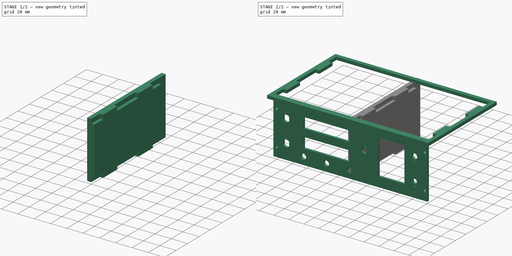
[diagram: build sequence overview — one tinted view per stage of 2, left to right]
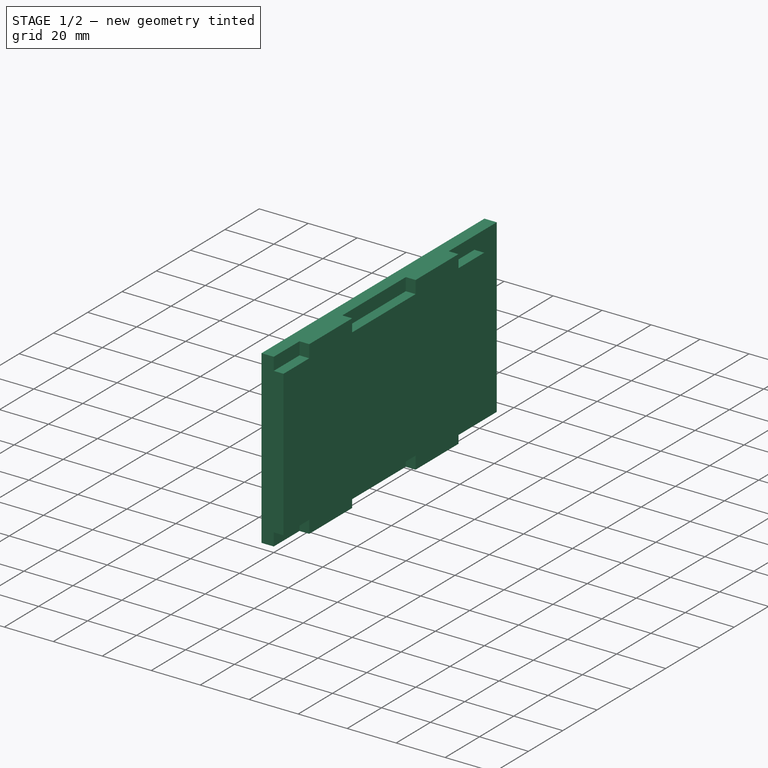
[diagram: stage 1 of 2 — iso view after this stage's code; geometry added in this stage tinted green]
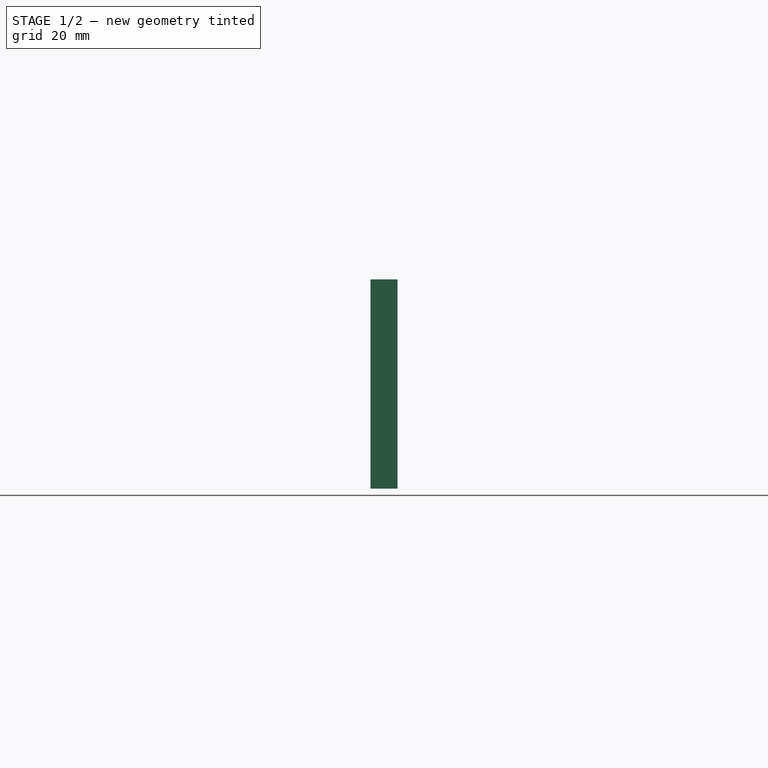
[diagram: stage 1 of 2 — front view after this stage's code; geometry added in this stage tinted green]
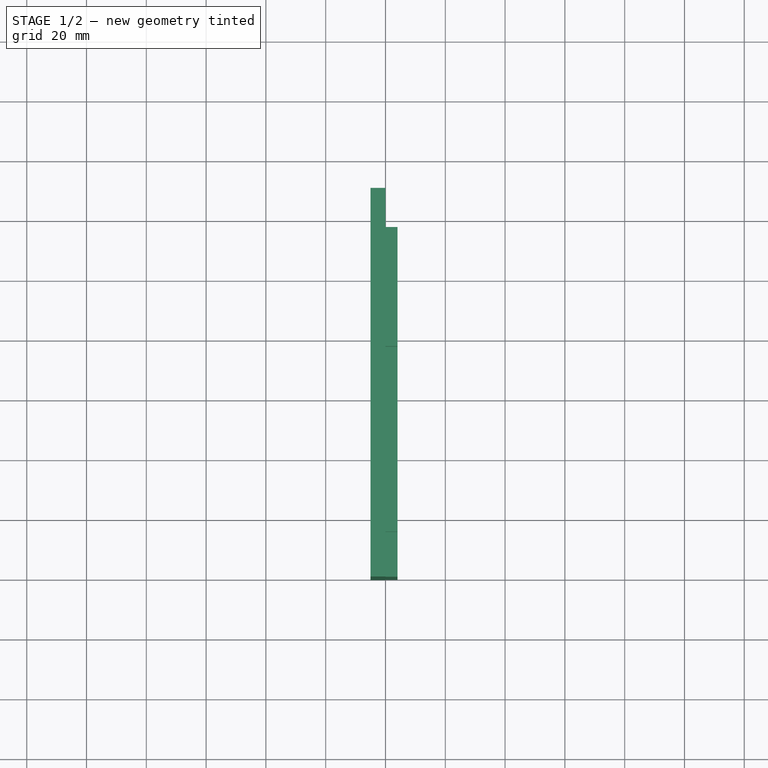
[diagram: stage 1 of 2 — top view after this stage's code; geometry added in this stage tinted green]
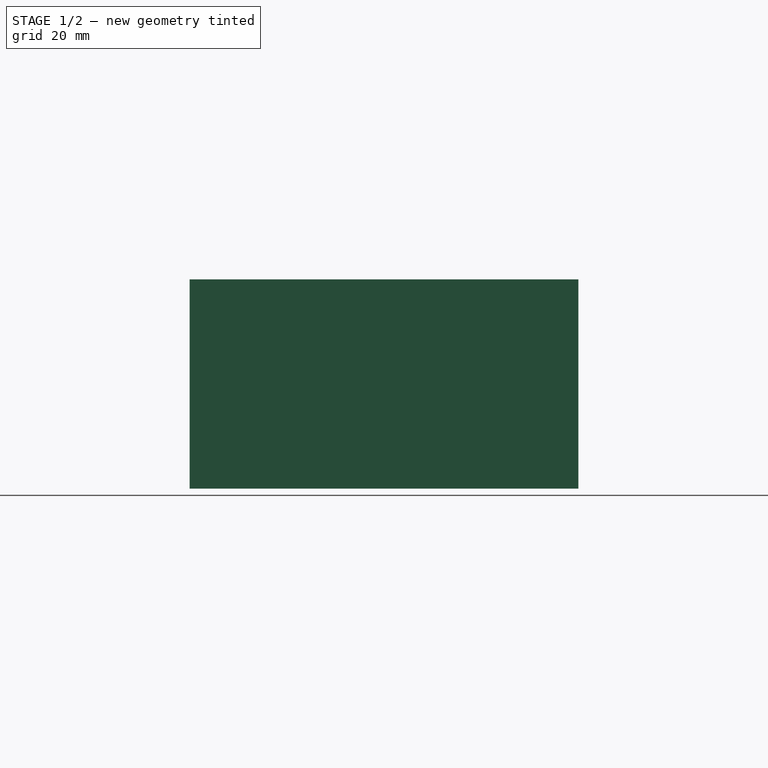
[diagram: stage 1 of 2 — right view after this stage's code; geometry added in this stage tinted green]
FCSTD DOCUMENT  (FreeCAD 0.18R4 (GitTag))
Label: GeneratoreDDS-r00
License: All rights reserved
LicenseURL: http://en.wikipedia.org/wiki/All_rights_reserved
objects: Sketcher::SketchObject×12, TechDraw::DrawSVGTemplate×9, TechDraw::DrawViewPart×9, TechDraw::DrawPage×9, PartDesign::Pad×4, PartDesign::Body×3, App::Part×3
note: 23 computed .brp shape members not serialized (recipe doc carries the construction recipe); baked Part::Feature solids carry a one-line shape summary decoded from their .brp

FEATURE [PartDesign::Body] Body001  label="Mantello001"
  Group = -> [Sketch009,Pad001]
  Origin = -> Origin004
  Tip = -> Pad001
FEATURE [App::Part] Part001  label="Mantello"
  Group = -> [Body001]
  Origin = -> Origin002
FEATURE [TechDraw::DrawSVGTemplate] Template006
  EditableTexts = Designed_by_Name=Designed by Name; Drawing_number=Drawing number; FC-Date=Date; FC-SC=Scale; FC-SH=Sheet; FC-Title=Title; Subtitle=Subtitle; Weight=Weight
  Height = 210
  Orientation = 1
  Width = 297
FEATURE [TechDraw::DrawViewPart] View006
  CoarseView = false
  Direction = (0,0,1)
  Focus = 100
  HardHidden = false
  IsoCount = 0
  IsoHidden = false
  IsoVisible = false
  LockPosition = false
  Perspective = false
  Rotation = 0
  ScaleType = 0
  SeamHidden = false
  SeamVisible = false
  SmoothHidden = false
  SmoothVisible = false
  Source = -> [Sketch009]
  X = 148.5
  Y = 105
FEATURE [TechDraw::DrawPage] Page006  label="Mantello002"
  KeepUpdated = true
  ProjectionType = 0
  Template = -> Template006
  Views = -> [View006]
FEATURE [Sketcher::SketchObject] Sketch010  label="SpallaInterna"
  MapMode = 5
  Placement = pos=(0,0,0) rot=(0.57735,0.57735,0.57735;2.0944rad)
  Support = -> [YZ_Plane005]
  expr: Constraints[68] = 130 - 5 * 2 - 3
  sketch-geometry (36):
    g0: LineSegment StartX=15 StartY=-0.255779 StartZ=0 EndX=40 EndY=-0.255779 EndZ=0
    g1: LineSegment StartX=117 StartY=-5.45578 StartZ=0 EndX=117 EndY=-65.0558 EndZ=0
    g2: LineSegment StartX=102 StartY=-70.2558 StartZ=0 EndX=77 EndY=-70.2558 EndZ=0
    g3: LineSegment StartX=-1e-16 StartY=-65.0558 StartZ=0 EndX=-1e-16 EndY=-5.45578 EndZ=0
    g4: LineSegment StartX=-1e-16 StartY=-65.0558 StartZ=0 EndX=15 EndY=-65.0558 EndZ=0
    g5: LineSegment StartX=15 StartY=-65.0558 StartZ=0 EndX=15 EndY=-70.2558 EndZ=0
    g6: LineSegment StartX=40 StartY=-70.2558 StartZ=0 EndX=40 EndY=-65.0558 EndZ=0
    g7: LineSegment StartX=40 StartY=-65.0558 StartZ=0 EndX=77 EndY=-65.0558 EndZ=0
    g8: LineSegment StartX=77 StartY=-65.0558 StartZ=0 EndX=77 EndY=-70.2558 EndZ=0
    g9: LineSegment StartX=102 StartY=-70.2558 StartZ=0 EndX=102 EndY=-65.0558 EndZ=0
    g10: LineSegment StartX=102 StartY=-65.0558 StartZ=0 EndX=117 EndY=-65.0558 EndZ=0
    g11: LineSegment StartX=-1e-16 StartY=-5.45578 StartZ=0 EndX=15 EndY=-5.45578 EndZ=0
    g12: LineSegment StartX=15 StartY=-5.45578 StartZ=0 EndX=15 EndY=-0.255779 EndZ=0
    g13: LineSegment StartX=40 StartY=-0.255779 StartZ=0 EndX=40 EndY=-5.45578 EndZ=0
    g14: LineSegment StartX=40 StartY=-5.45578 StartZ=0 EndX=77 EndY=-5.45578 EndZ=0
    g15: LineSegment StartX=77 StartY=-5.45578 StartZ=0 EndX=77 EndY=-0.255779 EndZ=0
    g16: LineSegment StartX=102 StartY=-0.255779 StartZ=0 EndX=102 EndY=-5.45578 EndZ=0
    g17: LineSegment StartX=102 StartY=-5.45578 StartZ=0 EndX=117 EndY=-5.45578 EndZ=0
    g18: LineSegment [constr] StartX=15 StartY=-5.45578 StartZ=0 EndX=15 EndY=-65.0558 EndZ=0
    g19: LineSegment [constr] StartX=15 StartY=-5.45578 StartZ=0 EndX=40 EndY=-5.45578 EndZ=0
    g20: LineSegment [constr] StartX=77 StartY=-5.45578 StartZ=0 EndX=102 EndY=-5.45578 EndZ=0
    g21: LineSegment [constr] StartX=77 StartY=-5.45578 StartZ=0 EndX=77 EndY=-65.0558 EndZ=0
    g22: LineSegment StartX=77 StartY=-0.255779 StartZ=0 EndX=102 EndY=-0.255779 EndZ=0
    g23: LineSegment StartX=40 StartY=-70.2558 StartZ=0 EndX=15 EndY=-70.2558 EndZ=0
    g24: LineSegment [constr] StartX=15 StartY=-65.0558 StartZ=0 EndX=40 EndY=-65.0558 EndZ=0
    g25: LineSegment [constr] StartX=77 StartY=-65.0558 StartZ=0 EndX=102 EndY=-65.0558 EndZ=0
    g26: LineSegment [constr] StartX=40 StartY=-70.2558 StartZ=0 EndX=77 EndY=-70.2558 EndZ=0
    g27: LineSegment [constr] StartX=15 StartY=-70.2558 StartZ=0 EndX=0 EndY=-70.2558 EndZ=0
    g28: LineSegment [constr] StartX=40 StartY=-0.255779 StartZ=0 EndX=77 EndY=-0.255779 EndZ=0
    g29: LineSegment [constr] StartX=0 StartY=-70.2558 StartZ=0 EndX=-1e-16 EndY=-65.0558 EndZ=0
    g30: LineSegment [constr] StartX=102 StartY=-70.2558 StartZ=0 EndX=117 EndY=-70.2558 EndZ=0
    g31: LineSegment [constr] StartX=117 StartY=-70.2558 StartZ=0 EndX=117 EndY=-65.0558 EndZ=0
    g32: LineSegment [constr] StartX=117 StartY=-5.45578 StartZ=0 EndX=117 EndY=-0.255779 EndZ=0
    g33: LineSegment [constr] StartX=117 StartY=-0.255779 StartZ=0 EndX=102 EndY=-0.255779 EndZ=0
    g34: LineSegment [constr] StartX=15 StartY=-0.255779 StartZ=0 EndX=0 EndY=-0.255779 EndZ=0
    g35: LineSegment [constr] StartX=0 StartY=-0.255779 StartZ=0 EndX=-1e-16 EndY=-5.45578 EndZ=0
  constraints (95):
    c: Horizontal(g0)
    c: Horizontal(g2)
    c: Vertical(g1)
    c: Vertical(g3)
    c: Horizontal(g4)
    c: Coincident(g4,g5)
    c: PointOnObject(g5,g2)
    c: Vertical(g5)
    c: Vertical(g6)
    c: Coincident(g6,g7)
    c: Horizontal(g7)
    c: Coincident(g7,g8)
    c: Vertical(g8)
    c: Vertical(g9)
    c: Coincident(g9,g10)
    c: Horizontal(g10)
    c: Horizontal(g11)
    c: Coincident(g11,g12)
    c: Vertical(g13)
    c: Coincident(g13,g14)
    c: Horizontal(g14)
    c: Coincident(g14,g15)
    c: Vertical(g15)
    c: PointOnObject(g16,g0)
    c: Vertical(g16)
    c: Coincident(g16,g17)
    c: Horizontal(g17)
    c: Coincident(g18,g11)
    c: Coincident(g18,g4)
    c: Coincident(g19,g11)
    c: Coincident(g19,g13)
    c: Horizontal(g19)
    c: Coincident(g20,g14)
    c: Coincident(g20,g16)
    c: Horizontal(g20)
    c: Equal(g20,g19)
    c: Vertical(g12)
    c: Vertical(g18)
    c: Coincident(g21,g14)
    c: Coincident(g21,g7)
    c: Vertical(g21)
    c: Coincident(g0,g12)
    c: Coincident(g3,g11)
    c: Coincident(g0,g13)
    c: Coincident(g22,g15)
    c: Tangent(g0,g22)
    c: PointOnObject(g22,g16)
    c: Coincident(g1,g17)
    c: Coincident(g2,g9)
    c: Coincident(g1,g10)
    c: Coincident(g2,g8)
    c: Coincident(g23,g6)
    c: Tangent(g2,g23)
    c: PointOnObject(g23,g5)
    c: Coincident(g3,g4)
    c: Equal(g12,g5)
    c: Coincident(g24,g6)
    c: Horizontal(g24)
    c: Coincident(g4,g24)
    c: Coincident(g25,g7)
    c: Coincident(g25,g9)
    c: Horizontal(g25)
    c: Coincident(g26,g6)
    c: Coincident(g26,g2)
    c: Coincident(g27,g5)
    c: Horizontal(g27)
    c: Coincident(g28,g0)
    c: Coincident(g28,g15)
    c: DistanceX(g3,g1) = 117
    c: DistanceY(g2,g16) = 70
    c: DistanceY(g1,g16) = 5.2
    c: DistanceX(g2,g1) = 15
    c: Equal(g10,g17)
    c: Equal(g17,g4)
    c: PointOnObject(g27,g-2)
    c: PointOnObject(g3,g-2)
    c: Equal(g24,g25)
    c: DistanceX(g2,g2) = 25
    c: Coincident(g29,g27)
    c: Coincident(g29,g3)
    c: Coincident(g30,g2)
    c: Horizontal(g30)
    c: Coincident(g31,g30)
    c: Coincident(g31,g1)
    c: Vertical(g31)
    c: Coincident(g32,g1)
    c: Vertical(g32)
    c: Coincident(g33,g32)
    c: Coincident(g33,g16)
    c: Horizontal(g33)
    c: Coincident(g34,g0)
    c: PointOnObject(g34,g-2)
    c: Horizontal(g34)
    c: Coincident(g35,g34)
    c: Coincident(g35,g3)
FEATURE [PartDesign::Pad] Pad002  label="Spalle002"
  Length = 4
  Length2 = 100
  Placement = pos=(0,0,0) rot=(0.57735,0.57735,0.57735;2.0944rad)
  Profile = -> Sketch010
  Type = 0
FEATURE [TechDraw::DrawSVGTemplate] Template007
  EditableTexts = Designed_by_Name=Designed by Name; Drawing_number=Drawing number; FC-Date=Date; FC-SC=Scale; FC-SH=Sheet; FC-Title=Title; Subtitle=Subtitle; Weight=Weight
  Height = 210
  Orientation = 1
  Width = 297
FEATURE [TechDraw::DrawViewPart] View007
  CoarseView = false
  Direction = (1,0,0)
  Focus = 100
  HardHidden = false
  IsoCount = 0
  IsoHidden = false
  IsoVisible = false
  LockPosition = false
  Perspective = false
  Rotation = 0
  ScaleType = 0
  SeamHidden = false
  SeamVisible = false
  SmoothHidden = false
  SmoothVisible = false
  Source = -> [Sketch010]
  X = 148.5
  Y = 105
FEATURE [TechDraw::DrawPage] Page007  label="SpallaInt"
  KeepUpdated = true
  ProjectionType = 0
  Template = -> Template007
  Views = -> [View007]
FEATURE [Sketcher::SketchObject] Sketch011  label="SpallaEsterna"
  MapMode = 5
  Placement = pos=(0,0,0) rot=(0.57735,0.57735,0.57735;2.0944rad)
  Support = -> [YZ_Plane005]
  expr: Constraints[68] = 130
  sketch-geometry (36):
    g0: LineSegment StartX=15 StartY=-0.255779 StartZ=0 EndX=40 EndY=-0.255779 EndZ=0
    g1: LineSegment StartX=130 StartY=-5.45578 StartZ=0 EndX=130 EndY=-65.0558 EndZ=0
    g2: LineSegment StartX=115 StartY=-70.2558 StartZ=0 EndX=90 EndY=-70.2558 EndZ=0
    g3: LineSegment StartX=0 StartY=-65.0558 StartZ=0 EndX=0 EndY=-5.45578 EndZ=0
    g4: LineSegment [constr] StartX=0 StartY=-65.0558 StartZ=0 EndX=15 EndY=-65.0558 EndZ=0
    g5: LineSegment [constr] StartX=15 StartY=-65.0558 StartZ=0 EndX=15 EndY=-70.2558 EndZ=0
    g6: LineSegment [constr] StartX=40 StartY=-70.2558 StartZ=0 EndX=40 EndY=-65.0558 EndZ=0
    g7: LineSegment [constr] StartX=40 StartY=-65.0558 StartZ=0 EndX=90 EndY=-65.0558 EndZ=0
    g8: LineSegment [constr] StartX=90 StartY=-65.0558 StartZ=0 EndX=90 EndY=-70.2558 EndZ=0
    g9: LineSegment [constr] StartX=115 StartY=-70.2558 StartZ=0 EndX=115 EndY=-65.0558 EndZ=0
    g10: LineSegment [constr] StartX=115 StartY=-65.0558 StartZ=0 EndX=130 EndY=-65.0558 EndZ=0
    g11: LineSegment [constr] StartX=0 StartY=-5.45578 StartZ=0 EndX=15 EndY=-5.45578 EndZ=0
    g12: LineSegment [constr] StartX=15 StartY=-5.45578 StartZ=0 EndX=15 EndY=-0.255779 EndZ=0
    g13: LineSegment [constr] StartX=40 StartY=-0.255779 StartZ=0 EndX=40 EndY=-5.45578 EndZ=0
    g14: LineSegment [constr] StartX=40 StartY=-5.45578 StartZ=0 EndX=90 EndY=-5.45578 EndZ=0
    g15: LineSegment [constr] StartX=90 StartY=-5.45578 StartZ=0 EndX=90 EndY=-0.255779 EndZ=0
    g16: LineSegment [constr] StartX=115 StartY=-0.255779 StartZ=0 EndX=115 EndY=-5.45578 EndZ=0
    g17: LineSegment [constr] StartX=115 StartY=-5.45578 StartZ=0 EndX=130 EndY=-5.45578 EndZ=0
    g18: LineSegment [constr] StartX=15 StartY=-5.45578 StartZ=0 EndX=15 EndY=-65.0558 EndZ=0
    g19: LineSegment [constr] StartX=15 StartY=-5.45578 StartZ=0 EndX=40 EndY=-5.45578 EndZ=0
    g20: LineSegment [constr] StartX=90 StartY=-5.45578 StartZ=0 EndX=115 EndY=-5.45578 EndZ=0
    g21: LineSegment [constr] StartX=90 StartY=-5.45578 StartZ=0 EndX=90 EndY=-65.0558 EndZ=0
    g22: LineSegment StartX=90 StartY=-0.255779 StartZ=0 EndX=115 EndY=-0.255779 EndZ=0
    g23: LineSegment StartX=40 StartY=-70.2558 StartZ=0 EndX=15 EndY=-70.2558 EndZ=0
    g24: LineSegment [constr] StartX=15 StartY=-65.0558 StartZ=0 EndX=40 EndY=-65.0558 EndZ=0
    g25: LineSegment [constr] StartX=90 StartY=-65.0558 StartZ=0 EndX=115 EndY=-65.0558 EndZ=0
    g26: LineSegment StartX=40 StartY=-70.2558 StartZ=0 EndX=90 EndY=-70.2558 EndZ=0
    g27: LineSegment StartX=15 StartY=-70.2558 StartZ=0 EndX=0 EndY=-70.2558 EndZ=0
    g28: LineSegment StartX=40 StartY=-0.255779 StartZ=0 EndX=90 EndY=-0.255779 EndZ=0
    g29: LineSegment StartX=0 StartY=-70.2558 StartZ=0 EndX=0 EndY=-65.0558 EndZ=0
    g30: LineSegment StartX=115 StartY=-70.2558 StartZ=0 EndX=130 EndY=-70.2558 EndZ=0
    g31: LineSegment StartX=130 StartY=-70.2558 StartZ=0 EndX=130 EndY=-65.0558 EndZ=0
    g32: LineSegment StartX=130 StartY=-5.45578 StartZ=0 EndX=130 EndY=-0.255779 EndZ=0
    g33: LineSegment StartX=130 StartY=-0.255779 StartZ=0 EndX=115 EndY=-0.255779 EndZ=0
    g34: LineSegment StartX=15 StartY=-0.255779 StartZ=0 EndX=0 EndY=-0.255779 EndZ=0
    g35: LineSegment StartX=0 StartY=-0.255779 StartZ=0 EndX=0 EndY=-5.45578 EndZ=0
  constraints (95):
    c: Horizontal(g0)
    c: Horizontal(g2)
    c: Vertical(g1)
    c: Vertical(g3)
    c: Horizontal(g4)
    c: Coincident(g4,g5)
    c: PointOnObject(g5,g2)
    c: Vertical(g5)
    c: Vertical(g6)
    c: Coincident(g6,g7)
    c: Horizontal(g7)
    c: Coincident(g7,g8)
    c: Vertical(g8)
    c: Vertical(g9)
    c: Coincident(g9,g10)
    c: Horizontal(g10)
    c: Horizontal(g11)
    c: Coincident(g11,g12)
    c: Vertical(g13)
    c: Coincident(g13,g14)
    c: Horizontal(g14)
    c: Coincident(g14,g15)
    c: Vertical(g15)
    c: PointOnObject(g16,g0)
    c: Vertical(g16)
    c: Coincident(g16,g17)
    c: Horizontal(g17)
    c: Coincident(g18,g11)
    c: Coincident(g18,g4)
    c: Coincident(g19,g11)
    c: Coincident(g19,g13)
    c: Horizontal(g19)
    c: Coincident(g20,g14)
    c: Coincident(g20,g16)
    c: Horizontal(g20)
    c: Equal(g20,g19)
    c: Vertical(g12)
    c: Vertical(g18)
    c: Coincident(g21,g14)
    c: Coincident(g21,g7)
    c: Vertical(g21)
    c: Coincident(g0,g12)
    c: Coincident(g3,g11)
    c: Coincident(g0,g13)
    c: Coincident(g22,g15)
    c: Tangent(g0,g22)
    c: PointOnObject(g22,g16)
    c: Coincident(g1,g17)
    c: Coincident(g2,g9)
    c: Coincident(g1,g10)
    c: Coincident(g2,g8)
    c: Coincident(g23,g6)
    c: Tangent(g2,g23)
    c: PointOnObject(g23,g5)
    c: Coincident(g3,g4)
    c: Equal(g12,g5)
    c: Coincident(g24,g6)
    c: Horizontal(g24)
    c: Coincident(g4,g24)
    c: Coincident(g25,g7)
    c: Coincident(g25,g9)
    c: Horizontal(g25)
    c: Coincident(g26,g6)
    c: Coincident(g26,g2)
    c: Coincident(g27,g5)
    c: Horizontal(g27)
    c: Coincident(g28,g0)
    c: Coincident(g28,g15)
    c: DistanceX(g3,g1) = 130
    c: DistanceY(g2,g16) = 70
    c: DistanceY(g1,g16) = 5.2
    c: DistanceX(g2,g1) = 15
    c: Equal(g10,g17)
    c: Equal(g17,g4)
    c: PointOnObject(g27,g-2)
    c: PointOnObject(g3,g-2)
    c: Equal(g24,g25)
    c: DistanceX(g2,g2) = 25
    c: Coincident(g29,g27)
    c: Coincident(g29,g3)
    c: Coincident(g30,g2)
    c: Horizontal(g30)
    c: Coincident(g31,g30)
    c: Coincident(g31,g1)
    c: Vertical(g31)
    c: Coincident(g32,g1)
    c: Vertical(g32)
    c: Coincident(g33,g32)
    c: Coincident(g33,g16)
    c: Horizontal(g33)
    c: Coincident(g34,g0)
    c: PointOnObject(g34,g-2)
    c: Horizontal(g34)
    c: Coincident(g35,g34)
    c: Coincident(g35,g3)
FEATURE [PartDesign::Pad] Pad003  label="Spalle003"
  BaseFeature = -> Pad002
  Length = 5
  Length2 = 100
  Placement = pos=(0,0,0) rot=(0.57735,0.57735,0.57735;2.0944rad)
  Profile = -> Sketch011
  Reversed = true
  Type = 0
FEATURE [PartDesign::Body] Body002  label="Spalle001"
  Group = -> [Sketch010,Pad002,Sketch011,Pad003]
  Origin = -> Origin005
  Tip = -> Pad003
FEATURE [App::Part] Part002  label="Spalle"
  Group = -> [Body002]
  Origin = -> Origin003
FEATURE [TechDraw::DrawSVGTemplate] Template008
  EditableTexts = Designed_by_Name=Designed by Name; Drawing_number=Drawing number; FC-Date=Date; FC-SC=Scale; FC-SH=Sheet; FC-Title=Title; Subtitle=Subtitle; Weight=Weight
  Height = 210
  Orientation = 1
  Width = 297
FEATURE [TechDraw::DrawViewPart] View008
  CoarseView = false
  Direction = (1,0,0)
  Focus = 100
  HardHidden = false
  IsoCount = 0
  IsoHidden = false
  IsoVisible = false
  LockPosition = false
  Perspective = false
  Rotation = 0
  ScaleType = 0
  SeamHidden = false
  SeamVisible = false
  SmoothHidden = false
  SmoothVisible = false
  Source = -> [Sketch011]
  X = 148.5
  Y = 105
FEATURE [TechDraw::DrawPage] Page008  label="SpallaEs"
  KeepUpdated = true
  ProjectionType = 0
  Template = -> Template008
  Views = -> [View008]
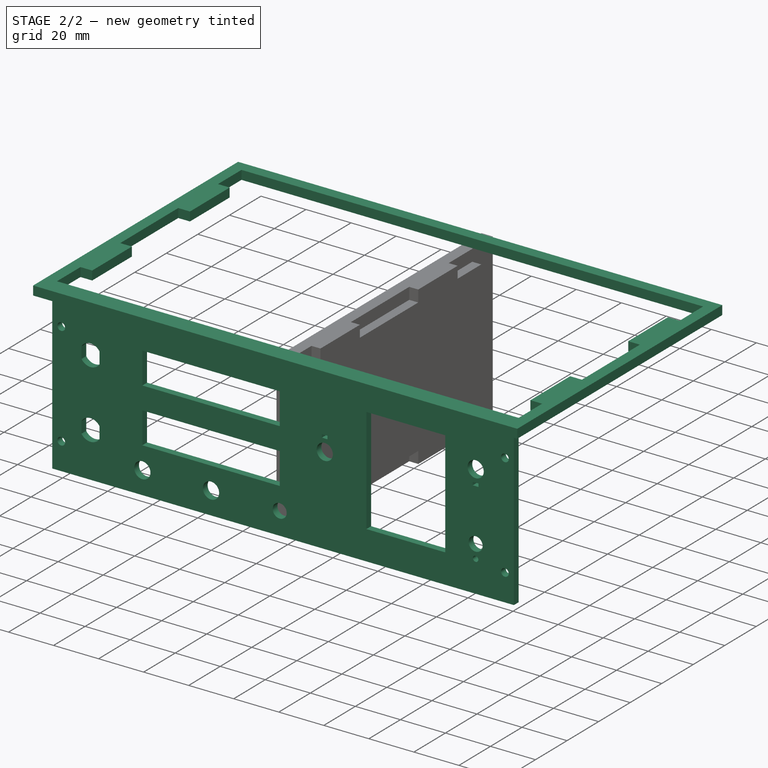
[diagram: stage 2 of 2 — iso view after this stage's code; geometry added in this stage tinted green]
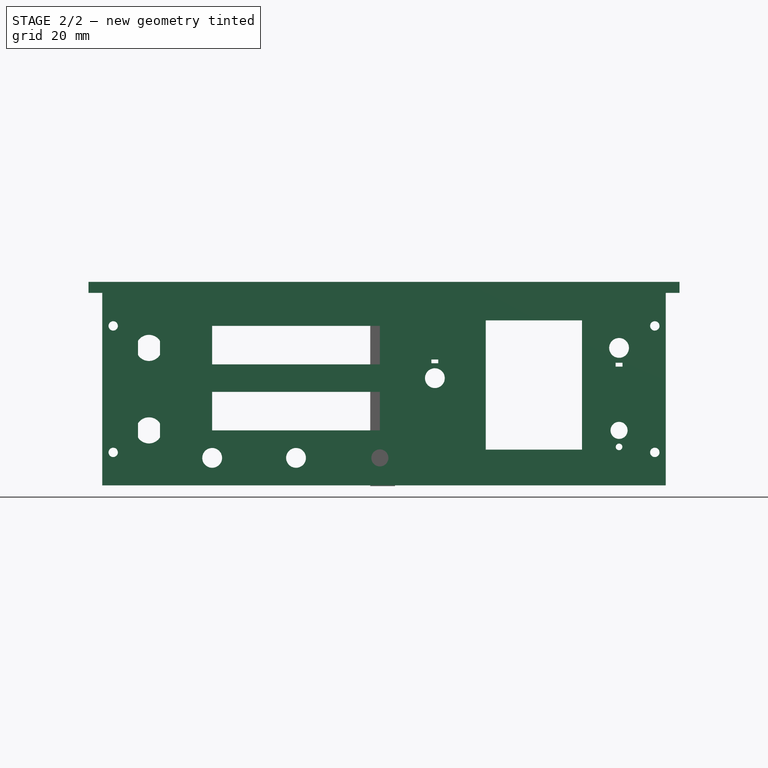
[diagram: stage 2 of 2 — front view after this stage's code; geometry added in this stage tinted green]
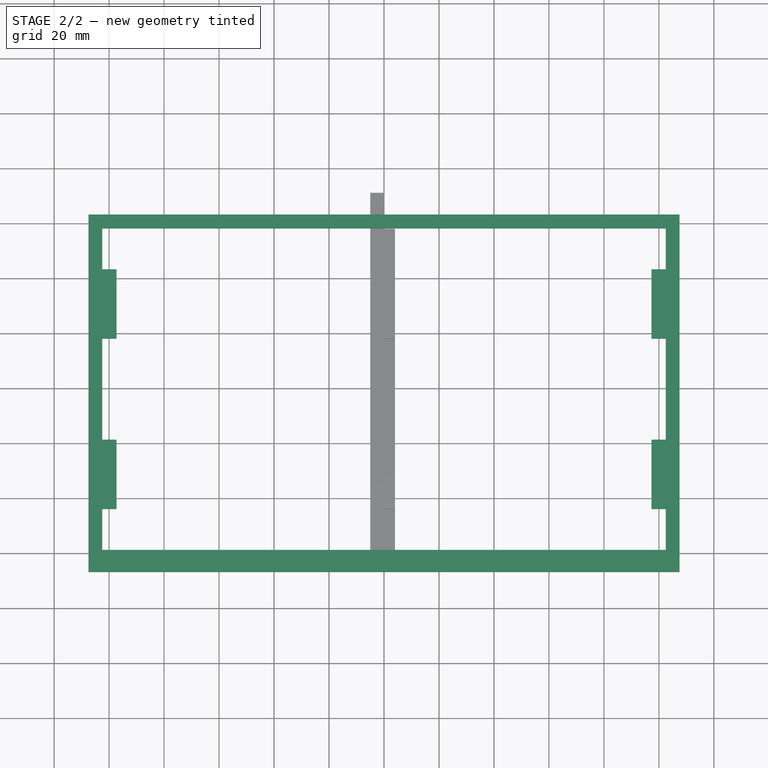
[diagram: stage 2 of 2 — top view after this stage's code; geometry added in this stage tinted green]
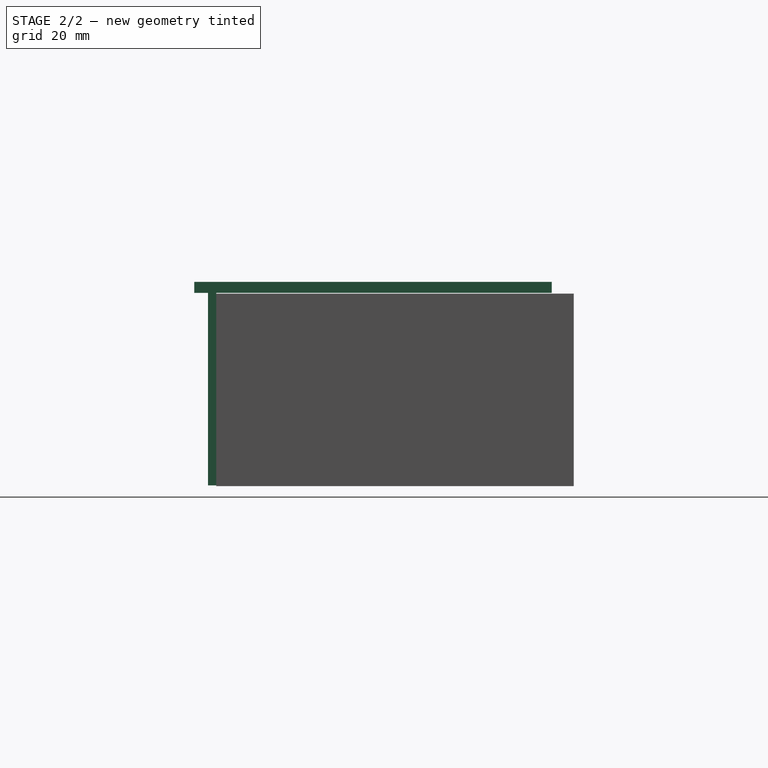
[diagram: stage 2 of 2 — right view after this stage's code; geometry added in this stage tinted green]
FEATURE [Sketcher::SketchObject] Sketch  label="PannelloFrontaleS"
  AttachmentOffset = pos=(-29,-99,0) rot=(0,0,1;0rad)
  MapMode = 5
  Placement = pos=(-29,2.2e-14,-99) rot=(1,0,0;1.5708rad)
  Support = -> [XZ_Plane001]
  expr: Constraints[251] = Constraints.ZeroSette
  expr: Constraints[54] = Constraints.Tre
  sketch-geometry (122):
    g0: LineSegment [constr] StartX=-41.4256 StartY=17.4487 StartZ=0 EndX=41.0744 EndY=17.4487 EndZ=0
    g1: LineSegment [constr] StartX=41.0744 StartY=17.4487 StartZ=0 EndX=41.0744 EndY=2.4487 EndZ=0
    g2: LineSegment [constr] StartX=41.0744 StartY=2.4487 StartZ=0 EndX=-41.4256 EndY=2.4487 EndZ=0
    g3: LineSegment [constr] StartX=-41.4256 StartY=2.4487 StartZ=0 EndX=-41.4256 EndY=17.4487 EndZ=0
    g4: LineSegment StartX=-28.9256 StartY=16.9487 StartZ=0 EndX=32.0744 EndY=16.9487 EndZ=0
    g5: LineSegment StartX=32.0744 StartY=16.9487 StartZ=0 EndX=32.0744 EndY=2.9487 EndZ=0
    g6: LineSegment StartX=32.0744 StartY=2.9487 StartZ=0 EndX=-28.9256 EndY=2.9487 EndZ=0
    g7: LineSegment StartX=-28.9256 StartY=2.9487 StartZ=0 EndX=-28.9256 EndY=16.9487 EndZ=0
    g8: LineSegment [constr] StartX=20.037 StartY=16.9487 StartZ=0 EndX=20.037 EndY=17.4487 EndZ=0
    g9: LineSegment [constr] StartX=19.1135 StartY=2.9487 StartZ=0 EndX=19.1135 EndY=2.4487 EndZ=0
    g10: LineSegment [constr] StartX=32.0744 StartY=9.9487 StartZ=0 EndX=41.0744 EndY=9.9487 EndZ=0
    g11: LineSegment [constr] StartX=38.0744 StartY=9.9487 StartZ=0 EndX=38.0744 EndY=5.4487 EndZ=0
    g12: LineSegment [constr] StartX=38.0744 StartY=5.4487 StartZ=0 EndX=38.0744 EndY=2.4487 EndZ=0
    g13: LineSegment [constr] StartX=38.0744 StartY=9.9487 StartZ=0 EndX=38.0744 EndY=14.4487 EndZ=0
    g14: LineSegment [constr] StartX=38.0744 StartY=14.4487 StartZ=0 EndX=38.0744 EndY=17.4487 EndZ=0
    g15: Circle [constr] CenterX=38.0744 CenterY=14.4487 CenterZ=0 NormalX=0 NormalY=0 NormalZ=1 AngleXU=0 Radius=2
    g16: Circle [constr] CenterX=38.0744 CenterY=5.4487 CenterZ=0 NormalX=0 NormalY=0 NormalZ=1 AngleXU=0 Radius=2
    g17: LineSegment [constr] StartX=38.0744 StartY=5.4487 StartZ=0 EndX=-38.4256 EndY=5.4487 EndZ=0
    g18: LineSegment [constr] StartX=38.0744 StartY=14.4487 StartZ=0 EndX=-38.4256 EndY=14.4487 EndZ=0
    g19: LineSegment [constr] StartX=-38.4256 StartY=14.4487 StartZ=0 EndX=-38.4256 EndY=5.4487 EndZ=0
    g20: Circle [constr] CenterX=-38.4256 CenterY=14.4487 CenterZ=0 NormalX=0 NormalY=0 NormalZ=1 AngleXU=0 Radius=2
    g21: Circle [constr] CenterX=-38.4256 CenterY=5.4487 CenterZ=0 NormalX=0 NormalY=0 NormalZ=1 AngleXU=0 Radius=2
    g22: LineSegment [constr] StartX=-41.4256 StartY=-6.5513 StartZ=0 EndX=41.0744 EndY=-6.5513 EndZ=0
    g23: LineSegment [constr] StartX=41.0744 StartY=-6.5513 StartZ=0 EndX=41.0744 EndY=-21.5513 EndZ=0
    g24: LineSegment [constr] StartX=41.0744 StartY=-21.5513 StartZ=0 EndX=-41.4256 EndY=-21.5513 EndZ=0
    g25: LineSegment [constr] StartX=-41.4256 StartY=-21.5513 StartZ=0 EndX=-41.4256 EndY=-6.5513 EndZ=0
    g26: LineSegment StartX=-28.9256 StartY=-7.0513 StartZ=0 EndX=32.0744 EndY=-7.0513 EndZ=0
    g27: LineSegment StartX=32.0744 StartY=-7.0513 StartZ=0 EndX=32.0744 EndY=-21.0513 EndZ=0
    g28: LineSegment StartX=32.0744 StartY=-21.0513 StartZ=0 EndX=-28.9256 EndY=-21.0513 EndZ=0
    g29: LineSegment StartX=-28.9256 StartY=-21.0513 StartZ=0 EndX=-28.9256 EndY=-7.0513 EndZ=0
    g30: LineSegment [constr] StartX=20.0948 StartY=-7.0513 StartZ=0 EndX=20.0948 EndY=-6.5513 EndZ=0
    g31: LineSegment [constr] StartX=19.1713 StartY=-21.0513 StartZ=0 EndX=19.1713 EndY=-21.5513 EndZ=0
    g32: LineSegment [constr] StartX=32.0744 StartY=-14.0513 StartZ=0 EndX=41.0744 EndY=-14.0513 EndZ=0
    g33: LineSegment [constr] StartX=38.0744 StartY=-14.0513 StartZ=0 EndX=38.0744 EndY=-18.5513 EndZ=0
    g34: LineSegment [constr] StartX=38.0744 StartY=-18.5513 StartZ=0 EndX=38.0744 EndY=-21.5513 EndZ=0
    g35: LineSegment [constr] StartX=38.0744 StartY=-14.0513 StartZ=0 EndX=38.0744 EndY=-9.5513 EndZ=0
    g36: LineSegment [constr] StartX=38.0744 StartY=-9.5513 StartZ=0 EndX=38.0744 EndY=-6.5513 EndZ=0
    g37: Circle [constr] CenterX=38.0744 CenterY=-9.5513 CenterZ=0 NormalX=0 NormalY=0 NormalZ=1 AngleXU=0 Radius=2
    g38: Circle [constr] CenterX=38.0744 CenterY=-18.5513 CenterZ=0 NormalX=0 NormalY=0 NormalZ=1 AngleXU=0 Radius=2
    g39: LineSegment [constr] StartX=38.0744 StartY=-18.5513 StartZ=0 EndX=-38.4256 EndY=-18.5513 EndZ=0
    g40: LineSegment [constr] StartX=38.0744 StartY=-9.5513 StartZ=0 EndX=-38.4256 EndY=-9.5513 EndZ=0
    g41: LineSegment [constr] StartX=-38.4256 StartY=-9.5513 StartZ=0 EndX=-38.4256 EndY=-18.5513 EndZ=0
    g42: Circle [constr] CenterX=-38.4256 CenterY=-9.5513 CenterZ=0 NormalX=0 NormalY=0 NormalZ=1 AngleXU=0 Radius=2
    g43: Circle [constr] CenterX=-38.4256 CenterY=-18.5513 CenterZ=0 NormalX=0 NormalY=0 NormalZ=1 AngleXU=0 Radius=2
    g44: LineSegment [constr] StartX=101.074 StartY=-13.5513 StartZ=0 EndX=113.074 EndY=-13.5513 EndZ=0
    g45: LineSegment [constr] StartX=113.074 StartY=-13.5513 StartZ=0 EndX=113.074 EndY=-28.5513 EndZ=0
    g46: LineSegment [constr] StartX=113.074 StartY=-28.5513 StartZ=0 EndX=101.074 EndY=-28.5513 EndZ=0
    g47: LineSegment [constr] StartX=101.074 StartY=-28.5513 StartZ=0 EndX=101.074 EndY=-13.5513 EndZ=0
    g48: LineSegment [constr] StartX=101.074 StartY=-13.5513 StartZ=0 EndX=107.074 EndY=-21.0513 EndZ=0
    g49: LineSegment [constr] StartX=107.074 StartY=-21.0513 StartZ=0 EndX=101.074 EndY=-28.5513 EndZ=0
    g50: LineSegment [constr] StartX=107.074 StartY=-21.0513 StartZ=0 EndX=113.074 EndY=-28.5513 EndZ=0
    g51: Circle CenterX=107.074 CenterY=-21.0513 CenterZ=0 NormalX=0 NormalY=0 NormalZ=1 AngleXU=0 Radius=3.6
    g52: LineSegment [constr] StartX=101.074 StartY=-27.8513 StartZ=0 EndX=105.824 EndY=-27.8513 EndZ=0
    g53: LineSegment StartX=105.824 StartY=-27.8513 StartZ=0 EndX=108.324 EndY=-27.8513 EndZ=0
    g54: LineSegment [constr] StartX=108.324 StartY=-27.8513 StartZ=0 EndX=113.074 EndY=-27.8513 EndZ=0
    g55: LineSegment StartX=105.824 StartY=-27.8513 StartZ=0 EndX=105.824 EndY=-26.4513 EndZ=0
    g56: LineSegment StartX=105.824 StartY=-26.4513 StartZ=0 EndX=108.324 EndY=-26.4513 EndZ=0
    g57: LineSegment StartX=108.324 StartY=-26.4513 StartZ=0 EndX=108.324 EndY=-27.8513 EndZ=0
    g58: LineSegment [constr] StartX=42.5744 StartY=19.4487 StartZ=0 EndX=89.5744 EndY=19.4487 EndZ=0
    g59: LineSegment [constr] StartX=89.5744 StartY=19.4487 StartZ=0 EndX=89.5744 EndY=-31.0513 EndZ=0
    g60: LineSegment [constr] StartX=89.5744 StartY=-31.0513 StartZ=0 EndX=42.5744 EndY=-31.0513 EndZ=0
    g61: LineSegment [constr] StartX=42.5744 StartY=-31.0513 StartZ=0 EndX=42.5744 EndY=19.4487 EndZ=0
    g62: LineSegment StartX=48.5744 StartY=18.9487 StartZ=0 EndX=83.5744 EndY=18.9487 EndZ=0
    g63: LineSegment StartX=83.5744 StartY=18.9487 StartZ=0 EndX=83.5744 EndY=-28.0513 EndZ=0
    g64: LineSegment StartX=83.5744 StartY=-28.0513 StartZ=0 EndX=48.5744 EndY=-28.0513 EndZ=0
    g65: LineSegment StartX=48.5744 StartY=-28.0513 StartZ=0 EndX=48.5744 EndY=18.9487 EndZ=0
    g66: LineSegment [constr] StartX=83.5744 StartY=-28.0513 StartZ=0 EndX=89.5744 EndY=-28.0513 EndZ=0
    g67: LineSegment [constr] StartX=48.5744 StartY=-28.0513 StartZ=0 EndX=42.5744 EndY=-28.0513 EndZ=0
    g68: LineSegment [constr] StartX=48.5744 StartY=-28.0513 StartZ=0 EndX=48.5744 EndY=-31.0513 EndZ=0
    g69: LineSegment [constr] StartX=50.0744 StartY=16.9487 StartZ=0 EndX=82.0744 EndY=16.9487 EndZ=0
    g70: LineSegment [constr] StartX=82.0744 StartY=16.9487 StartZ=0 EndX=82.0744 EndY=-21.0513 EndZ=0
    g71: LineSegment [constr] StartX=82.0744 StartY=-21.0513 StartZ=0 EndX=50.0744 EndY=-21.0513 EndZ=0
    g72: LineSegment [constr] StartX=50.0744 StartY=-21.0513 StartZ=0 EndX=50.0744 EndY=16.9487 EndZ=0
    g73: LineSegment [constr] StartX=50.0744 StartY=-21.0513 StartZ=0 EndX=48.5744 EndY=-21.0513 EndZ=0
    g74: LineSegment [constr] StartX=82.0744 StartY=-21.0513 StartZ=0 EndX=83.5744 EndY=-21.0513 EndZ=0
    g75: LineSegment [constr] StartX=82.0744 StartY=-21.0513 StartZ=0 EndX=82.0744 EndY=-28.0513 EndZ=0
    g76: LineSegment [constr] StartX=32.0744 StartY=16.9487 StartZ=0 EndX=50.0744 EndY=16.9487 EndZ=0
    g77: LineSegment [constr] StartX=32.0744 StartY=-21.0513 StartZ=0 EndX=48.5744 EndY=-21.0513 EndZ=0
    g78: LineSegment [constr] StartX=41.0744 StartY=2.4487 StartZ=0 EndX=41.0744 EndY=-6.5513 EndZ=0
    g79: LineSegment [constr] StartX=101.074 StartY=9.4487 StartZ=0 EndX=113.074 EndY=9.4487 EndZ=0
    g80: LineSegment [constr] StartX=113.074 StartY=9.4487 StartZ=0 EndX=113.074 EndY=24.4487 EndZ=0
    g81: LineSegment [constr] StartX=113.074 StartY=24.4487 StartZ=0 EndX=101.074 EndY=24.4487 EndZ=0
    g82: LineSegment [constr] StartX=101.074 StartY=24.4487 StartZ=0 EndX=101.074 EndY=9.4487 EndZ=0
    g83: LineSegment [constr] StartX=101.074 StartY=9.4487 StartZ=0 EndX=107.074 EndY=16.9487 EndZ=0
    g84: LineSegment [constr] StartX=107.074 StartY=16.9487 StartZ=0 EndX=101.074 EndY=24.4487 EndZ=0
    g85: LineSegment [constr] StartX=107.074 StartY=16.9487 StartZ=0 EndX=113.074 EndY=24.4487 EndZ=0
    g86: Circle CenterX=107.074 CenterY=16.9487 CenterZ=0 NormalX=0 NormalY=0 NormalZ=1 AngleXU=0 Radius=3.6
    g87: LineSegment [constr] StartX=101.074 StartY=23.7487 StartZ=0 EndX=105.824 EndY=23.7487 EndZ=0
    g88: LineSegment StartX=105.824 StartY=23.7487 StartZ=0 EndX=108.324 EndY=23.7487 EndZ=0
    g89: LineSegment [constr] StartX=108.324 StartY=23.7487 StartZ=0 EndX=113.074 EndY=23.7487 EndZ=0
    g90: LineSegment StartX=105.824 StartY=23.7487 StartZ=0 EndX=105.824 EndY=22.3487 EndZ=0
    g91: LineSegment StartX=105.824 StartY=22.3487 StartZ=0 EndX=108.324 EndY=22.3487 EndZ=0
    g92: LineSegment StartX=108.324 StartY=22.3487 StartZ=0 EndX=108.324 EndY=23.7487 EndZ=0
    g93: LineSegment [constr] StartX=107.074 StartY=16.9487 StartZ=0 EndX=107.074 EndY=-21.0513 EndZ=0
    g94: LineSegment [constr] StartX=82.0744 StartY=16.9487 StartZ=0 EndX=107.074 EndY=16.9487 EndZ=0
    g95: LineSegment [constr] StartX=83.5744 StartY=-21.0513 StartZ=0 EndX=107.074 EndY=-21.0513 EndZ=0
    g96: LineSegment StartX=-65.9256 StartY=32.9487 StartZ=0 EndX=144.074 EndY=32.9487 EndZ=0
    g97: LineSegment StartX=144.074 StartY=32.9487 StartZ=0 EndX=144.074 EndY=-37.0513 EndZ=0
    g98: LineSegment StartX=144.074 StartY=-37.0513 StartZ=0 EndX=-65.9256 EndY=-37.0513 EndZ=0
    g99: LineSegment StartX=-65.9256 StartY=-37.0513 StartZ=0 EndX=-65.9256 EndY=32.9487 EndZ=0
    g100: LineSegment [constr] StartX=107.074 StartY=16.9487 StartZ=0 EndX=107.074 EndY=32.9487 EndZ=0
    g101: LineSegment [constr] StartX=107.074 StartY=-21.0513 StartZ=0 EndX=107.074 EndY=-37.0513 EndZ=0
    g102: Circle CenterX=-53.9256 CenterY=16.9487 CenterZ=0 NormalX=0 NormalY=0 NormalZ=1 AngleXU=0 Radius=6.25
    g103: Circle CenterX=-53.9256 CenterY=-21.0513 CenterZ=0 NormalX=0 NormalY=0 NormalZ=1 AngleXU=0 Radius=6.25
    g104: LineSegment [constr] StartX=-53.9256 StartY=16.9487 StartZ=0 EndX=-65.9256 EndY=16.9487 EndZ=0
    g105: LineSegment [constr] StartX=-28.9256 StartY=16.9487 StartZ=0 EndX=-53.9256 EndY=16.9487 EndZ=0
    g106: LineSegment [constr] StartX=-53.9256 StartY=-21.0513 StartZ=0 EndX=-28.9256 EndY=-21.0513 EndZ=0
    g107: Circle CenterX=132.074 CenterY=16.9487 CenterZ=0 NormalX=0 NormalY=0 NormalZ=1 AngleXU=0 Radius=3.1
    g108: Circle CenterX=132.074 CenterY=-21.0513 CenterZ=0 NormalX=0 NormalY=0 NormalZ=1 AngleXU=0 Radius=3.1
    g109: LineSegment [constr] StartX=132.074 StartY=16.9487 StartZ=0 EndX=132.074 EndY=-21.0513 EndZ=0
    g110: LineSegment [constr] StartX=132.074 StartY=-21.0513 StartZ=0 EndX=107.074 EndY=-21.0513 EndZ=0
    g111: LineSegment [constr] StartX=107.074 StartY=16.9487 StartZ=0 EndX=132.074 EndY=16.9487 EndZ=0
    g112: LineSegment [constr] StartX=132.074 StartY=16.9487 StartZ=0 EndX=144.074 EndY=16.9487 EndZ=0
    g113: LineSegment [constr] StartX=125.574 StartY=-9.0513 StartZ=0 EndX=138.574 EndY=-9.0513 EndZ=0
    g114: LineSegment [constr] StartX=138.574 StartY=-9.0513 StartZ=0 EndX=138.574 EndY=-33.0513 EndZ=0
    g115: LineSegment [constr] StartX=138.574 StartY=-33.0513 StartZ=0 EndX=125.574 EndY=-33.0513 EndZ=0
    g116: LineSegment [constr] StartX=125.574 StartY=-33.0513 StartZ=0 EndX=125.574 EndY=-9.0513 EndZ=0
    g117: Circle CenterX=132.074 CenterY=-27.0513 CenterZ=0 NormalX=0 NormalY=0 NormalZ=1 AngleXU=0 Radius=1.2
    g118: LineSegment [constr] StartX=132.074 StartY=-21.0513 StartZ=0 EndX=132.074 EndY=-27.0513 EndZ=0
    g119: LineSegment [constr] StartX=125.574 StartY=-9.0513 StartZ=0 EndX=132.074 EndY=-21.0513 EndZ=0
    g120: LineSegment [constr] StartX=132.074 StartY=-21.0513 StartZ=0 EndX=125.574 EndY=-33.0513 EndZ=0
    g121: LineSegment [constr] StartX=132.074 StartY=-21.0513 StartZ=0 EndX=138.574 EndY=-33.0513 EndZ=0
  constraints (337):
    c: Coincident(g0,g1)
    c: Coincident(g1,g2)
    c: Coincident(g2,g3)
    c: Coincident(g3,g0)
    c: Horizontal(g0)
    c: Horizontal(g2)
    c: Vertical(g1)
    c: Vertical(g3)
    c: DistanceX(g0,g0) = 82.5
    c: DistanceY(g1,g0) = 15
    c: Coincident(g4,g5)
    c: Coincident(g5,g6)
    c: Coincident(g6,g7)
    c: Coincident(g7,g4)
    c: Horizontal(g4)
    c: Horizontal(g6)
    c: Vertical(g5)
    c: Vertical(g7)
    c: DistanceY(g6,g4) = 14
    c: DistanceX(g4,g4) = 61
    c: PointOnObject(g8,g4)
    c: PointOnObject(g8,g0)
    c: PointOnObject(g9,g6)
    c: PointOnObject(g9,g2)
    c: Vertical(g9)
    c: Vertical(g8)
    c: Equal(g8,g9)
    c: PointOnObject(g10,g5)
    c: PointOnObject(g10,g1)
    c: DistanceX(g10,g10) = 9
    c: PointOnObject(g11,g10)
    c: Vertical(g11)
    c: Coincident(g12,g11)
    c: PointOnObject(g12,g2)
    c: Vertical(g12)
    c: Coincident(g13,g11)
    c: Vertical(g13)
    c: Coincident(g14,g13)
    c: PointOnObject(g14,g0)
    c: Vertical(g14)
    c: Equal(g14,g12)
    c: DistanceY(g1,g11) = 3
    c: DistanceX(g12,g1) = 3  'Tre'
    c: Coincident(g15,g13)
    c: Coincident(g16,g11)
    c: Equal(g16,g15)
    c: Radius(g15) = 2
    c: Coincident(g17,g11)
    c: Horizontal(g17)
    c: Coincident(g18,g13)
    c: Horizontal(g18)
    c: Coincident(g19,g18)
    c: Coincident(g19,g17)
    c: Vertical(g19)
    c: DistanceX(g2,g17) = 3
    c: Coincident(g20,g18)
    c: Coincident(g21,g17)
    c: Equal(g21,g20)
    c: Equal(g20,g15)
    c: Coincident(g22,g23)
    c: Coincident(g23,g24)
    c: Coincident(g24,g25)
    c: Coincident(g25,g22)
    c: Horizontal(g22)
    c: Horizontal(g24)
    c: Vertical(g23)
    c: Vertical(g25)
    c: Equal(g0,g22) = 82.5
    c: Coincident(g26,g27)
    c: Coincident(g27,g28)
    c: Coincident(g28,g29)
    c: Coincident(g29,g26)
    c: Horizontal(g26)
    c: Horizontal(g28)
    c: Vertical(g27)
    c: Vertical(g29)
    c: DistanceY(g28,g26) = 14
    c: Equal(g4,g26) = 61
    c: PointOnObject(g30,g26)
    c: PointOnObject(g30,g22)
    c: PointOnObject(g31,g28)
    c: PointOnObject(g31,g24)
    c: Vertical(g31)
    c: Vertical(g30)
    c: Equal(g30,g31)
    c: PointOnObject(g32,g23)
    c: Horizontal(g32)
    c: Equal(g10,g32) = 9
    c: PointOnObject(g33,g32)
    c: Vertical(g33)
    c: Coincident(g34,g33)
    c: PointOnObject(g34,g24)
    c: Vertical(g34)
    c: Coincident(g35,g33)
    c: Vertical(g35)
    c: Coincident(g36,g35)
    c: PointOnObject(g36,g22)
    c: Vertical(g36)
    c: Equal(g36,g34)
    c: DistanceY(g23,g33) = 3
    c: DistanceX(g34,g23) = 3  'Tre'
    c: Coincident(g37,g35)
    c: Coincident(g38,g33)
    c: Equal(g38,g37)
    c: Equal(g15,g37) = 2
    c: Coincident(g39,g33)
    c: Horizontal(g39)
    c: Coincident(g40,g35)
    c: Horizontal(g40)
    c: Coincident(g41,g40)
    c: Coincident(g41,g39)
    c: Vertical(g41)
    c: DistanceX(g24,g39) = 3
    c: Coincident(g42,g40)
    c: Coincident(g43,g39)
    c: Equal(g43,g42)
    c: Equal(g42,g37)
    c: Equal(g25,g3)
    c: Coincident(g44,g45)
    c: Coincident(g45,g46)
    c: Coincident(g46,g47)
    c: Coincident(g47,g44)
    c: Horizontal(g44)
    c: Horizontal(g46)
    c: Vertical(g45)
    c: Vertical(g47)
    c: DistanceX(g44,g44) = 12
    c: DistanceY(g46,g44) = 15
    c: Coincident(g48,g44)
    c: Coincident(g49,g48)
    c: Coincident(g49,g46)
    c: Coincident(g50,g48)
    c: Coincident(g50,g45)
    c: Equal(g50,g49)
    c: Equal(g49,g48)
    c: Coincident(g51,g48)
    c: PointOnObject(g52,g47)
    c: Horizontal(g52)
    c: Coincident(g53,g52)
    c: Coincident(g54,g53)
    c: PointOnObject(g54,g45)
    c: Horizontal(g54)
    c: Equal(g54,g52)
    c: DistanceX(g52,g53) = 2.5
    c: Horizontal(g53)
    c: Coincident(g55,g52)
    c: Vertical(g55)
    c: Coincident(g56,g55)
    c: Horizontal(g56)
    c: Coincident(g57,g56)
    c: Coincident(g57,g53)
    c: DistanceY(g52,g55) = 1.4
    c: DistanceY(g46,g52) = 0.7  'ZeroSette'
    c: Radius(g51) = 3.6
    c: Vertical(g57)
    c: Symmetric(g4,g5,g10)
    c: Symmetric(g27,g26,g32)
    c: Coincident(g58,g59)
    c: Coincident(g59,g60)
    c: Coincident(g60,g61)
    c: Coincident(g61,g58)
    c: Horizontal(g58)
    c: Horizontal(g60)
    c: Vertical(g59)
    c: Vertical(g61)
    c: DistanceY(g59,g58) = 50.5
    c: DistanceX(g58,g58) = 47
    c: Coincident(g62,g63)
    c: Coincident(g63,g64)
    c: Coincident(g64,g65)
    c: Coincident(g65,g62)
    c: Horizontal(g62)
    c: Horizontal(g64)
    c: Vertical(g63)
    c: Vertical(g65)
    c: Coincident(g66,g63)
    c: PointOnObject(g66,g59)
    c: Horizontal(g66)
    c: Coincident(g67,g64)
    c: PointOnObject(g67,g61)
    c: Horizontal(g67)
    c: Coincident(g68,g64)
    c: PointOnObject(g68,g60)
    c: Vertical(g68)
    c: Equal(g67,g66)
    c: DistanceX(g62,g62) = 35
    c: DistanceY(g60,g67) = 3
    c: DistanceY(g64,g62) = 47
    c: Coincident(g69,g70)
    c: Coincident(g70,g71)
    c: Coincident(g71,g72)
    c: Coincident(g72,g69)
    c: Horizontal(g69)
    c: Horizontal(g71)
    c: Vertical(g70)
    c: Vertical(g72)
    c: Coincident(g73,g71)
    c: Horizontal(g73)
    c: PointOnObject(g73,g65)
    c: Coincident(g74,g70)
    c: PointOnObject(g74,g63)
    c: Horizontal(g74)
    c: Coincident(g75,g70)
    c: PointOnObject(g75,g64)
    c: Vertical(g75)
    c: DistanceX(g69,g69) = 32
    c: Equal(g74,g73)
    c: DistanceY(g70,g69) = 38
    c: DistanceY(g75,g70) = 7
    c: Coincident(g76,g4)
    c: Coincident(g76,g69)
    c: Horizontal(g76)
    c: Coincident(g77,g27)
    c: Coincident(g77,g73)
    c: Horizontal(g77)
    c: Coincident(g78,g1)
    c: Coincident(g78,g22)
    c: Vertical(g78)
    c: Coincident(g79,g80)
    c: Coincident(g80,g81)
    c: Coincident(g81,g82)
    c: Coincident(g82,g79)
    c: Horizontal(g79)
    c: Horizontal(g81)
    c: Vertical(g80)
    c: Vertical(g82)
    c: Coincident(g83,g79)
    c: Coincident(g84,g83)
    c: Coincident(g84,g81)
    c: Coincident(g85,g83)
    c: Coincident(g85,g80)
    c: Equal(g85,g84)
    c: Equal(g84,g83)
    c: Coincident(g86,g83)
    c: PointOnObject(g87,g82)
    c: Horizontal(g87)
    c: Coincident(g88,g87)
    c: Coincident(g89,g88)
    c: PointOnObject(g89,g80)
    c: Horizontal(g89)
    c: Equal(g89,g87)
    c: Horizontal(g88)
    c: Coincident(g90,g87)
    c: Vertical(g90)
    c: Coincident(g91,g90)
    c: Horizontal(g91)
    c: Coincident(g92,g91)
    c: Coincident(g92,g88)
    c: Radius(g86) = 3.6
    c: Vertical(g92)
    c: Equal(g80,g45)
    c: DistanceY(g89,g80) = 0.7
    c: Equal(g88,g53)
    c: Equal(g92,g57)
    c: Equal(g79,g44)
    c: Coincident(g93,g83)
    c: Coincident(g93,g48)
    c: Vertical(g93)
    c: Coincident(g94,g69)
    c: Coincident(g94,g83)
    c: Horizontal(g94)
    c: Coincident(g95,g74)
    c: Coincident(g95,g48)
    c: Horizontal(g95)
    c: Coincident(g96,g97)
    c: Coincident(g97,g98)
    c: Coincident(g98,g99)
    c: Coincident(g99,g96)
    c: Horizontal(g96)
    c: Horizontal(g98)
    c: Vertical(g97)
    c: Vertical(g99)
    c: DistanceX(g96,g96) = 210
    c: DistanceX(g69,g86) = 25  'Quaranta'
    c: DistanceX(g4,g69) = 18
    c: Coincident(g100,g86)
    c: PointOnObject(g100,g96)
    c: Vertical(g100)
    c: Coincident(g101,g51)
    c: PointOnObject(g101,g98)
    c: Vertical(g101)
    c: Equal(g101,g100)
    c: Equal(g103,g102)
    c: Radius(g102) = 6.25
    c: Coincident(g104,g102)
    c: PointOnObject(g104,g99)
    c: Horizontal(g104)
    c: Coincident(g105,g4)
    c: Coincident(g105,g102)
    c: Horizontal(g105)
    c: Coincident(g106,g103)
    c: Coincident(g106,g28)
    c: Horizontal(g106)
    c: Equal(g105,g106)
    c: DistanceX(g102,g4) = 25
    c: Coincident(g109,g107)
    c: Coincident(g109,g108)
    c: Coincident(g110,g51)
    c: Horizontal(g110)
    c: Coincident(g111,g86)
    c: Coincident(g111,g107)
    c: Horizontal(g111)
    c: Vertical(g109)
    c: Coincident(g110,g108)
    c: Coincident(g112,g107)
    c: PointOnObject(g112,g97)
    c: Horizontal(g112)
    c: Radius(g107) = 3.1
    c: Radius(g108) = 3.1
    c: DistanceX(g107,g112) = 12
    c: Coincident(g113,g114)
    c: Coincident(g114,g115)
    c: Coincident(g115,g116)
    c: Coincident(g116,g113)
    c: Horizontal(g113)
    c: Horizontal(g115)
    c: Vertical(g114)
    c: Vertical(g116)
    c: Coincident(g118,g108)
    c: Coincident(g118,g117)
    c: Vertical(g118)
    c: DistanceY(g117,g108) = 6
    c: Radius(g117) = 1.2
    c: Coincident(g119,g113)
    c: Coincident(g119,g108)
    c: Coincident(g120,g108)
    c: Coincident(g120,g115)
    c: Coincident(g121,g108)
    c: Coincident(g121,g114)
    c: DistanceY(g114,g113) = 24
    c: DistanceX(g113,g113) = 13
    c: Equal(g119,g120)
    c: Equal(g120,g121)
    c: Equal(g111,g94)
    c: Equal(g104,g112)
    c: DistanceY(g98,g96) = 70
    c: DistanceY(g112,g96) = 16
FEATURE [Sketcher::SketchObject] Sketch001  label="PannelloFrontaleS001"
  MapMode = 5
  Placement = pos=(0,0,0) rot=(1,0,0;1.5708rad)
  Support = -> [XZ_Plane001]
  expr: Constraints[54] = Constraints.Tre
  sketch-geometry (115):
    g0: LineSegment [constr] StartX=-49.6862 StartY=20.0688 StartZ=0 EndX=32.8138 EndY=20.0688 EndZ=0
    g1: LineSegment [constr] StartX=32.8138 StartY=20.0688 StartZ=0 EndX=32.8138 EndY=5.06885 EndZ=0
    g2: LineSegment [constr] StartX=32.8138 StartY=5.06885 StartZ=0 EndX=-49.6862 EndY=5.06885 EndZ=0
    g3: LineSegment [constr] StartX=-49.6862 StartY=5.06885 StartZ=0 EndX=-49.6862 EndY=20.0688 EndZ=0
    g4: LineSegment StartX=-37.1862 StartY=19.5688 StartZ=0 EndX=23.8138 EndY=19.5688 EndZ=0
    g5: LineSegment StartX=23.8138 StartY=19.5688 StartZ=0 EndX=23.8138 EndY=5.56885 EndZ=0
    g6: LineSegment StartX=23.8138 StartY=5.56885 StartZ=0 EndX=-37.1862 EndY=5.56885 EndZ=0
    g7: LineSegment StartX=-37.1862 StartY=5.56885 StartZ=0 EndX=-37.1862 EndY=19.5688 EndZ=0
    g8: LineSegment [constr] StartX=20.037 StartY=19.5688 StartZ=0 EndX=20.037 EndY=20.0688 EndZ=0
    g9: LineSegment [constr] StartX=19.1135 StartY=5.56885 StartZ=0 EndX=19.1135 EndY=5.06885 EndZ=0
    g10: LineSegment [constr] StartX=23.8138 StartY=12.5688 StartZ=0 EndX=32.8138 EndY=12.5688 EndZ=0
    g11: LineSegment [constr] StartX=29.8138 StartY=12.5688 StartZ=0 EndX=29.8138 EndY=8.06885 EndZ=0
    g12: LineSegment [constr] StartX=29.8138 StartY=8.06885 StartZ=0 EndX=29.8138 EndY=5.06885 EndZ=0
    g13: LineSegment [constr] StartX=29.8138 StartY=12.5688 StartZ=0 EndX=29.8138 EndY=17.0688 EndZ=0
    g14: LineSegment [constr] StartX=29.8138 StartY=17.0688 StartZ=0 EndX=29.8138 EndY=20.0688 EndZ=0
    g15: Circle [constr] CenterX=29.8138 CenterY=17.0688 CenterZ=0 NormalX=0 NormalY=0 NormalZ=1 AngleXU=0 Radius=2
    g16: Circle [constr] CenterX=29.8138 CenterY=8.06885 CenterZ=0 NormalX=0 NormalY=0 NormalZ=1 AngleXU=0 Radius=2
    g17: LineSegment [constr] StartX=29.8138 StartY=8.06885 StartZ=0 EndX=-46.6862 EndY=8.06885 EndZ=0
    g18: LineSegment [constr] StartX=29.8138 StartY=17.0688 StartZ=0 EndX=-46.6862 EndY=17.0688 EndZ=0
    g19: LineSegment [constr] StartX=-46.6862 StartY=17.0688 StartZ=0 EndX=-46.6862 EndY=8.06885 EndZ=0
    g20: Circle [constr] CenterX=-46.6862 CenterY=17.0688 CenterZ=0 NormalX=0 NormalY=0 NormalZ=1 AngleXU=0 Radius=2
    g21: Circle [constr] CenterX=-46.6862 CenterY=8.06885 CenterZ=0 NormalX=0 NormalY=0 NormalZ=1 AngleXU=0 Radius=2
    g22: LineSegment [constr] StartX=-49.6862 StartY=-3.93115 StartZ=0 EndX=32.8138 EndY=-3.93115 EndZ=0
    g23: LineSegment [constr] StartX=32.8138 StartY=-3.93115 StartZ=0 EndX=32.8138 EndY=-18.9312 EndZ=0
    g24: LineSegment [constr] StartX=32.8138 StartY=-18.9312 StartZ=0 EndX=-49.6862 EndY=-18.9312 EndZ=0
    g25: LineSegment [constr] StartX=-49.6862 StartY=-18.9312 StartZ=0 EndX=-49.6862 EndY=-3.93115 EndZ=0
    g26: LineSegment StartX=-37.1862 StartY=-4.43115 StartZ=0 EndX=23.8138 EndY=-4.43115 EndZ=0
    g27: LineSegment StartX=23.8138 StartY=-4.43115 StartZ=0 EndX=23.8138 EndY=-18.4312 EndZ=0
    g28: LineSegment StartX=23.8138 StartY=-18.4312 StartZ=0 EndX=-37.1862 EndY=-18.4312 EndZ=0
    g29: LineSegment StartX=-37.1862 StartY=-18.4312 StartZ=0 EndX=-37.1862 EndY=-4.43115 EndZ=0
    g30: LineSegment [constr] StartX=20.0948 StartY=-4.43115 StartZ=0 EndX=20.0948 EndY=-3.93115 EndZ=0
    g31: LineSegment [constr] StartX=19.1713 StartY=-18.4312 StartZ=0 EndX=19.1713 EndY=-18.9312 EndZ=0
    g32: LineSegment [constr] StartX=23.8138 StartY=-11.4312 StartZ=0 EndX=32.8138 EndY=-11.4312 EndZ=0
    g33: LineSegment [constr] StartX=29.8138 StartY=-11.4312 StartZ=0 EndX=29.8138 EndY=-15.9312 EndZ=0
    g34: LineSegment [constr] StartX=29.8138 StartY=-15.9312 StartZ=0 EndX=29.8138 EndY=-18.9312 EndZ=0
    g35: LineSegment [constr] StartX=29.8138 StartY=-11.4312 StartZ=0 EndX=29.8138 EndY=-6.93115 EndZ=0
    g36: LineSegment [constr] StartX=29.8138 StartY=-6.93115 StartZ=0 EndX=29.8138 EndY=-3.93115 EndZ=0
    g37: Circle [constr] CenterX=29.8138 CenterY=-6.93115 CenterZ=0 NormalX=0 NormalY=0 NormalZ=1 AngleXU=0 Radius=2
    g38: Circle [constr] CenterX=29.8138 CenterY=-15.9312 CenterZ=0 NormalX=0 NormalY=0 NormalZ=1 AngleXU=0 Radius=2
    g39: LineSegment [constr] StartX=29.8138 StartY=-15.9312 StartZ=0 EndX=-46.6862 EndY=-15.9312 EndZ=0
    g40: LineSegment [constr] StartX=29.8138 StartY=-6.93115 StartZ=0 EndX=-46.6862 EndY=-6.93115 EndZ=0
    g41: LineSegment [constr] StartX=-46.6862 StartY=-6.93115 StartZ=0 EndX=-46.6862 EndY=-15.9312 EndZ=0
    g42: Circle [constr] CenterX=-46.6862 CenterY=-6.93115 CenterZ=0 NormalX=0 NormalY=0 NormalZ=1 AngleXU=0 Radius=2
    g43: Circle [constr] CenterX=-46.6862 CenterY=-15.9312 CenterZ=0 NormalX=0 NormalY=0 NormalZ=1 AngleXU=0 Radius=2
    g44: LineSegment [constr] StartX=15.5484 StartY=-44.9057 StartZ=0 EndX=15.9203 EndY=-32.9114 EndZ=0
    g45: LineSegment [constr] StartX=15.9203 StartY=-32.9114 StartZ=0 EndX=30.9131 EndY=-33.3763 EndZ=0
    g46: LineSegment [constr] StartX=30.9131 StartY=-33.3763 StartZ=0 EndX=30.5412 EndY=-45.3705 EndZ=0
    g47: LineSegment [constr] StartX=30.5412 StartY=-45.3705 StartZ=0 EndX=15.5484 EndY=-44.9057 EndZ=0
    g48: LineSegment [constr] StartX=15.5484 StartY=-44.9057 StartZ=0 EndX=23.2308 EndY=-39.141 EndZ=0
    g49: LineSegment [constr] StartX=23.2308 StartY=-39.141 StartZ=0 EndX=30.5412 EndY=-45.3705 EndZ=0
    g50: LineSegment [constr] StartX=23.2308 StartY=-39.141 StartZ=0 EndX=30.9131 EndY=-33.3763 EndZ=0
    g51: Circle CenterX=23.2308 CenterY=-39.141 CenterZ=0 NormalX=0 NormalY=0 NormalZ=1 AngleXU=0 Radius=3.6
    g52: LineSegment [constr] StartX=29.8416 StartY=-45.3488 StartZ=0 EndX=29.9888 EndY=-40.6011 EndZ=0
    g53: LineSegment StartX=29.9888 StartY=-40.6011 StartZ=0 EndX=30.0662 EndY=-38.1023 EndZ=0
    g54: LineSegment [constr] StartX=30.0662 StartY=-38.1023 StartZ=0 EndX=30.2134 EndY=-33.3546 EndZ=0
    g55: LineSegment StartX=29.9888 StartY=-40.6011 StartZ=0 EndX=28.5894 EndY=-40.5577 EndZ=0
    g56: LineSegment StartX=28.5894 StartY=-40.5577 StartZ=0 EndX=28.6669 EndY=-38.0589 EndZ=0
    g57: LineSegment StartX=28.6669 StartY=-38.0589 StartZ=0 EndX=30.0662 EndY=-38.1023 EndZ=0
    g58: LineSegment [constr] StartX=34.3138 StartY=22.0688 StartZ=0 EndX=81.3138 EndY=22.0688 EndZ=0
    g59: LineSegment [constr] StartX=81.3138 StartY=22.0688 StartZ=0 EndX=81.3138 EndY=-28.4312 EndZ=0
    g60: LineSegment [constr] StartX=81.3138 StartY=-28.4312 StartZ=0 EndX=34.3138 EndY=-28.4312 EndZ=0
    g61: LineSegment [constr] StartX=34.3138 StartY=-28.4312 StartZ=0 EndX=34.3138 EndY=22.0688 EndZ=0
    g62: LineSegment StartX=40.3138 StartY=21.5688 StartZ=0 EndX=75.3138 EndY=21.5688 EndZ=0
    g63: LineSegment StartX=75.3138 StartY=21.5688 StartZ=0 EndX=75.3138 EndY=-25.4312 EndZ=0
    g64: LineSegment StartX=75.3138 StartY=-25.4312 StartZ=0 EndX=40.3138 EndY=-25.4312 EndZ=0
    g65: LineSegment StartX=40.3138 StartY=-25.4312 StartZ=0 EndX=40.3138 EndY=21.5688 EndZ=0
    g66: LineSegment [constr] StartX=75.3138 StartY=-25.4312 StartZ=0 EndX=81.3138 EndY=-25.4312 EndZ=0
    g67: LineSegment [constr] StartX=40.3138 StartY=-25.4312 StartZ=0 EndX=34.3138 EndY=-25.4312 EndZ=0
    g68: LineSegment [constr] StartX=40.3138 StartY=-25.4312 StartZ=0 EndX=40.3138 EndY=-28.4312 EndZ=0
    g69: LineSegment [constr] StartX=41.8138 StartY=19.5688 StartZ=0 EndX=73.8138 EndY=19.5688 EndZ=0
    g70: LineSegment [constr] StartX=73.8138 StartY=19.5688 StartZ=0 EndX=73.8138 EndY=-18.4312 EndZ=0
    g71: LineSegment [constr] StartX=73.8138 StartY=-18.4312 StartZ=0 EndX=41.8138 EndY=-18.4312 EndZ=0
    g72: LineSegment [constr] StartX=41.8138 StartY=-18.4312 StartZ=0 EndX=41.8138 EndY=19.5688 EndZ=0
    g73: LineSegment [constr] StartX=41.8138 StartY=-18.4312 StartZ=0 EndX=40.3138 EndY=-18.4312 EndZ=0
    g74: LineSegment [constr] StartX=73.8138 StartY=-18.4312 StartZ=0 EndX=75.3138 EndY=-18.4312 EndZ=0
    g75: LineSegment [constr] StartX=73.8138 StartY=-18.4312 StartZ=0 EndX=73.8138 EndY=-25.4312 EndZ=0
    g76: LineSegment [constr] StartX=23.8138 StartY=19.5688 StartZ=0 EndX=41.8138 EndY=19.5688 EndZ=0
    g77: LineSegment [constr] StartX=23.8138 StartY=-18.4312 StartZ=0 EndX=40.3138 EndY=-18.4312 EndZ=0
    g78: LineSegment [constr] StartX=32.8138 StartY=5.06885 StartZ=0 EndX=32.8138 EndY=-3.93115 EndZ=0
    g79: LineSegment [constr] StartX=-44.4626 StartY=-31.0394 StartZ=0 EndX=-44.8345 EndY=-43.0336 EndZ=0
    g80: LineSegment [constr] StartX=-44.8345 StartY=-43.0336 StartZ=0 EndX=-29.8417 EndY=-43.4984 EndZ=0
    g81: LineSegment [constr] StartX=-29.8417 StartY=-43.4984 StartZ=0 EndX=-29.4698 EndY=-31.5042 EndZ=0
    g82: LineSegment [constr] StartX=-29.4698 StartY=-31.5042 StartZ=0 EndX=-44.4626 EndY=-31.0394 EndZ=0
    g83: LineSegment [constr] StartX=-44.4626 StartY=-31.0394 StartZ=0 EndX=-37.1521 EndY=-37.2689 EndZ=0
    g84: LineSegment [constr] StartX=-37.1521 StartY=-37.2689 StartZ=0 EndX=-29.4698 EndY=-31.5042 EndZ=0
    g85: LineSegment [constr] StartX=-37.1521 StartY=-37.2689 StartZ=0 EndX=-29.8417 EndY=-43.4984 EndZ=0
    g86: Circle CenterX=-37.1521 CenterY=-37.2689 CenterZ=0 NormalX=0 NormalY=0 NormalZ=1 AngleXU=0 Radius=3.6
    g87: LineSegment [constr] StartX=-30.1695 StartY=-31.4825 StartZ=0 EndX=-30.3167 EndY=-36.2302 EndZ=0
    g88: LineSegment StartX=-30.3167 StartY=-36.2302 StartZ=0 EndX=-30.3941 EndY=-38.729 EndZ=0
    g89: LineSegment [constr] StartX=-30.3941 StartY=-38.729 StartZ=0 EndX=-30.5413 EndY=-43.4767 EndZ=0
    g90: LineSegment StartX=-30.3167 StartY=-36.2302 StartZ=0 EndX=-31.716 EndY=-36.1868 EndZ=0
    g91: LineSegment StartX=-31.716 StartY=-36.1868 StartZ=0 EndX=-31.7935 EndY=-38.6856 EndZ=0
    g92: LineSegment StartX=-31.7935 StartY=-38.6856 StartZ=0 EndX=-30.3941 EndY=-38.729 EndZ=0
    g93: LineSegment StartX=-81.3698 StartY=40.2239 StartZ=0 EndX=97.5727 EndY=40.2239 EndZ=0
    g94: LineSegment StartX=97.5727 StartY=40.2239 StartZ=0 EndX=97.5727 EndY=-54.441 EndZ=0
    g95: LineSegment StartX=97.5727 StartY=-54.441 StartZ=0 EndX=-81.3698 EndY=-54.441 EndZ=0
    g96: LineSegment StartX=-81.3698 StartY=-54.441 StartZ=0 EndX=-81.3698 EndY=40.2239 EndZ=0
    g97: Circle CenterX=-62.1862 CenterY=19.5688 CenterZ=0 NormalX=0 NormalY=0 NormalZ=1 AngleXU=0 Radius=6.25
    g98: Circle CenterX=-62.1862 CenterY=-18.4312 CenterZ=0 NormalX=0 NormalY=0 NormalZ=1 AngleXU=0 Radius=6.25
    g99: LineSegment [constr] StartX=-62.1862 StartY=19.5688 StartZ=0 EndX=-81.3698 EndY=19.5688 EndZ=0
    g100: LineSegment [constr] StartX=-37.1862 StartY=19.5688 StartZ=0 EndX=-62.1862 EndY=19.5688 EndZ=0
    g101: LineSegment [constr] StartX=-62.1862 StartY=-18.4312 StartZ=0 EndX=-37.1862 EndY=-18.4312 EndZ=0
    g102: Circle CenterX=83.1422 CenterY=-37.6109 CenterZ=0 NormalX=0 NormalY=0 NormalZ=1 AngleXU=0 Radius=3.1
    g103: Circle CenterX=58.0956 CenterY=-38.6541 CenterZ=0 NormalX=0 NormalY=0 NormalZ=1 AngleXU=0 Radius=3.1
    g104: LineSegment [constr] StartX=83.1422 StartY=-37.6109 StartZ=0 EndX=58.0956 EndY=-38.6541 EndZ=0
    g105: LineSegment [constr] StartX=46.2143 StartY=-45.3686 StartZ=0 EndX=45.9808 EndY=-32.3707 EndZ=0
    g106: LineSegment [constr] StartX=45.9808 StartY=-32.3707 StartZ=0 EndX=69.9769 EndY=-31.9396 EndZ=0
    g107: LineSegment [constr] StartX=69.9769 StartY=-31.9396 StartZ=0 EndX=70.2104 EndY=-44.9375 EndZ=0
    g108: LineSegment [constr] StartX=70.2104 StartY=-44.9375 StartZ=0 EndX=46.2143 EndY=-45.3686 EndZ=0
    g109: Circle CenterX=64.0946 CenterY=-38.5463 CenterZ=0 NormalX=0 NormalY=0 NormalZ=1 AngleXU=0 Radius=1.2
    g110: LineSegment [constr] StartX=46.2143 StartY=-45.3686 StartZ=0 EndX=58.0956 EndY=-38.6541 EndZ=0
    g111: LineSegment [constr] StartX=58.0956 StartY=-38.6541 StartZ=0 EndX=70.2104 EndY=-44.9375 EndZ=0
    g112: LineSegment [constr] StartX=58.0956 StartY=-38.6541 StartZ=0 EndX=69.9769 EndY=-31.9396 EndZ=0
    g113: LineSegment [constr] StartX=-29.4698 StartY=-31.5042 StartZ=0 EndX=15.9203 EndY=-32.9114 EndZ=0
    g114: LineSegment [constr] StartX=58.0956 StartY=-38.6541 StartZ=0 EndX=70.0937 EndY=-38.4385 EndZ=0
  constraints (307):
    c: Coincident(g0,g1)
    c: Coincident(g1,g2)
    c: Coincident(g2,g3)
    c: Coincident(g3,g0)
    c: Horizontal(g0)
    c: Horizontal(g2)
    c: Vertical(g1)
    c: Vertical(g3)
    c: DistanceX(g0,g0) = 82.5
    c: DistanceY(g1,g0) = 15
    c: Coincident(g4,g5)
    c: Coincident(g5,g6)
    c: Coincident(g6,g7)
    c: Coincident(g7,g4)
    c: Horizontal(g4)
    c: Horizontal(g6)
    c: Vertical(g5)
    c: Vertical(g7)
    c: DistanceY(g6,g4) = 14
    c: DistanceX(g4,g4) = 61
    c: PointOnObject(g8,g4)
    c: PointOnObject(g8,g0)
    c: PointOnObject(g9,g6)
    c: PointOnObject(g9,g2)
    c: Vertical(g9)
    c: Vertical(g8)
    c: Equal(g8,g9)
    c: PointOnObject(g10,g5)
    c: PointOnObject(g10,g1)
    c: DistanceX(g10,g10) = 9
    c: PointOnObject(g11,g10)
    c: Vertical(g11)
    c: Coincident(g12,g11)
    c: PointOnObject(g12,g2)
    c: Vertical(g12)
    c: Coincident(g13,g11)
    c: Vertical(g13)
    c: Coincident(g14,g13)
    c: PointOnObject(g14,g0)
    c: Vertical(g14)
    c: Equal(g14,g12)
    c: DistanceY(g1,g11) = 3
    c: DistanceX(g12,g1) = 3  'Tre'
    c: Coincident(g15,g13)
    c: Coincident(g16,g11)
    c: Equal(g16,g15)
    c: Radius(g15) = 2
    c: Coincident(g17,g11)
    c: Horizontal(g17)
    c: Coincident(g18,g13)
    c: Horizontal(g18)
    c: Coincident(g19,g18)
    c: Coincident(g19,g17)
    c: Vertical(g19)
    c: DistanceX(g2,g17) = 3
    c: Coincident(g20,g18)
    c: Coincident(g21,g17)
    c: Equal(g21,g20)
    c: Equal(g20,g15)
    c: Coincident(g22,g23)
    c: Coincident(g23,g24)
    c: Coincident(g24,g25)
    c: Coincident(g25,g22)
    c: Horizontal(g22)
    c: Horizontal(g24)
    c: Vertical(g23)
    c: Vertical(g25)
    c: Equal(g0,g22) = 82.5
    c: Coincident(g26,g27)
    c: Coincident(g27,g28)
    c: Coincident(g28,g29)
    c: Coincident(g29,g26)
    c: Horizontal(g26)
    c: Horizontal(g28)
    c: Vertical(g27)
    c: Vertical(g29)
    c: DistanceY(g28,g26) = 14
    c: Equal(g4,g26) = 61
    c: PointOnObject(g30,g26)
    c: PointOnObject(g30,g22)
    c: PointOnObject(g31,g28)
    c: PointOnObject(g31,g24)
    c: Vertical(g31)
    c: Vertical(g30)
    c: Equal(g30,g31)
    c: PointOnObject(g32,g23)
    c: Horizontal(g32)
    c: Equal(g10,g32) = 9
    c: PointOnObject(g33,g32)
    c: Vertical(g33)
    c: Coincident(g34,g33)
    c: PointOnObject(g34,g24)
    c: Vertical(g34)
    c: Coincident(g35,g33)
    c: Vertical(g35)
    c: Coincident(g36,g35)
    c: PointOnObject(g36,g22)
    c: Vertical(g36)
    c: Equal(g36,g34)
    c: DistanceY(g23,g33) = 3
    c: DistanceX(g34,g23) = 3  'Tre'
    c: Coincident(g37,g35)
    c: Coincident(g38,g33)
    c: Equal(g38,g37)
    c: Equal(g15,g37) = 2
    c: Coincident(g39,g33)
    c: Horizontal(g39)
    c: Coincident(g40,g35)
    c: Horizontal(g40)
    c: Coincident(g41,g40)
    c: Coincident(g41,g39)
    c: Vertical(g41)
    c: DistanceX(g24,g39) = 3
    c: Coincident(g42,g40)
    c: Coincident(g43,g39)
    c: Equal(g43,g42)
    c: Equal(g42,g37)
    c: Equal(g25,g3)
    c: Coincident(g44,g45)
    c: Coincident(g45,g46)
    c: Coincident(g46,g47)
    c: Coincident(g47,g44)
    c: Coincident(g48,g44)
    c: Coincident(g49,g48)
    c: Coincident(g49,g46)
    c: Coincident(g50,g48)
    c: Coincident(g50,g45)
    c: Equal(g50,g49)
    c: Equal(g49,g48)
    c: Coincident(g51,g48)
    c: PointOnObject(g52,g47)
    c: Coincident(g53,g52)
    c: Coincident(g54,g53)
    c: PointOnObject(g54,g45)
    c: Equal(g54,g52)
    c: Coincident(g55,g52)
    c: Coincident(g56,g55)
    c: Coincident(g57,g56)
    c: Coincident(g57,g53)
    c: Radius(g51) = 3.6
    c: Symmetric(g4,g5,g10)
    c: Symmetric(g27,g26,g32)
    c: Coincident(g58,g59)
    c: Coincident(g59,g60)
    c: Coincident(g60,g61)
    c: Coincident(g61,g58)
    c: Horizontal(g58)
    c: Horizontal(g60)
    c: Vertical(g59)
    c: Vertical(g61)
    c: DistanceY(g59,g58) = 50.5
    c: DistanceX(g58,g58) = 47
    c: Coincident(g62,g63)
    c: Coincident(g63,g64)
    c: Coincident(g64,g65)
    c: Coincident(g65,g62)
    c: Horizontal(g62)
    c: Horizontal(g64)
    c: Vertical(g63)
    c: Vertical(g65)
    c: Coincident(g66,g63)
    c: PointOnObject(g66,g59)
    c: Horizontal(g66)
    c: Coincident(g67,g64)
    c: PointOnObject(g67,g61)
    c: Horizontal(g67)
    c: Coincident(g68,g64)
    c: PointOnObject(g68,g60)
    c: Vertical(g68)
    c: Equal(g67,g66)
    c: DistanceX(g62,g62) = 35
    c: DistanceY(g60,g67) = 3
    c: DistanceY(g64,g62) = 47
    c: Coincident(g69,g70)
    c: Coincident(g70,g71)
    c: Coincident(g71,g72)
    c: Coincident(g72,g69)
    c: Horizontal(g69)
    c: Horizontal(g71)
    c: Vertical(g70)
    c: Vertical(g72)
    c: Coincident(g73,g71)
    c: Horizontal(g73)
    c: PointOnObject(g73,g65)
    c: Coincident(g74,g70)
    c: PointOnObject(g74,g63)
    c: Horizontal(g74)
    c: Coincident(g75,g70)
    c: PointOnObject(g75,g64)
    c: Vertical(g75)
    c: DistanceX(g69,g69) = 32
    c: Equal(g74,g73)
    c: DistanceY(g70,g69) = 38
    c: DistanceY(g75,g70) = 7
    c: Coincident(g76,g4)
    c: Coincident(g76,g69)
    c: Horizontal(g76)
    c: Coincident(g77,g27)
    c: Coincident(g77,g73)
    c: Horizontal(g77)
    c: Coincident(g78,g1)
    c: Coincident(g78,g22)
    c: Vertical(g78)
    c: Coincident(g80,g81)
    c: Coincident(g81,g82)
    c: Coincident(g82,g79)
    c: Coincident(g83,g79)
    c: Coincident(g84,g83)
    c: Coincident(g84,g81)
    c: Coincident(g85,g83)
    c: Coincident(g85,g80)
    c: Equal(g85,g84)
    c: Equal(g84,g83)
    c: Coincident(g86,g83)
    c: Coincident(g91,g90)
    c: Radius(g86) = 3.6
    c: Coincident(g93,g94)
    c: Coincident(g94,g95)
    c: Coincident(g95,g96)
    c: Coincident(g96,g93)
    c: Horizontal(g93)
    c: Horizontal(g95)
    c: Vertical(g94)
    c: Vertical(g96)
    c: DistanceX(g93,g93) = 178.943
    c: DistanceX(g4,g69) = 18
    c: Equal(g98,g97)
    c: Radius(g97) = 6.25
    c: Coincident(g99,g97)
    c: PointOnObject(g99,g96)
    c: Horizontal(g99)
    c: Coincident(g100,g4)
    c: Coincident(g100,g97)
    c: Horizontal(g100)
    c: Coincident(g101,g98)
    c: Coincident(g101,g28)
    c: Horizontal(g101)
    c: Equal(g100,g101)
    c: DistanceX(g97,g4) = 25
    c: Coincident(g104,g102)
    c: Coincident(g104,g103)
    c: Radius(g102) = 3.1
    c: Radius(g103) = 3.1
    c: Coincident(g105,g106)
    c: Coincident(g106,g107)
    c: Coincident(g107,g108)
    c: Coincident(g108,g105)
    c: Radius(g109) = 1.2
    c: Coincident(g110,g105)
    c: Coincident(g110,g103)
    c: Coincident(g111,g103)
    c: Coincident(g111,g107)
    c: Coincident(g112,g103)
    c: Coincident(g112,g106)
    c: Equal(g110,g111)
    c: Equal(g111,g112)
    c: Perpendicular(g90,g88)
    c: Perpendicular(g90,g91)
    c: Distance(g88,g88) = 2.5
    c: Distance(g88,g90) = 1.4
    c: PointOnObject(g87,g82)
    c: Equal(g87,g89)
    c: Perpendicular(g82,g81)
    c: Perpendicular(g79,g82)
    c: Distance(g81,g80) = 12
    c: Distance(g81,g79) = 15
    c: Coincident(g79,g80)
    c: Equal(g81,g79)
    c: PointOnObject(g89,g80)
    c: Perpendicular(g89,g80)
    c: Coincident(g89,g88)
    c: Coincident(g92,g88)
    c: Coincident(g90,g88)
    c: Equal(g91,g88)
    c: Coincident(g91,g92)
    c: Coincident(g88,g87)
    c: Parallel(g89,g88)
    c: Parallel(g87,g88)
    c: Distance(g80,g89) = 0.7
    c: Distance(g44,g44) = 12
    c: Distance(g44,g46) = 15
    c: Distance(g53,g53) = 2.5
    c: Distance(g55,g53) = 1.4
    c: Perpendicular(g44,g45)
    c: Equal(g44,g46)
    c: Perpendicular(g55,g56)
    c: Perpendicular(g55,g53)
    c: Equal(g56,g53)
    c: Parallel(g52,g53)
    c: Parallel(g53,g54)
    c: Perpendicular(g47,g52)
    c: Equal(g45,g47)
    c: Distance(g54,g45) = 0.7
    c: Coincident(g113,g81)
    c: Coincident(g113,g44)
    c: Parallel(g113,g45)
    c: Parallel(g113,g82)
    c: Distance(g105,g105) = 13
    c: Distance(g105,g106) = 24
    c: Distance(g103,g109) = 6
    c: Perpendicular(g108,g105)
    c: Equal(g105,g107)
    c: Perpendicular(g107,g108)
    c: Coincident(g114,g103)
    c: PointOnObject(g114,g107)
    c: Perpendicular(g107,g114)
    c: PointOnObject(g109,g114)
FEATURE [Sketcher::SketchObject] Sketch002  label="PannelloFrontaleS002"
  AttachmentOffset = pos=(-29,-99,0) rot=(0,0,1;0rad)
  MapMode = 5
  Placement = pos=(-29,2.2e-14,-99) rot=(1,0,0;1.5708rad)
  Support = -> [XZ_Plane001]
  sketch-geometry (14):
    g0: LineSegment [constr] StartX=101.069 StartY=-9.45974 StartZ=0 EndX=113.069 EndY=-9.45974 EndZ=0
    g1: LineSegment [constr] StartX=113.069 StartY=-9.45974 StartZ=0 EndX=113.069 EndY=5.54026 EndZ=0
    g2: LineSegment [constr] StartX=113.069 StartY=5.54026 StartZ=0 EndX=101.069 EndY=5.54026 EndZ=0
    g3: LineSegment [constr] StartX=101.069 StartY=5.54026 StartZ=0 EndX=101.069 EndY=-9.45974 EndZ=0
    g4: LineSegment [constr] StartX=101.069 StartY=-9.45974 StartZ=0 EndX=107.069 EndY=-1.95974 EndZ=0
    g5: LineSegment [constr] StartX=107.069 StartY=-1.95974 StartZ=0 EndX=101.069 EndY=5.54026 EndZ=0
    g6: LineSegment [constr] StartX=107.069 StartY=-1.95974 StartZ=0 EndX=113.069 EndY=5.54026 EndZ=0
    g7: Circle CenterX=107.069 CenterY=-1.95974 CenterZ=0 NormalX=0 NormalY=0 NormalZ=1 AngleXU=0 Radius=3.6
    g8: LineSegment [constr] StartX=101.069 StartY=4.84026 StartZ=0 EndX=105.819 EndY=4.84026 EndZ=0
    g9: LineSegment StartX=105.819 StartY=4.84026 StartZ=0 EndX=108.319 EndY=4.84026 EndZ=0
    g10: LineSegment [constr] StartX=108.319 StartY=4.84026 StartZ=0 EndX=113.069 EndY=4.84026 EndZ=0
    g11: LineSegment StartX=105.819 StartY=4.84026 StartZ=0 EndX=105.819 EndY=3.44026 EndZ=0
    g12: LineSegment StartX=105.819 StartY=3.44026 StartZ=0 EndX=108.319 EndY=3.44026 EndZ=0
    g13: LineSegment StartX=108.319 StartY=3.44026 StartZ=0 EndX=108.319 EndY=4.84026 EndZ=0
  constraints (33):
    c: Coincident(g0,g1)
    c: Coincident(g1,g2)
    c: Coincident(g2,g3)
    c: Coincident(g3,g0)
    c: Coincident(g4,g0)
    c: Coincident(g5,g4)
    c: Coincident(g5,g2)
    c: Coincident(g6,g4)
    c: Coincident(g6,g1)
    c: Equal(g6,g5)
    c: Equal(g5,g4)
    c: Coincident(g7,g4)
    c: PointOnObject(g8,g3)
    c: Coincident(g9,g8)
    c: Coincident(g10,g9)
    c: PointOnObject(g10,g1)
    c: Equal(g10,g8)
    c: Coincident(g11,g8)
    c: Coincident(g12,g11)
    c: Coincident(g13,g12)
    c: Coincident(g13,g9)
    c: Radius(g7) = 3.6
    c: Distance(g1,g10) = 0.7
    c: Distance(g0,g0) = 12
    c: Distance(g1,g0) = 15
    c: Distance(g11,g9) = 1.4
    c: Distance(g11,g12) = 2.5
    c: Perpendicular(g12,g11)
    c: Equal(g11,g13)
    c: Perpendicular(g3,g2)
    c: Perpendicular(g2,g1)
    c: Perpendicular(g3,g8)
    c: Perpendicular(g1,g10)
FEATURE [Sketcher::SketchObject] Sketch003  label="PannelloFrontaleS003"
  AttachmentOffset = pos=(-29,-99,0) rot=(0,0,1;0rad)
  MapMode = 5
  Placement = pos=(-29,2.2e-14,-99) rot=(1,0,0;1.5708rad)
  Support = -> [XZ_Plane001]
  expr: Constraints[54] = Constraints.Tre
  sketch-geometry (84):
    g0: LineSegment [constr] StartX=-24.976 StartY=12.9801 StartZ=0 EndX=57.524 EndY=12.9801 EndZ=0
    g1: LineSegment [constr] StartX=57.524 StartY=12.9801 StartZ=0 EndX=57.524 EndY=-2.01988 EndZ=0
    g2: LineSegment [constr] StartX=57.524 StartY=-2.01988 StartZ=0 EndX=-24.976 EndY=-2.01988 EndZ=0
    g3: LineSegment [constr] StartX=-24.976 StartY=-2.01988 StartZ=0 EndX=-24.976 EndY=12.9801 EndZ=0
    g4: LineSegment StartX=-12.476 StartY=12.4801 StartZ=0 EndX=48.524 EndY=12.4801 EndZ=0
    g5: LineSegment StartX=48.524 StartY=12.4801 StartZ=0 EndX=48.524 EndY=-1.51988 EndZ=0
    g6: LineSegment StartX=48.524 StartY=-1.51988 StartZ=0 EndX=-12.476 EndY=-1.51988 EndZ=0
    g7: LineSegment StartX=-12.476 StartY=-1.51988 StartZ=0 EndX=-12.476 EndY=12.4801 EndZ=0
    g8: LineSegment [constr] StartX=20.037 StartY=12.4801 StartZ=0 EndX=20.037 EndY=12.9801 EndZ=0
    g9: LineSegment [constr] StartX=19.1135 StartY=-1.51988 StartZ=0 EndX=19.1135 EndY=-2.01988 EndZ=0
    g10: LineSegment [constr] StartX=48.524 StartY=5.48012 StartZ=0 EndX=57.524 EndY=5.48012 EndZ=0
    g11: LineSegment [constr] StartX=54.524 StartY=5.48012 StartZ=0 EndX=54.524 EndY=0.980117 EndZ=0
    g12: LineSegment [constr] StartX=54.524 StartY=0.980117 StartZ=0 EndX=54.524 EndY=-2.01988 EndZ=0
    g13: LineSegment [constr] StartX=54.524 StartY=5.48012 StartZ=0 EndX=54.524 EndY=9.98012 EndZ=0
    g14: LineSegment [constr] StartX=54.524 StartY=9.98012 StartZ=0 EndX=54.524 EndY=12.9801 EndZ=0
    g15: Circle [constr] CenterX=54.524 CenterY=9.98012 CenterZ=0 NormalX=0 NormalY=0 NormalZ=1 AngleXU=0 Radius=2
    g16: Circle [constr] CenterX=54.524 CenterY=0.980117 CenterZ=0 NormalX=0 NormalY=0 NormalZ=1 AngleXU=0 Radius=2
    g17: LineSegment [constr] StartX=54.524 StartY=0.980117 StartZ=0 EndX=-21.976 EndY=0.980117 EndZ=0
    g18: LineSegment [constr] StartX=54.524 StartY=9.98012 StartZ=0 EndX=-21.976 EndY=9.98012 EndZ=0
    g19: LineSegment [constr] StartX=-21.976 StartY=9.98012 StartZ=0 EndX=-21.976 EndY=0.980117 EndZ=0
    g20: Circle [constr] CenterX=-21.976 CenterY=9.98012 CenterZ=0 NormalX=0 NormalY=0 NormalZ=1 AngleXU=0 Radius=2
    g21: Circle [constr] CenterX=-21.976 CenterY=0.980117 CenterZ=0 NormalX=0 NormalY=0 NormalZ=1 AngleXU=0 Radius=2
    g22: LineSegment [constr] StartX=-24.976 StartY=-11.0199 StartZ=0 EndX=57.524 EndY=-11.0199 EndZ=0
    g23: LineSegment [constr] StartX=57.524 StartY=-11.0199 StartZ=0 EndX=57.524 EndY=-26.0199 EndZ=0
    g24: LineSegment [constr] StartX=57.524 StartY=-26.0199 StartZ=0 EndX=-24.976 EndY=-26.0199 EndZ=0
    g25: LineSegment [constr] StartX=-24.976 StartY=-26.0199 StartZ=0 EndX=-24.976 EndY=-11.0199 EndZ=0
    g26: LineSegment StartX=-12.476 StartY=-11.5199 StartZ=0 EndX=48.524 EndY=-11.5199 EndZ=0
    g27: LineSegment StartX=48.524 StartY=-11.5199 StartZ=0 EndX=48.524 EndY=-25.5199 EndZ=0
    g28: LineSegment StartX=48.524 StartY=-25.5199 StartZ=0 EndX=-12.476 EndY=-25.5199 EndZ=0
    g29: LineSegment StartX=-12.476 StartY=-25.5199 StartZ=0 EndX=-12.476 EndY=-11.5199 EndZ=0
    g30: LineSegment [constr] StartX=20.0948 StartY=-11.5199 StartZ=0 EndX=20.0948 EndY=-11.0199 EndZ=0
    g31: LineSegment [constr] StartX=19.1713 StartY=-25.5199 StartZ=0 EndX=19.1713 EndY=-26.0199 EndZ=0
    g32: LineSegment [constr] StartX=48.524 StartY=-18.5199 StartZ=0 EndX=57.524 EndY=-18.5199 EndZ=0
    g33: LineSegment [constr] StartX=54.524 StartY=-18.5199 StartZ=0 EndX=54.524 EndY=-23.0199 EndZ=0
    g34: LineSegment [constr] StartX=54.524 StartY=-23.0199 StartZ=0 EndX=54.524 EndY=-26.0199 EndZ=0
    g35: LineSegment [constr] StartX=54.524 StartY=-18.5199 StartZ=0 EndX=54.524 EndY=-14.0199 EndZ=0
    g36: LineSegment [constr] StartX=54.524 StartY=-14.0199 StartZ=0 EndX=54.524 EndY=-11.0199 EndZ=0
    g37: Circle [constr] CenterX=54.524 CenterY=-14.0199 CenterZ=0 NormalX=0 NormalY=0 NormalZ=1 AngleXU=0 Radius=2
    g38: Circle [constr] CenterX=54.524 CenterY=-23.0199 CenterZ=0 NormalX=0 NormalY=0 NormalZ=1 AngleXU=0 Radius=2
    g39: LineSegment [constr] StartX=54.524 StartY=-23.0199 StartZ=0 EndX=-21.976 EndY=-23.0199 EndZ=0
    g40: LineSegment [constr] StartX=54.524 StartY=-14.0199 StartZ=0 EndX=-21.976 EndY=-14.0199 EndZ=0
    g41: LineSegment [constr] StartX=-21.976 StartY=-14.0199 StartZ=0 EndX=-21.976 EndY=-23.0199 EndZ=0
    g42: Circle [constr] CenterX=-21.976 CenterY=-14.0199 CenterZ=0 NormalX=0 NormalY=0 NormalZ=1 AngleXU=0 Radius=2
    g43: Circle [constr] CenterX=-21.976 CenterY=-23.0199 CenterZ=0 NormalX=0 NormalY=0 NormalZ=1 AngleXU=0 Radius=2
    g44: LineSegment [constr] StartX=59.024 StartY=14.9801 StartZ=0 EndX=106.024 EndY=14.9801 EndZ=0
    g45: LineSegment [constr] StartX=106.024 StartY=14.9801 StartZ=0 EndX=106.024 EndY=-35.5199 EndZ=0
    g46: LineSegment [constr] StartX=106.024 StartY=-35.5199 StartZ=0 EndX=59.024 EndY=-35.5199 EndZ=0
    g47: LineSegment [constr] StartX=59.024 StartY=-35.5199 StartZ=0 EndX=59.024 EndY=14.9801 EndZ=0
    g48: LineSegment StartX=65.024 StartY=14.4801 StartZ=0 EndX=100.024 EndY=14.4801 EndZ=0
    g49: LineSegment StartX=100.024 StartY=14.4801 StartZ=0 EndX=100.024 EndY=-32.5199 EndZ=0
    g50: LineSegment StartX=100.024 StartY=-32.5199 StartZ=0 EndX=65.024 EndY=-32.5199 EndZ=0
    g51: LineSegment StartX=65.024 StartY=-32.5199 StartZ=0 EndX=65.024 EndY=14.4801 EndZ=0
    g52: LineSegment [constr] StartX=100.024 StartY=-32.5199 StartZ=0 EndX=106.024 EndY=-32.5199 EndZ=0
    g53: LineSegment [constr] StartX=65.024 StartY=-32.5199 StartZ=0 EndX=59.024 EndY=-32.5199 EndZ=0
    g54: LineSegment [constr] StartX=65.024 StartY=-32.5199 StartZ=0 EndX=65.024 EndY=-35.5199 EndZ=0
    g55: LineSegment [constr] StartX=66.524 StartY=12.4801 StartZ=0 EndX=98.524 EndY=12.4801 EndZ=0
    g56: LineSegment [constr] StartX=98.524 StartY=12.4801 StartZ=0 EndX=98.524 EndY=-25.5199 EndZ=0
    g57: LineSegment [constr] StartX=98.524 StartY=-25.5199 StartZ=0 EndX=66.524 EndY=-25.5199 EndZ=0
    g58: LineSegment [constr] StartX=66.524 StartY=-25.5199 StartZ=0 EndX=66.524 EndY=12.4801 EndZ=0
    g59: LineSegment [constr] StartX=66.524 StartY=-25.5199 StartZ=0 EndX=65.024 EndY=-25.5199 EndZ=0
    g60: LineSegment [constr] StartX=98.524 StartY=-25.5199 StartZ=0 EndX=100.024 EndY=-25.5199 EndZ=0
    g61: LineSegment [constr] StartX=98.524 StartY=-25.5199 StartZ=0 EndX=98.524 EndY=-32.5199 EndZ=0
    g62: LineSegment [constr] StartX=48.524 StartY=12.4801 StartZ=0 EndX=66.524 EndY=12.4801 EndZ=0
    g63: LineSegment [constr] StartX=48.524 StartY=-25.5199 StartZ=0 EndX=65.024 EndY=-25.5199 EndZ=0
    g64: LineSegment [constr] StartX=57.524 StartY=-2.01988 StartZ=0 EndX=57.524 EndY=-11.0199 EndZ=0
    g65: LineSegment StartX=-65.6552 StartY=28.8938 StartZ=0 EndX=144.345 EndY=28.8938 EndZ=0
    g66: LineSegment StartX=144.345 StartY=28.8938 StartZ=0 EndX=144.345 EndY=-41.1062 EndZ=0
    g67: LineSegment StartX=144.345 StartY=-41.1062 StartZ=0 EndX=-65.6552 EndY=-41.1062 EndZ=0
    g68: LineSegment StartX=-65.6552 StartY=-41.1062 StartZ=0 EndX=-65.6552 EndY=28.8938 EndZ=0
    g69: Circle CenterX=-37.476 CenterY=12.4801 CenterZ=0 NormalX=0 NormalY=0 NormalZ=1 AngleXU=0 Radius=6.25
    g70: Circle CenterX=-37.476 CenterY=-25.5199 CenterZ=0 NormalX=0 NormalY=0 NormalZ=1 AngleXU=0 Radius=6.25
    g71: LineSegment [constr] StartX=-37.476 StartY=12.4801 StartZ=0 EndX=-65.6552 EndY=12.4801 EndZ=0
    g72: LineSegment [constr] StartX=-12.476 StartY=12.4801 StartZ=0 EndX=-37.476 EndY=12.4801 EndZ=0
    g73: LineSegment [constr] StartX=-37.476 StartY=-25.5199 StartZ=0 EndX=-12.476 EndY=-25.5199 EndZ=0
    g74: Circle CenterX=-12.3083 CenterY=-33.1758 CenterZ=0 NormalX=0 NormalY=0 NormalZ=1 AngleXU=0 Radius=3.1
    g75: LineSegment [constr] StartX=-24.3083 StartY=-39.6758 StartZ=0 EndX=-24.3083 EndY=-26.6758 EndZ=0
    g76: LineSegment [constr] StartX=-24.3083 StartY=-26.6758 StartZ=0 EndX=-0.308301 EndY=-26.6758 EndZ=0
    g77: LineSegment [constr] StartX=-0.308301 StartY=-26.6758 StartZ=0 EndX=-0.308301 EndY=-39.6758 EndZ=0
    g78: LineSegment [constr] StartX=-0.308301 StartY=-39.6758 StartZ=0 EndX=-24.3083 EndY=-39.6758 EndZ=0
    g79: Circle CenterX=-6.3083 CenterY=-33.1758 CenterZ=0 NormalX=0 NormalY=0 NormalZ=1 AngleXU=0 Radius=1.2
    g80: LineSegment [constr] StartX=-24.3083 StartY=-39.6758 StartZ=0 EndX=-12.3083 EndY=-33.1758 EndZ=0
    g81: LineSegment [constr] StartX=-12.3083 StartY=-33.1758 StartZ=0 EndX=-0.308301 EndY=-39.6758 EndZ=0
    g82: LineSegment [constr] StartX=-12.3083 StartY=-33.1758 StartZ=0 EndX=-0.308301 EndY=-26.6758 EndZ=0
    g83: LineSegment [constr] StartX=-12.3083 StartY=-33.1758 StartZ=0 EndX=-0.308301 EndY=-33.1758 EndZ=0
  constraints (230):
    c: Coincident(g0,g1)
    c: Coincident(g1,g2)
    c: Coincident(g2,g3)
    c: Coincident(g3,g0)
    c: Horizontal(g0)
    c: Horizontal(g2)
    c: Vertical(g1)
    c: Vertical(g3)
    c: DistanceX(g0,g0) = 82.5
    c: DistanceY(g1,g0) = 15
    c: Coincident(g4,g5)
    c: Coincident(g5,g6)
    c: Coincident(g6,g7)
    c: Coincident(g7,g4)
    c: Horizontal(g4)
    c: Horizontal(g6)
    c: Vertical(g5)
    c: Vertical(g7)
    c: DistanceY(g6,g4) = 14
    c: DistanceX(g4,g4) = 61
    c: PointOnObject(g8,g4)
    c: PointOnObject(g8,g0)
    c: PointOnObject(g9,g6)
    c: PointOnObject(g9,g2)
    c: Vertical(g9)
    c: Vertical(g8)
    c: Equal(g8,g9)
    c: PointOnObject(g10,g5)
    c: PointOnObject(g10,g1)
    c: DistanceX(g10,g10) = 9
    c: PointOnObject(g11,g10)
    c: Vertical(g11)
    c: Coincident(g12,g11)
    c: PointOnObject(g12,g2)
    c: Vertical(g12)
    c: Coincident(g13,g11)
    c: Vertical(g13)
    c: Coincident(g14,g13)
    c: PointOnObject(g14,g0)
    c: Vertical(g14)
    c: Equal(g14,g12)
    c: DistanceY(g1,g11) = 3
    c: DistanceX(g12,g1) = 3  'Tre'
    c: Coincident(g15,g13)
    c: Coincident(g16,g11)
    c: Equal(g16,g15)
    c: Radius(g15) = 2
    c: Coincident(g17,g11)
    c: Horizontal(g17)
    c: Coincident(g18,g13)
    c: Horizontal(g18)
    c: Coincident(g19,g18)
    c: Coincident(g19,g17)
    c: Vertical(g19)
    c: DistanceX(g2,g17) = 3
    c: Coincident(g20,g18)
    c: Coincident(g21,g17)
    c: Equal(g21,g20)
    c: Equal(g20,g15)
    c: Coincident(g22,g23)
    c: Coincident(g23,g24)
    c: Coincident(g24,g25)
    c: Coincident(g25,g22)
    c: Horizontal(g22)
    c: Horizontal(g24)
    c: Vertical(g23)
    c: Vertical(g25)
    c: Equal(g0,g22) = 82.5
    c: Coincident(g26,g27)
    c: Coincident(g27,g28)
    c: Coincident(g28,g29)
    c: Coincident(g29,g26)
    c: Horizontal(g26)
    c: Horizontal(g28)
    c: Vertical(g27)
    c: Vertical(g29)
    c: DistanceY(g28,g26) = 14
    c: Equal(g4,g26) = 61
    c: PointOnObject(g30,g26)
    c: PointOnObject(g30,g22)
    c: PointOnObject(g31,g28)
    c: PointOnObject(g31,g24)
    c: Vertical(g31)
    c: Vertical(g30)
    c: Equal(g30,g31)
    c: PointOnObject(g32,g23)
    c: Horizontal(g32)
    c: Equal(g10,g32) = 9
    c: PointOnObject(g33,g32)
    c: Vertical(g33)
    c: Coincident(g34,g33)
    c: PointOnObject(g34,g24)
    c: Vertical(g34)
    c: Coincident(g35,g33)
    c: Vertical(g35)
    c: Coincident(g36,g35)
    c: PointOnObject(g36,g22)
    c: Vertical(g36)
    c: Equal(g36,g34)
    c: DistanceY(g23,g33) = 3
    c: DistanceX(g34,g23) = 3  'Tre'
    c: Coincident(g37,g35)
    c: Coincident(g38,g33)
    c: Equal(g38,g37)
    c: Equal(g15,g37) = 2
    c: Coincident(g39,g33)
    c: Horizontal(g39)
    c: Coincident(g40,g35)
    c: Horizontal(g40)
    c: Coincident(g41,g40)
    c: Coincident(g41,g39)
    c: Vertical(g41)
    c: DistanceX(g24,g39) = 3
    c: Coincident(g42,g40)
    c: Coincident(g43,g39)
    c: Equal(g43,g42)
    c: Equal(g42,g37)
    c: Equal(g25,g3)
    c: Symmetric(g4,g5,g10)
    c: Symmetric(g27,g26,g32)
    c: Coincident(g44,g45)
    c: Coincident(g45,g46)
    c: Coincident(g46,g47)
    c: Coincident(g47,g44)
    c: Horizontal(g44)
    c: Horizontal(g46)
    c: Vertical(g45)
    c: Vertical(g47)
    c: DistanceY(g45,g44) = 50.5
    c: DistanceX(g44,g44) = 47
    c: Coincident(g48,g49)
    c: Coincident(g49,g50)
    c: Coincident(g50,g51)
    c: Coincident(g51,g48)
    c: Horizontal(g48)
    c: Horizontal(g50)
    c: Vertical(g49)
    c: Vertical(g51)
    c: Coincident(g52,g49)
    c: PointOnObject(g52,g45)
    c: Horizontal(g52)
    c: Coincident(g53,g50)
    c: PointOnObject(g53,g47)
    c: Horizontal(g53)
    c: Coincident(g54,g50)
    c: PointOnObject(g54,g46)
    c: Vertical(g54)
    c: Equal(g53,g52)
    c: DistanceX(g48,g48) = 35
    c: DistanceY(g46,g53) = 3
    c: DistanceY(g50,g48) = 47
    c: Coincident(g55,g56)
    c: Coincident(g56,g57)
    c: Coincident(g57,g58)
    c: Coincident(g58,g55)
    c: Horizontal(g55)
    c: Horizontal(g57)
    c: Vertical(g56)
    c: Vertical(g58)
    c: Coincident(g59,g57)
    c: Horizontal(g59)
    c: PointOnObject(g59,g51)
    c: Coincident(g60,g56)
    c: PointOnObject(g60,g49)
    c: Horizontal(g60)
    c: Coincident(g61,g56)
    c: PointOnObject(g61,g50)
    c: Vertical(g61)
    c: DistanceX(g55,g55) = 32
    c: Equal(g60,g59)
    c: DistanceY(g56,g55) = 38
    c: DistanceY(g61,g56) = 7
    c: Coincident(g62,g4)
    c: Coincident(g62,g55)
    c: Horizontal(g62)
    c: Coincident(g63,g27)
    c: Coincident(g63,g59)
    c: Horizontal(g63)
    c: Coincident(g64,g1)
    c: Coincident(g64,g22)
    c: Vertical(g64)
    c: Coincident(g65,g66)
    c: Coincident(g66,g67)
    c: Coincident(g67,g68)
    c: Coincident(g68,g65)
    c: Horizontal(g65)
    c: Horizontal(g67)
    c: Vertical(g66)
    c: Vertical(g68)
    c: DistanceX(g65,g65) = 210
    c: DistanceX(g4,g55) = 18
    c: Equal(g70,g69)
    c: Radius(g69) = 6.25
    c: Coincident(g71,g69)
    c: PointOnObject(g71,g68)
    c: Horizontal(g71)
    c: Coincident(g72,g4)
    c: Coincident(g72,g69)
    c: Horizontal(g72)
    c: Coincident(g73,g70)
    c: Coincident(g73,g28)
    c: Horizontal(g73)
    c: Equal(g72,g73)
    c: DistanceX(g69,g4) = 25
    c: Radius(g74) = 3.1
    c: Coincident(g75,g76)
    c: Coincident(g76,g77)
    c: Coincident(g77,g78)
    c: Coincident(g78,g75)
    c: Radius(g79) = 1.2
    c: Coincident(g80,g75)
    c: Coincident(g80,g74)
    c: Coincident(g81,g74)
    c: Coincident(g81,g77)
    c: Coincident(g82,g74)
    c: Coincident(g82,g76)
    c: Equal(g80,g81)
    c: Equal(g81,g82)
    c: DistanceY(g67,g65) = 70
    c: Coincident(g83,g74)
    c: PointOnObject(g83,g77)
    c: Perpendicular(g77,g83)
    c: PointOnObject(g79,g83)
    c: Perpendicular(g77,g76)
    c: Equal(g76,g78)
    c: Equal(g75,g77)
    c: Distance(g75,g75) = 13
    c: Distance(g76,g75) = 24
    c: Distance(g79,g74) = 6
    c: Horizontal(g76)
FEATURE [Sketcher::SketchObject] Sketch004  label="PannelloFrontaleS004"
  Placement = pos=(-29,2.2e-14,-99) rot=(1,0,0;1.5708rad)
  expr: Constraints[87] = Constraints.Tre
  sketch-geometry (98):
    g0: LineSegment [constr] StartX=113.293 StartY=-15.2698 StartZ=0 EndX=125.293 EndY=-15.2698 EndZ=0
    g1: LineSegment [constr] StartX=125.293 StartY=-15.2698 StartZ=0 EndX=125.293 EndY=-0.269818 EndZ=0
    g2: LineSegment [constr] StartX=125.293 StartY=-0.269818 StartZ=0 EndX=113.293 EndY=-0.269818 EndZ=0
    g3: LineSegment [constr] StartX=113.293 StartY=-0.269818 StartZ=0 EndX=113.293 EndY=-15.2698 EndZ=0
    g4: LineSegment [constr] StartX=113.293 StartY=-15.2698 StartZ=0 EndX=119.293 EndY=-7.76982 EndZ=0
    g5: LineSegment [constr] StartX=119.293 StartY=-7.76982 StartZ=0 EndX=113.293 EndY=-0.269818 EndZ=0
    g6: LineSegment [constr] StartX=119.293 StartY=-7.76982 StartZ=0 EndX=125.293 EndY=-0.269818 EndZ=0
    g7: Circle CenterX=119.293 CenterY=-7.76982 CenterZ=0 NormalX=0 NormalY=0 NormalZ=1 AngleXU=0 Radius=3.6
    g8: LineSegment [constr] StartX=113.293 StartY=-0.969818 StartZ=0 EndX=118.043 EndY=-0.969818 EndZ=0
    g9: LineSegment StartX=118.043 StartY=-0.969818 StartZ=0 EndX=120.543 EndY=-0.969818 EndZ=0
    g10: LineSegment [constr] StartX=120.543 StartY=-0.969818 StartZ=0 EndX=125.293 EndY=-0.969818 EndZ=0
    g11: LineSegment StartX=118.043 StartY=-0.969818 StartZ=0 EndX=118.043 EndY=-2.36982 EndZ=0
    g12: LineSegment StartX=118.043 StartY=-2.36982 StartZ=0 EndX=120.543 EndY=-2.36982 EndZ=0
    g13: LineSegment StartX=120.543 StartY=-2.36982 StartZ=0 EndX=120.543 EndY=-0.969818 EndZ=0
    g14: LineSegment [constr] StartX=-24.976 StartY=12.9801 StartZ=0 EndX=57.524 EndY=12.9801 EndZ=0
    g15: LineSegment [constr] StartX=57.524 StartY=12.9801 StartZ=0 EndX=57.524 EndY=-2.01988 EndZ=0
    g16: LineSegment [constr] StartX=57.524 StartY=-2.01988 StartZ=0 EndX=-24.976 EndY=-2.01988 EndZ=0
    g17: LineSegment [constr] StartX=-24.976 StartY=-2.01988 StartZ=0 EndX=-24.976 EndY=12.9801 EndZ=0
    g18: LineSegment StartX=-12.476 StartY=12.4801 StartZ=0 EndX=48.524 EndY=12.4801 EndZ=0
    g19: LineSegment StartX=48.524 StartY=12.4801 StartZ=0 EndX=48.524 EndY=-1.51988 EndZ=0
    g20: LineSegment StartX=48.524 StartY=-1.51988 StartZ=0 EndX=-12.476 EndY=-1.51988 EndZ=0
    g21: LineSegment StartX=-12.476 StartY=-1.51988 StartZ=0 EndX=-12.476 EndY=12.4801 EndZ=0
    g22: LineSegment [constr] StartX=20.037 StartY=12.4801 StartZ=0 EndX=20.037 EndY=12.9801 EndZ=0
    g23: LineSegment [constr] StartX=19.1135 StartY=-1.51988 StartZ=0 EndX=19.1135 EndY=-2.01988 EndZ=0
    g24: LineSegment [constr] StartX=48.524 StartY=5.48012 StartZ=0 EndX=57.524 EndY=5.48012 EndZ=0
    g25: LineSegment [constr] StartX=54.524 StartY=5.48012 StartZ=0 EndX=54.524 EndY=0.980117 EndZ=0
    g26: LineSegment [constr] StartX=54.524 StartY=0.980117 StartZ=0 EndX=54.524 EndY=-2.01988 EndZ=0
    g27: LineSegment [constr] StartX=54.524 StartY=5.48012 StartZ=0 EndX=54.524 EndY=9.98012 EndZ=0
    g28: LineSegment [constr] StartX=54.524 StartY=9.98012 StartZ=0 EndX=54.524 EndY=12.9801 EndZ=0
    g29: Circle [constr] CenterX=54.524 CenterY=9.98012 CenterZ=0 NormalX=0 NormalY=0 NormalZ=1 AngleXU=0 Radius=2
    g30: Circle [constr] CenterX=54.524 CenterY=0.980117 CenterZ=0 NormalX=0 NormalY=0 NormalZ=1 AngleXU=0 Radius=2
    g31: LineSegment [constr] StartX=54.524 StartY=0.980117 StartZ=0 EndX=-21.976 EndY=0.980117 EndZ=0
    g32: LineSegment [constr] StartX=54.524 StartY=9.98012 StartZ=0 EndX=-21.976 EndY=9.98012 EndZ=0
    g33: LineSegment [constr] StartX=-21.976 StartY=9.98012 StartZ=0 EndX=-21.976 EndY=0.980117 EndZ=0
    g34: Circle [constr] CenterX=-21.976 CenterY=9.98012 CenterZ=0 NormalX=0 NormalY=0 NormalZ=1 AngleXU=0 Radius=2
    g35: Circle [constr] CenterX=-21.976 CenterY=0.980117 CenterZ=0 NormalX=0 NormalY=0 NormalZ=1 AngleXU=0 Radius=2
    g36: LineSegment [constr] StartX=-24.976 StartY=-11.0199 StartZ=0 EndX=57.524 EndY=-11.0199 EndZ=0
    g37: LineSegment [constr] StartX=57.524 StartY=-11.0199 StartZ=0 EndX=57.524 EndY=-26.0199 EndZ=0
    g38: LineSegment [constr] StartX=57.524 StartY=-26.0199 StartZ=0 EndX=-24.976 EndY=-26.0199 EndZ=0
    g39: LineSegment [constr] StartX=-24.976 StartY=-26.0199 StartZ=0 EndX=-24.976 EndY=-11.0199 EndZ=0
    g40: LineSegment StartX=-12.476 StartY=-11.5199 StartZ=0 EndX=48.524 EndY=-11.5199 EndZ=0
    g41: LineSegment StartX=48.524 StartY=-11.5199 StartZ=0 EndX=48.524 EndY=-25.5199 EndZ=0
    g42: LineSegment StartX=48.524 StartY=-25.5199 StartZ=0 EndX=-12.476 EndY=-25.5199 EndZ=0
    g43: LineSegment StartX=-12.476 StartY=-25.5199 StartZ=0 EndX=-12.476 EndY=-11.5199 EndZ=0
    g44: LineSegment [constr] StartX=20.0948 StartY=-11.5199 StartZ=0 EndX=20.0948 EndY=-11.0199 EndZ=0
    g45: LineSegment [constr] StartX=19.1713 StartY=-25.5199 StartZ=0 EndX=19.1713 EndY=-26.0199 EndZ=0
    g46: LineSegment [constr] StartX=48.524 StartY=-18.5199 StartZ=0 EndX=57.524 EndY=-18.5199 EndZ=0
    g47: LineSegment [constr] StartX=54.524 StartY=-18.5199 StartZ=0 EndX=54.524 EndY=-23.0199 EndZ=0
    g48: LineSegment [constr] StartX=54.524 StartY=-23.0199 StartZ=0 EndX=54.524 EndY=-26.0199 EndZ=0
    g49: LineSegment [constr] StartX=54.524 StartY=-18.5199 StartZ=0 EndX=54.524 EndY=-14.0199 EndZ=0
    g50: LineSegment [constr] StartX=54.524 StartY=-14.0199 StartZ=0 EndX=54.524 EndY=-11.0199 EndZ=0
    g51: Circle [constr] CenterX=54.524 CenterY=-14.0199 CenterZ=0 NormalX=0 NormalY=0 NormalZ=1 AngleXU=0 Radius=2
    g52: Circle [constr] CenterX=54.524 CenterY=-23.0199 CenterZ=0 NormalX=0 NormalY=0 NormalZ=1 AngleXU=0 Radius=2
    g53: LineSegment [constr] StartX=54.524 StartY=-23.0199 StartZ=0 EndX=-21.976 EndY=-23.0199 EndZ=0
    g54: LineSegment [constr] StartX=54.524 StartY=-14.0199 StartZ=0 EndX=-21.976 EndY=-14.0199 EndZ=0
    g55: LineSegment [constr] StartX=-21.976 StartY=-14.0199 StartZ=0 EndX=-21.976 EndY=-23.0199 EndZ=0
    g56: Circle [constr] CenterX=-21.976 CenterY=-14.0199 CenterZ=0 NormalX=0 NormalY=0 NormalZ=1 AngleXU=0 Radius=2
    g57: Circle [constr] CenterX=-21.976 CenterY=-23.0199 CenterZ=0 NormalX=0 NormalY=0 NormalZ=1 AngleXU=0 Radius=2
    g58: LineSegment [constr] StartX=59.024 StartY=14.9801 StartZ=0 EndX=106.024 EndY=14.9801 EndZ=0
    g59: LineSegment [constr] StartX=106.024 StartY=14.9801 StartZ=0 EndX=106.024 EndY=-35.5199 EndZ=0
    g60: LineSegment [constr] StartX=106.024 StartY=-35.5199 StartZ=0 EndX=59.024 EndY=-35.5199 EndZ=0
    g61: LineSegment [constr] StartX=59.024 StartY=-35.5199 StartZ=0 EndX=59.024 EndY=14.9801 EndZ=0
    g62: LineSegment StartX=65.024 StartY=14.4801 StartZ=0 EndX=100.024 EndY=14.4801 EndZ=0
    g63: LineSegment StartX=100.024 StartY=14.4801 StartZ=0 EndX=100.024 EndY=-32.5199 EndZ=0
    g64: LineSegment StartX=100.024 StartY=-32.5199 StartZ=0 EndX=65.024 EndY=-32.5199 EndZ=0
    g65: LineSegment StartX=65.024 StartY=-32.5199 StartZ=0 EndX=65.024 EndY=14.4801 EndZ=0
    g66: LineSegment [constr] StartX=100.024 StartY=-32.5199 StartZ=0 EndX=106.024 EndY=-32.5199 EndZ=0
    g67: LineSegment [constr] StartX=65.024 StartY=-32.5199 StartZ=0 EndX=59.024 EndY=-32.5199 EndZ=0
    g68: LineSegment [constr] StartX=65.024 StartY=-32.5199 StartZ=0 EndX=65.024 EndY=-35.5199 EndZ=0
    g69: LineSegment [constr] StartX=66.524 StartY=12.4801 StartZ=0 EndX=98.524 EndY=12.4801 EndZ=0
    g70: LineSegment [constr] StartX=98.524 StartY=12.4801 StartZ=0 EndX=98.524 EndY=-25.5199 EndZ=0
    g71: LineSegment [constr] StartX=98.524 StartY=-25.5199 StartZ=0 EndX=66.524 EndY=-25.5199 EndZ=0
    g72: LineSegment [constr] StartX=66.524 StartY=-25.5199 StartZ=0 EndX=66.524 EndY=12.4801 EndZ=0
    g73: LineSegment [constr] StartX=66.524 StartY=-25.5199 StartZ=0 EndX=65.024 EndY=-25.5199 EndZ=0
    g74: LineSegment [constr] StartX=98.524 StartY=-25.5199 StartZ=0 EndX=100.024 EndY=-25.5199 EndZ=0
    g75: LineSegment [constr] StartX=98.524 StartY=-25.5199 StartZ=0 EndX=98.524 EndY=-32.5199 EndZ=0
    g76: LineSegment [constr] StartX=48.524 StartY=12.4801 StartZ=0 EndX=66.524 EndY=12.4801 EndZ=0
    g77: LineSegment [constr] StartX=48.524 StartY=-25.5199 StartZ=0 EndX=65.024 EndY=-25.5199 EndZ=0
    g78: LineSegment [constr] StartX=57.524 StartY=-2.01988 StartZ=0 EndX=57.524 EndY=-11.0199 EndZ=0
    g79: LineSegment StartX=-65.6552 StartY=28.8938 StartZ=0 EndX=144.345 EndY=28.8938 EndZ=0
    g80: LineSegment StartX=144.345 StartY=28.8938 StartZ=0 EndX=144.345 EndY=-41.1062 EndZ=0
    g81: LineSegment StartX=144.345 StartY=-41.1062 StartZ=0 EndX=-65.6552 EndY=-41.1062 EndZ=0
    g82: LineSegment StartX=-65.6552 StartY=-41.1062 StartZ=0 EndX=-65.6552 EndY=28.8938 EndZ=0
    g83: Circle CenterX=-37.476 CenterY=12.4801 CenterZ=0 NormalX=0 NormalY=0 NormalZ=1 AngleXU=0 Radius=6.25
    g84: Circle CenterX=-37.476 CenterY=-25.5199 CenterZ=0 NormalX=0 NormalY=0 NormalZ=1 AngleXU=0 Radius=6.25
    g85: LineSegment [constr] StartX=-37.476 StartY=12.4801 StartZ=0 EndX=-65.6552 EndY=12.4801 EndZ=0
    g86: LineSegment [constr] StartX=-12.476 StartY=12.4801 StartZ=0 EndX=-37.476 EndY=12.4801 EndZ=0
    g87: LineSegment [constr] StartX=-37.476 StartY=-25.5199 StartZ=0 EndX=-12.476 EndY=-25.5199 EndZ=0
    g88: Circle CenterX=-12.3083 CenterY=-33.1758 CenterZ=0 NormalX=0 NormalY=0 NormalZ=1 AngleXU=0 Radius=3.1
    g89: LineSegment [constr] StartX=-24.3083 StartY=-39.6758 StartZ=0 EndX=-24.3083 EndY=-26.6758 EndZ=0
    g90: LineSegment [constr] StartX=-24.3083 StartY=-26.6758 StartZ=0 EndX=-0.308301 EndY=-26.6758 EndZ=0
    g91: LineSegment [constr] StartX=-0.308301 StartY=-26.6758 StartZ=0 EndX=-0.308301 EndY=-39.6758 EndZ=0
    g92: LineSegment [constr] StartX=-0.308301 StartY=-39.6758 StartZ=0 EndX=-24.3083 EndY=-39.6758 EndZ=0
    g93: Circle CenterX=-6.3083 CenterY=-33.1758 CenterZ=0 NormalX=0 NormalY=0 NormalZ=1 AngleXU=0 Radius=1.2
    g94: LineSegment [constr] StartX=-24.3083 StartY=-39.6758 StartZ=0 EndX=-12.3083 EndY=-33.1758 EndZ=0
    g95: LineSegment [constr] StartX=-12.3083 StartY=-33.1758 StartZ=0 EndX=-0.308301 EndY=-39.6758 EndZ=0
    g96: LineSegment [constr] StartX=-12.3083 StartY=-33.1758 StartZ=0 EndX=-0.308301 EndY=-26.6758 EndZ=0
    g97: LineSegment [constr] StartX=-12.3083 StartY=-33.1758 StartZ=0 EndX=-0.308301 EndY=-33.1758 EndZ=0
  constraints (267):
    c: Coincident(g0,g1)
    c: Coincident(g1,g2)
    c: Coincident(g2,g3)
    c: Coincident(g3,g0)
    c: Horizontal(g0)
    c: Horizontal(g2)
    c: Vertical(g1)
    c: Vertical(g3)
    c: Coincident(g4,g0)
    c: Coincident(g5,g4)
    c: Coincident(g5,g2)
    c: Coincident(g6,g4)
    c: Coincident(g6,g1)
    c: Equal(g6,g5)
    c: Equal(g5,g4)
    c: Coincident(g7,g4)
    c: PointOnObject(g8,g3)
    c: Horizontal(g8)
    c: Coincident(g9,g8)
    c: Coincident(g10,g9)
    c: PointOnObject(g10,g1)
    c: Horizontal(g10)
    c: Equal(g10,g8)
    c: Horizontal(g9)
    c: Coincident(g11,g8)
    c: Vertical(g11)
    c: Coincident(g12,g11)
    c: Horizontal(g12)
    c: Coincident(g13,g12)
    c: Coincident(g13,g9)
    c: Radius(g7) = 3.6
    c: Vertical(g13)
    c: Distance(g1,g10) = 0.7
    c: Coincident(g14,g15)
    c: Coincident(g15,g16)
    c: Coincident(g16,g17)
    c: Coincident(g17,g14)
    c: Horizontal(g14)
    c: Horizontal(g16)
    c: Vertical(g15)
    c: Vertical(g17)
    c: DistanceX(g14,g14) = 82.5
    c: DistanceY(g15,g14) = 15
    c: Coincident(g18,g19)
    c: Coincident(g19,g20)
    c: Coincident(g20,g21)
    c: Coincident(g21,g18)
    c: Horizontal(g18)
    c: Horizontal(g20)
    c: Vertical(g19)
    c: Vertical(g21)
    c: DistanceY(g20,g18) = 14
    c: DistanceX(g18,g18) = 61
    c: PointOnObject(g22,g18)
    c: PointOnObject(g22,g14)
    c: PointOnObject(g23,g20)
    c: PointOnObject(g23,g16)
    c: Vertical(g23)
    c: Vertical(g22)
    c: Equal(g22,g23)
    c: PointOnObject(g24,g19)
    c: PointOnObject(g24,g15)
    c: DistanceX(g24,g24) = 9
    c: PointOnObject(g25,g24)
    c: Vertical(g25)
    c: Coincident(g26,g25)
    c: PointOnObject(g26,g16)
    c: Vertical(g26)
    c: Coincident(g27,g25)
    c: Vertical(g27)
    c: Coincident(g28,g27)
    c: PointOnObject(g28,g14)
    c: Vertical(g28)
    c: Equal(g28,g26)
    c: DistanceY(g15,g25) = 3
    c: DistanceX(g26,g15) = 3  'Tre'
    c: Coincident(g29,g27)
    c: Coincident(g30,g25)
    c: Equal(g30,g29)
    c: Radius(g29) = 2
    c: Coincident(g31,g25)
    c: Horizontal(g31)
    c: Coincident(g32,g27)
    c: Horizontal(g32)
    c: Coincident(g33,g32)
    c: Coincident(g33,g31)
    c: Vertical(g33)
    c: DistanceX(g16,g31) = 3
    c: Coincident(g34,g32)
    c: Coincident(g35,g31)
    c: Equal(g35,g34)
    c: Equal(g34,g29)
    c: Coincident(g36,g37)
    c: Coincident(g37,g38)
    c: Coincident(g38,g39)
    c: Coincident(g39,g36)
    c: Horizontal(g36)
    c: Horizontal(g38)
    c: Vertical(g37)
    c: Vertical(g39)
    c: Equal(g14,g36) = 82.5
    c: Coincident(g40,g41)
    c: Coincident(g41,g42)
    c: Coincident(g42,g43)
    c: Coincident(g43,g40)
    c: Horizontal(g40)
    c: Horizontal(g42)
    c: Vertical(g41)
    c: Vertical(g43)
    c: DistanceY(g42,g40) = 14
    c: Equal(g18,g40) = 61
    c: PointOnObject(g44,g40)
    c: PointOnObject(g44,g36)
    c: PointOnObject(g45,g42)
    c: PointOnObject(g45,g38)
    c: Vertical(g45)
    c: Vertical(g44)
    c: Equal(g44,g45)
    c: PointOnObject(g46,g37)
    c: Horizontal(g46)
    c: Equal(g24,g46) = 9
    c: PointOnObject(g47,g46)
    c: Vertical(g47)
    c: Coincident(g48,g47)
    c: PointOnObject(g48,g38)
    c: Vertical(g48)
    c: Coincident(g49,g47)
    c: Vertical(g49)
    c: Coincident(g50,g49)
    c: PointOnObject(g50,g36)
    c: Vertical(g50)
    c: Equal(g50,g48)
    c: DistanceY(g37,g47) = 3
    c: DistanceX(g48,g37) = 3  'Tre'
    c: Coincident(g51,g49)
    c: Coincident(g52,g47)
    c: Equal(g52,g51)
    c: Equal(g29,g51) = 2
    c: Coincident(g53,g47)
    c: Horizontal(g53)
    c: Coincident(g54,g49)
    c: Horizontal(g54)
    c: Coincident(g55,g54)
    c: Coincident(g55,g53)
    c: Vertical(g55)
    c: DistanceX(g38,g53) = 3
    c: Coincident(g56,g54)
    c: Coincident(g57,g53)
    c: Equal(g57,g56)
    c: Equal(g56,g51)
    c: Equal(g39,g17)
    c: Symmetric(g18,g19,g24)
    c: Symmetric(g41,g40,g46)
    c: Coincident(g58,g59)
    c: Coincident(g59,g60)
    c: Coincident(g60,g61)
    c: Coincident(g61,g58)
    c: Horizontal(g58)
    c: Horizontal(g60)
    c: Vertical(g59)
    c: Vertical(g61)
    c: DistanceY(g59,g58) = 50.5
    c: DistanceX(g58,g58) = 47
    c: Coincident(g62,g63)
    c: Coincident(g63,g64)
    c: Coincident(g64,g65)
    c: Coincident(g65,g62)
    c: Horizontal(g62)
    c: Horizontal(g64)
    c: Vertical(g63)
    c: Vertical(g65)
    c: Coincident(g66,g63)
    c: PointOnObject(g66,g59)
    c: Horizontal(g66)
    c: Coincident(g67,g64)
    c: PointOnObject(g67,g61)
    c: Horizontal(g67)
    c: Coincident(g68,g64)
    c: PointOnObject(g68,g60)
    c: Vertical(g68)
    c: Equal(g67,g66)
    c: DistanceX(g62,g62) = 35
    c: DistanceY(g60,g67) = 3
    c: DistanceY(g64,g62) = 47
    c: Coincident(g69,g70)
    c: Coincident(g70,g71)
    c: Coincident(g71,g72)
    c: Coincident(g72,g69)
    c: Horizontal(g69)
    c: Horizontal(g71)
    c: Vertical(g70)
    c: Vertical(g72)
    c: Coincident(g73,g71)
    c: Horizontal(g73)
    c: PointOnObject(g73,g65)
    c: Coincident(g74,g70)
    c: PointOnObject(g74,g63)
    c: Horizontal(g74)
    c: Coincident(g75,g70)
    c: PointOnObject(g75,g64)
    c: Vertical(g75)
    c: DistanceX(g69,g69) = 32
    c: Equal(g74,g73)
    c: DistanceY(g70,g69) = 38
    c: DistanceY(g75,g70) = 7
    c: Coincident(g76,g18)
    c: Coincident(g76,g69)
    c: Horizontal(g76)
    c: Coincident(g77,g41)
    c: Coincident(g77,g73)
    c: Horizontal(g77)
    c: Coincident(g78,g15)
    c: Coincident(g78,g36)
    c: Vertical(g78)
    c: Coincident(g79,g80)
    c: Coincident(g80,g81)
    c: Coincident(g81,g82)
    c: Coincident(g82,g79)
    c: Horizontal(g79)
    c: Horizontal(g81)
    c: Vertical(g80)
    c: Vertical(g82)
    c: DistanceX(g79,g79) = 210
    c: DistanceX(g18,g69) = 18
    c: Equal(g84,g83)
    c: Radius(g83) = 6.25
    c: Coincident(g85,g83)
    c: PointOnObject(g85,g82)
    c: Horizontal(g85)
    c: Coincident(g86,g18)
    c: Coincident(g86,g83)
    c: Horizontal(g86)
    c: Coincident(g87,g84)
    c: Coincident(g87,g42)
    c: Horizontal(g87)
    c: Equal(g86,g87)
    c: DistanceX(g83,g18) = 25
    c: Radius(g88) = 3.1
    c: Coincident(g89,g90)
    c: Coincident(g90,g91)
    c: Coincident(g91,g92)
    c: Coincident(g92,g89)
    c: Radius(g93) = 1.2
    c: Coincident(g94,g89)
    c: Coincident(g94,g88)
    c: Coincident(g95,g88)
    c: Coincident(g95,g91)
    c: Coincident(g96,g88)
    c: Coincident(g96,g90)
    c: Equal(g94,g95)
    c: Equal(g95,g96)
    c: DistanceY(g81,g79) = 70
    c: Coincident(g97,g88)
    c: PointOnObject(g97,g91)
    c: Perpendicular(g91,g97)
    c: PointOnObject(g93,g97)
    c: Perpendicular(g91,g90)
    c: Equal(g90,g92)
    c: Equal(g89,g91)
    c: Distance(g89,g89) = 13
    c: Distance(g90,g89) = 24
    c: Distance(g93,g88) = 6
    c: Horizontal(g90)
    c: Distance(g0,g0) = 12
    c: Distance(g1,g0) = 15
    c: Distance(g11,g12) = 2.5
    c: Distance(g9,g11) = 1.4
FEATURE [Sketcher::SketchObject] Sketch005  label="PannelloFrontaleS005"
  Placement = pos=(-29,2.2e-14,-99) rot=(1,0,0;1.5708rad)
  expr: Constraints[120] = Constraints.Tre
  sketch-geometry (123):
    g0: LineSegment [constr] StartX=49.7347 StartY=-39.3034 StartZ=0 EndX=49.7347 EndY=-27.3034 EndZ=0
    g1: LineSegment [constr] StartX=49.7347 StartY=-27.3034 StartZ=0 EndX=34.7347 EndY=-27.3034 EndZ=0
    g2: LineSegment [constr] StartX=34.7347 StartY=-27.3034 StartZ=0 EndX=34.7347 EndY=-39.3034 EndZ=0
    g3: LineSegment [constr] StartX=34.7347 StartY=-39.3034 StartZ=0 EndX=49.7347 EndY=-39.3034 EndZ=0
    g4: LineSegment [constr] StartX=49.7347 StartY=-39.3034 StartZ=0 EndX=42.2347 EndY=-33.3034 EndZ=0
    g5: LineSegment [constr] StartX=42.2347 StartY=-33.3034 StartZ=0 EndX=34.7347 EndY=-39.3034 EndZ=0
    g6: LineSegment [constr] StartX=42.2347 StartY=-33.3034 StartZ=0 EndX=34.7347 EndY=-27.3034 EndZ=0
    g7: Circle CenterX=42.2347 CenterY=-33.3034 CenterZ=0 NormalX=0 NormalY=0 NormalZ=1 AngleXU=0 Radius=3.6
    g8: LineSegment [constr] StartX=35.4347 StartY=-39.3034 StartZ=0 EndX=35.4347 EndY=-34.5534 EndZ=0
    g9: LineSegment StartX=35.4347 StartY=-34.5534 StartZ=0 EndX=35.4347 EndY=-32.0534 EndZ=0
    g10: LineSegment [constr] StartX=35.4347 StartY=-32.0534 StartZ=0 EndX=35.4347 EndY=-27.3034 EndZ=0
    g11: LineSegment StartX=35.4347 StartY=-34.5534 StartZ=0 EndX=36.8347 EndY=-34.5534 EndZ=0
    g12: LineSegment StartX=36.8347 StartY=-34.5534 StartZ=0 EndX=36.8347 EndY=-32.0534 EndZ=0
    g13: LineSegment StartX=36.8347 StartY=-32.0534 StartZ=0 EndX=35.4347 EndY=-32.0534 EndZ=0
    g14: LineSegment [constr] StartX=113.089 StartY=-11.8034 StartZ=0 EndX=125.089 EndY=-11.8034 EndZ=0
    g15: LineSegment [constr] StartX=125.089 StartY=-11.8034 StartZ=0 EndX=125.089 EndY=3.1966 EndZ=0
    g16: LineSegment [constr] StartX=125.089 StartY=3.1966 StartZ=0 EndX=113.089 EndY=3.1966 EndZ=0
    g17: LineSegment [constr] StartX=113.089 StartY=3.1966 StartZ=0 EndX=113.089 EndY=-11.8034 EndZ=0
    g18: LineSegment [constr] StartX=113.089 StartY=-11.8034 StartZ=0 EndX=119.089 EndY=-4.3034 EndZ=0
    g19: LineSegment [constr] StartX=119.089 StartY=-4.3034 StartZ=0 EndX=113.089 EndY=3.1966 EndZ=0
    g20: LineSegment [constr] StartX=119.089 StartY=-4.3034 StartZ=0 EndX=125.089 EndY=3.1966 EndZ=0
    g21: Circle CenterX=119.089 CenterY=-4.3034 CenterZ=0 NormalX=0 NormalY=0 NormalZ=1 AngleXU=0 Radius=3.6
    g22: LineSegment [constr] StartX=113.089 StartY=2.4966 StartZ=0 EndX=117.839 EndY=2.4966 EndZ=0
    g23: LineSegment StartX=117.839 StartY=2.4966 StartZ=0 EndX=120.339 EndY=2.4966 EndZ=0
    g24: LineSegment [constr] StartX=120.339 StartY=2.4966 StartZ=0 EndX=125.089 EndY=2.4966 EndZ=0
    g25: LineSegment StartX=117.839 StartY=2.4966 StartZ=0 EndX=117.839 EndY=1.0966 EndZ=0
    g26: LineSegment StartX=117.839 StartY=1.0966 StartZ=0 EndX=120.339 EndY=1.0966 EndZ=0
    g27: LineSegment StartX=120.339 StartY=1.0966 StartZ=0 EndX=120.339 EndY=2.4966 EndZ=0
    g28: LineSegment [constr] StartX=-24.4108 StartY=15.1966 StartZ=0 EndX=58.0892 EndY=15.1966 EndZ=0
    g29: LineSegment [constr] StartX=58.0892 StartY=15.1966 StartZ=0 EndX=58.0892 EndY=0.196604 EndZ=0
    g30: LineSegment [constr] StartX=58.0892 StartY=0.196604 StartZ=0 EndX=-24.4108 EndY=0.196604 EndZ=0
    g31: LineSegment [constr] StartX=-24.4108 StartY=0.196604 StartZ=0 EndX=-24.4108 EndY=15.1966 EndZ=0
    g32: LineSegment StartX=-11.9108 StartY=14.6966 StartZ=0 EndX=49.0892 EndY=14.6966 EndZ=0
    g33: LineSegment StartX=49.0892 StartY=14.6966 StartZ=0 EndX=49.0892 EndY=0.696604 EndZ=0
    g34: LineSegment StartX=49.0892 StartY=0.696604 StartZ=0 EndX=-11.9108 EndY=0.696604 EndZ=0
    g35: LineSegment StartX=-11.9108 StartY=0.696604 StartZ=0 EndX=-11.9108 EndY=14.6966 EndZ=0
    g36: LineSegment [constr] StartX=20.037 StartY=14.6966 StartZ=0 EndX=20.037 EndY=15.1966 EndZ=0
    g37: LineSegment [constr] StartX=19.1135 StartY=0.696604 StartZ=0 EndX=19.1135 EndY=0.196604 EndZ=0
    g38: LineSegment [constr] StartX=49.0892 StartY=7.6966 StartZ=0 EndX=58.0892 EndY=7.6966 EndZ=0
    g39: LineSegment [constr] StartX=55.0892 StartY=7.6966 StartZ=0 EndX=55.0892 EndY=3.1966 EndZ=0
    g40: LineSegment [constr] StartX=55.0892 StartY=3.1966 StartZ=0 EndX=55.0892 EndY=0.196604 EndZ=0
    g41: LineSegment [constr] StartX=55.0892 StartY=7.6966 StartZ=0 EndX=55.0892 EndY=12.1966 EndZ=0
    g42: LineSegment [constr] StartX=55.0892 StartY=12.1966 StartZ=0 EndX=55.0892 EndY=15.1966 EndZ=0
    g43: Circle [constr] CenterX=55.0892 CenterY=12.1966 CenterZ=0 NormalX=0 NormalY=0 NormalZ=1 AngleXU=0 Radius=2
    g44: Circle [constr] CenterX=55.0892 CenterY=3.1966 CenterZ=0 NormalX=0 NormalY=0 NormalZ=1 AngleXU=0 Radius=2
    g45: LineSegment [constr] StartX=55.0892 StartY=3.1966 StartZ=0 EndX=-21.4108 EndY=3.1966 EndZ=0
    g46: LineSegment [constr] StartX=55.0892 StartY=12.1966 StartZ=0 EndX=-21.4108 EndY=12.1966 EndZ=0
    g47: LineSegment [constr] StartX=-21.4108 StartY=12.1966 StartZ=0 EndX=-21.4108 EndY=3.1966 EndZ=0
    g48: Circle [constr] CenterX=-21.4108 CenterY=12.1966 CenterZ=0 NormalX=0 NormalY=0 NormalZ=1 AngleXU=0 Radius=2
    g49: Circle [constr] CenterX=-21.4108 CenterY=3.1966 CenterZ=0 NormalX=0 NormalY=0 NormalZ=1 AngleXU=0 Radius=2
    g50: LineSegment [constr] StartX=-24.4108 StartY=-8.8034 StartZ=0 EndX=58.0892 EndY=-8.8034 EndZ=0
    g51: LineSegment [constr] StartX=58.0892 StartY=-8.8034 StartZ=0 EndX=58.0892 EndY=-23.8034 EndZ=0
    g52: LineSegment [constr] StartX=58.0892 StartY=-23.8034 StartZ=0 EndX=-24.4108 EndY=-23.8034 EndZ=0
    g53: LineSegment [constr] StartX=-24.4108 StartY=-23.8034 StartZ=0 EndX=-24.4108 EndY=-8.8034 EndZ=0
    g54: LineSegment StartX=-11.9108 StartY=-9.3034 StartZ=0 EndX=49.0892 EndY=-9.3034 EndZ=0
    g55: LineSegment StartX=49.0892 StartY=-9.3034 StartZ=0 EndX=49.0892 EndY=-23.3034 EndZ=0
    g56: LineSegment StartX=49.0892 StartY=-23.3034 StartZ=0 EndX=-11.9108 EndY=-23.3034 EndZ=0
    g57: LineSegment StartX=-11.9108 StartY=-23.3034 StartZ=0 EndX=-11.9108 EndY=-9.3034 EndZ=0
    g58: LineSegment [constr] StartX=20.0948 StartY=-9.3034 StartZ=0 EndX=20.0948 EndY=-8.8034 EndZ=0
    g59: LineSegment [constr] StartX=19.1713 StartY=-23.3034 StartZ=0 EndX=19.1713 EndY=-23.8034 EndZ=0
    g60: LineSegment [constr] StartX=49.0892 StartY=-16.3034 StartZ=0 EndX=58.0892 EndY=-16.3034 EndZ=0
    g61: LineSegment [constr] StartX=55.0892 StartY=-16.3034 StartZ=0 EndX=55.0892 EndY=-20.8034 EndZ=0
    g62: LineSegment [constr] StartX=55.0892 StartY=-20.8034 StartZ=0 EndX=55.0892 EndY=-23.8034 EndZ=0
    g63: LineSegment [constr] StartX=55.0892 StartY=-16.3034 StartZ=0 EndX=55.0892 EndY=-11.8034 EndZ=0
    g64: LineSegment [constr] StartX=55.0892 StartY=-11.8034 StartZ=0 EndX=55.0892 EndY=-8.8034 EndZ=0
    g65: Circle [constr] CenterX=55.0892 CenterY=-11.8034 CenterZ=0 NormalX=0 NormalY=0 NormalZ=1 AngleXU=0 Radius=2
    g66: Circle [constr] CenterX=55.0892 CenterY=-20.8034 CenterZ=0 NormalX=0 NormalY=0 NormalZ=1 AngleXU=0 Radius=2
    g67: LineSegment [constr] StartX=55.0892 StartY=-20.8034 StartZ=0 EndX=-21.4108 EndY=-20.8034 EndZ=0
    g68: LineSegment [constr] StartX=55.0892 StartY=-11.8034 StartZ=0 EndX=-21.4108 EndY=-11.8034 EndZ=0
    g69: LineSegment [constr] StartX=-21.4108 StartY=-11.8034 StartZ=0 EndX=-21.4108 EndY=-20.8034 EndZ=0
    g70: Circle [constr] CenterX=-21.4108 CenterY=-11.8034 CenterZ=0 NormalX=0 NormalY=0 NormalZ=1 AngleXU=0 Radius=2
    g71: Circle [constr] CenterX=-21.4108 CenterY=-20.8034 CenterZ=0 NormalX=0 NormalY=0 NormalZ=1 AngleXU=0 Radius=2
    g72: LineSegment [constr] StartX=59.5892 StartY=17.1966 StartZ=0 EndX=106.589 EndY=17.1966 EndZ=0
    g73: LineSegment [constr] StartX=106.589 StartY=17.1966 StartZ=0 EndX=106.589 EndY=-33.3034 EndZ=0
    g74: LineSegment [constr] StartX=106.589 StartY=-33.3034 StartZ=0 EndX=59.5892 EndY=-33.3034 EndZ=0
    g75: LineSegment [constr] StartX=59.5892 StartY=-33.3034 StartZ=0 EndX=59.5892 EndY=17.1966 EndZ=0
    g76: LineSegment StartX=65.5892 StartY=16.6966 StartZ=0 EndX=100.589 EndY=16.6966 EndZ=0
    g77: LineSegment StartX=100.589 StartY=16.6966 StartZ=0 EndX=100.589 EndY=-30.3034 EndZ=0
    g78: LineSegment StartX=100.589 StartY=-30.3034 StartZ=0 EndX=65.5892 EndY=-30.3034 EndZ=0
    g79: LineSegment StartX=65.5892 StartY=-30.3034 StartZ=0 EndX=65.5892 EndY=16.6966 EndZ=0
    g80: LineSegment [constr] StartX=100.589 StartY=-30.3034 StartZ=0 EndX=106.589 EndY=-30.3034 EndZ=0
    g81: LineSegment [constr] StartX=65.5892 StartY=-30.3034 StartZ=0 EndX=59.5892 EndY=-30.3034 EndZ=0
    g82: LineSegment [constr] StartX=65.5892 StartY=-30.3034 StartZ=0 EndX=65.5892 EndY=-33.3034 EndZ=0
    g83: LineSegment [constr] StartX=67.0892 StartY=14.6966 StartZ=0 EndX=99.0892 EndY=14.6966 EndZ=0
    g84: LineSegment [constr] StartX=99.0892 StartY=14.6966 StartZ=0 EndX=99.0892 EndY=-23.3034 EndZ=0
    g85: LineSegment [constr] StartX=99.0892 StartY=-23.3034 StartZ=0 EndX=67.0892 EndY=-23.3034 EndZ=0
    g86: LineSegment [constr] StartX=67.0892 StartY=-23.3034 StartZ=0 EndX=67.0892 EndY=14.6966 EndZ=0
    g87: LineSegment [constr] StartX=67.0892 StartY=-23.3034 StartZ=0 EndX=65.5892 EndY=-23.3034 EndZ=0
    g88: LineSegment [constr] StartX=99.0892 StartY=-23.3034 StartZ=0 EndX=100.589 EndY=-23.3034 EndZ=0
    g89: LineSegment [constr] StartX=99.0892 StartY=-23.3034 StartZ=0 EndX=99.0892 EndY=-30.3034 EndZ=0
    g90: LineSegment [constr] StartX=49.0892 StartY=14.6966 StartZ=0 EndX=67.0892 EndY=14.6966 EndZ=0
    g91: LineSegment [constr] StartX=49.0892 StartY=-23.3034 StartZ=0 EndX=65.5892 EndY=-23.3034 EndZ=0
    g92: LineSegment [constr] StartX=58.0892 StartY=0.196604 StartZ=0 EndX=58.0892 EndY=-8.8034 EndZ=0
    g93: LineSegment StartX=-55.9791 StartY=28.6229 StartZ=0 EndX=139.089 EndY=28.6229 EndZ=0
    g94: LineSegment StartX=139.089 StartY=28.6229 StartZ=0 EndX=139.089 EndY=-41.3771 EndZ=0
    g95: LineSegment StartX=139.089 StartY=-41.3771 StartZ=0 EndX=-55.9791 EndY=-41.3771 EndZ=0
    g96: LineSegment StartX=-55.9791 StartY=-41.3771 StartZ=0 EndX=-55.9791 EndY=28.6229 EndZ=0
    g97: Circle CenterX=-36.9108 CenterY=14.6966 CenterZ=0 NormalX=0 NormalY=0 NormalZ=1 AngleXU=0 Radius=6.25
    g98: Circle CenterX=-36.9108 CenterY=-23.3034 CenterZ=0 NormalX=0 NormalY=0 NormalZ=1 AngleXU=0 Radius=6.25
    g99: LineSegment [constr] StartX=-36.9108 StartY=14.6966 StartZ=0 EndX=-55.9791 EndY=14.6966 EndZ=0
    g100: LineSegment [constr] StartX=-11.9108 StartY=14.6966 StartZ=0 EndX=-36.9108 EndY=14.6966 EndZ=0
    g101: LineSegment [constr] StartX=-36.9108 StartY=-23.3034 StartZ=0 EndX=-11.9108 EndY=-23.3034 EndZ=0
    g102: Circle CenterX=-5.05637 CenterY=-33.3034 CenterZ=0 NormalX=0 NormalY=0 NormalZ=1 AngleXU=0 Radius=3.1
    g103: LineSegment [constr] StartX=-17.0564 StartY=-39.8034 StartZ=0 EndX=-17.0564 EndY=-26.8034 EndZ=0
    g104: LineSegment [constr] StartX=-17.0564 StartY=-26.8034 StartZ=0 EndX=6.94363 EndY=-26.8034 EndZ=0
    g105: LineSegment [constr] StartX=6.94363 StartY=-26.8034 StartZ=0 EndX=6.94363 EndY=-39.8034 EndZ=0
    g106: LineSegment [constr] StartX=6.94363 StartY=-39.8034 StartZ=0 EndX=-17.0564 EndY=-39.8034 EndZ=0
    g107: Circle CenterX=0.943627 CenterY=-33.3034 CenterZ=0 NormalX=0 NormalY=0 NormalZ=1 AngleXU=0 Radius=1.2
    g108: LineSegment [constr] StartX=-17.0564 StartY=-39.8034 StartZ=0 EndX=-5.05637 EndY=-33.3034 EndZ=0
    g109: LineSegment [constr] StartX=-5.05637 StartY=-33.3034 StartZ=0 EndX=6.94363 EndY=-39.8034 EndZ=0
    g110: LineSegment [constr] StartX=-5.05637 StartY=-33.3034 StartZ=0 EndX=6.94363 EndY=-26.8034 EndZ=0
    g111: LineSegment [constr] StartX=-5.05637 StartY=-33.3034 StartZ=0 EndX=6.94363 EndY=-33.3034 EndZ=0
    g112: LineSegment [constr] StartX=119.089 StartY=-4.3034 StartZ=0 EndX=99.0892 EndY=-4.3034 EndZ=0
    g113: LineSegment [constr] StartX=119.089 StartY=-4.3034 StartZ=0 EndX=139.089 EndY=-4.3034 EndZ=0
    g114: LineSegment [constr] StartX=42.2347 StartY=-33.3034 StartZ=0 EndX=6.94363 EndY=-33.3034 EndZ=0
    g115: LineSegment [constr] StartX=-5.05637 StartY=-33.3034 StartZ=0 EndX=-11.9108 EndY=-33.3034 EndZ=0
    g116: LineSegment [constr] StartX=-11.9108 StartY=-23.3034 StartZ=0 EndX=-11.9108 EndY=-33.3034 EndZ=0
    g117: LineSegment [constr] StartX=42.2347 StartY=-33.3034 StartZ=0 EndX=49.0892 EndY=-33.3034 EndZ=0
    g118: LineSegment [constr] StartX=49.0892 StartY=-23.3034 StartZ=0 EndX=49.0892 EndY=-33.3034 EndZ=0
    g119: LineSegment [constr] StartX=119.089 StartY=-4.3034 StartZ=0 EndX=119.089 EndY=14.6966 EndZ=0
    g120: LineSegment [constr] StartX=100.589 StartY=-23.3034 StartZ=0 EndX=119.089 EndY=-23.3034 EndZ=0
    g121: LineSegment [constr] StartX=119.089 StartY=-23.3034 StartZ=0 EndX=119.089 EndY=-4.3034 EndZ=0
    g122: LineSegment [constr] StartX=99.0892 StartY=14.6966 StartZ=0 EndX=119.089 EndY=14.6966 EndZ=0
  constraints (339):
    c: Coincident(g0,g1)
    c: Coincident(g1,g2)
    c: Coincident(g2,g3)
    c: Coincident(g3,g0)
    c: Coincident(g4,g0)
    c: Coincident(g5,g4)
    c: Coincident(g5,g2)
    c: Coincident(g6,g4)
    c: Coincident(g6,g1)
    c: Equal(g6,g5)
    c: Equal(g5,g4)
    c: Coincident(g7,g4)
    c: PointOnObject(g8,g3)
    c: Coincident(g9,g8)
    c: Coincident(g10,g9)
    c: PointOnObject(g10,g1)
    c: Equal(g10,g8)
    c: Coincident(g11,g8)
    c: Coincident(g12,g11)
    c: Coincident(g13,g12)
    c: Coincident(g13,g9)
    c: Radius(g7) = 3.6
    c: Distance(g1,g10) = 0.7
    c: Distance(g0,g0) = 12
    c: Distance(g1,g0) = 15
    c: Distance(g11,g9) = 1.4
    c: Distance(g11,g12) = 2.5
    c: Perpendicular(g12,g11)
    c: Equal(g11,g13)
    c: Perpendicular(g3,g2)
    c: Perpendicular(g2,g1)
    c: Perpendicular(g3,g8)
    c: Perpendicular(g1,g10)
    c: Coincident(g14,g15)
    c: Coincident(g15,g16)
    c: Coincident(g16,g17)
    c: Coincident(g17,g14)
    c: Horizontal(g14)
    c: Horizontal(g16)
    c: Vertical(g15)
    c: Vertical(g17)
    c: Coincident(g18,g14)
    c: Coincident(g19,g18)
    c: Coincident(g19,g16)
    c: Coincident(g20,g18)
    c: Coincident(g20,g15)
    c: Equal(g20,g19)
    c: Equal(g19,g18)
    c: Coincident(g21,g18)
    c: PointOnObject(g22,g17)
    c: Horizontal(g22)
    c: Coincident(g23,g22)
    c: Coincident(g24,g23)
    c: PointOnObject(g24,g15)
    c: Horizontal(g24)
    c: Equal(g24,g22)
    c: Horizontal(g23)
    c: Coincident(g25,g22)
    c: Vertical(g25)
    c: Coincident(g26,g25)
    c: Horizontal(g26)
    c: Coincident(g27,g26)
    c: Coincident(g27,g23)
    c: Radius(g21) = 3.6
    c: Vertical(g27)
    c: Distance(g15,g24) = 0.7
    c: Coincident(g28,g29)
    c: Coincident(g29,g30)
    c: Coincident(g30,g31)
    c: Coincident(g31,g28)
    c: Horizontal(g28)
    c: Horizontal(g30)
    c: Vertical(g29)
    c: Vertical(g31)
    c: DistanceX(g28,g28) = 82.5
    c: DistanceY(g29,g28) = 15
    c: Coincident(g32,g33)
    c: Coincident(g33,g34)
    c: Coincident(g34,g35)
    c: Coincident(g35,g32)
    c: Horizontal(g32)
    c: Horizontal(g34)
    c: Vertical(g33)
    c: Vertical(g35)
    c: DistanceY(g34,g32) = 14
    c: DistanceX(g32,g32) = 61
    c: PointOnObject(g36,g32)
    c: PointOnObject(g36,g28)
    c: PointOnObject(g37,g34)
    c: PointOnObject(g37,g30)
    c: Vertical(g37)
    c: Vertical(g36)
    c: Equal(g36,g37)
    c: PointOnObject(g38,g33)
    c: PointOnObject(g38,g29)
    c: DistanceX(g38,g38) = 9
    c: PointOnObject(g39,g38)
    c: Vertical(g39)
    c: Coincident(g40,g39)
    c: PointOnObject(g40,g30)
    c: Vertical(g40)
    c: Coincident(g41,g39)
    c: Vertical(g41)
    c: Coincident(g42,g41)
    c: PointOnObject(g42,g28)
    c: Vertical(g42)
    c: Equal(g42,g40)
    c: DistanceY(g29,g39) = 3
    c: DistanceX(g40,g29) = 3  'Tre'
    c: Coincident(g43,g41)
    c: Coincident(g44,g39)
    c: Equal(g44,g43)
    c: Radius(g43) = 2
    c: Coincident(g45,g39)
    c: Horizontal(g45)
    c: Coincident(g46,g41)
    c: Horizontal(g46)
    c: Coincident(g47,g46)
    c: Coincident(g47,g45)
    c: Vertical(g47)
    c: DistanceX(g30,g45) = 3
    c: Coincident(g48,g46)
    c: Coincident(g49,g45)
    c: Equal(g49,g48)
    c: Equal(g48,g43)
    c: Coincident(g50,g51)
    c: Coincident(g51,g52)
    c: Coincident(g52,g53)
    c: Coincident(g53,g50)
    c: Horizontal(g50)
    c: Horizontal(g52)
    c: Vertical(g51)
    c: Vertical(g53)
    c: Equal(g28,g50) = 82.5
    c: Coincident(g54,g55)
    c: Coincident(g55,g56)
    c: Coincident(g56,g57)
    c: Coincident(g57,g54)
    c: Horizontal(g54)
    c: Horizontal(g56)
    c: Vertical(g55)
    c: Vertical(g57)
    c: DistanceY(g56,g54) = 14
    c: Equal(g32,g54) = 61
    c: PointOnObject(g58,g54)
    c: PointOnObject(g58,g50)
    c: PointOnObject(g59,g56)
    c: PointOnObject(g59,g52)
    c: Vertical(g59)
    c: Vertical(g58)
    c: Equal(g58,g59)
    c: PointOnObject(g60,g51)
    c: Horizontal(g60)
    c: Equal(g38,g60) = 9
    c: PointOnObject(g61,g60)
    c: Vertical(g61)
    c: Coincident(g62,g61)
    c: PointOnObject(g62,g52)
    c: Vertical(g62)
    c: Coincident(g63,g61)
    c: Vertical(g63)
    c: Coincident(g64,g63)
    c: PointOnObject(g64,g50)
    c: Vertical(g64)
    c: Equal(g64,g62)
    c: DistanceY(g51,g61) = 3
    c: DistanceX(g62,g51) = 3  'Tre'
    c: Coincident(g65,g63)
    c: Coincident(g66,g61)
    c: Equal(g66,g65)
    c: Equal(g43,g65) = 2
    c: Coincident(g67,g61)
    c: Horizontal(g67)
    c: Coincident(g68,g63)
    c: Horizontal(g68)
    c: Coincident(g69,g68)
    c: Coincident(g69,g67)
    c: Vertical(g69)
    c: DistanceX(g52,g67) = 3
    c: Coincident(g70,g68)
    c: Coincident(g71,g67)
    c: Equal(g71,g70)
    c: Equal(g70,g65)
    c: Equal(g53,g31)
    c: Symmetric(g32,g33,g38)
    c: Symmetric(g55,g54,g60)
    c: Coincident(g72,g73)
    c: Coincident(g73,g74)
    c: Coincident(g74,g75)
    c: Coincident(g75,g72)
    c: Horizontal(g72)
    c: Horizontal(g74)
    c: Vertical(g73)
    c: Vertical(g75)
    c: DistanceY(g73,g72) = 50.5
    c: DistanceX(g72,g72) = 47
    c: Coincident(g76,g77)
    c: Coincident(g77,g78)
    c: Coincident(g78,g79)
    c: Coincident(g79,g76)
    c: Horizontal(g76)
    c: Horizontal(g78)
    c: Vertical(g77)
    c: Vertical(g79)
    c: Coincident(g80,g77)
    c: PointOnObject(g80,g73)
    c: Horizontal(g80)
    c: Coincident(g81,g78)
    c: PointOnObject(g81,g75)
    c: Horizontal(g81)
    c: Coincident(g82,g78)
    c: PointOnObject(g82,g74)
    c: Vertical(g82)
    c: Equal(g81,g80)
    c: DistanceX(g76,g76) = 35
    c: DistanceY(g74,g81) = 3
    c: DistanceY(g78,g76) = 47
    c: Coincident(g83,g84)
    c: Coincident(g84,g85)
    c: Coincident(g85,g86)
    c: Coincident(g86,g83)
    c: Horizontal(g83)
    c: Horizontal(g85)
    c: Vertical(g84)
    c: Vertical(g86)
    c: Coincident(g87,g85)
    c: Horizontal(g87)
    c: PointOnObject(g87,g79)
    c: Coincident(g88,g84)
    c: PointOnObject(g88,g77)
    c: Horizontal(g88)
    c: Coincident(g89,g84)
    c: PointOnObject(g89,g78)
    c: Vertical(g89)
    c: DistanceX(g83,g83) = 32
    c: Equal(g88,g87)
    c: DistanceY(g84,g83) = 38
    c: DistanceY(g89,g84) = 7
    c: Coincident(g90,g32)
    c: Coincident(g90,g83)
    c: Horizontal(g90)
    c: Coincident(g91,g55)
    c: Coincident(g91,g87)
    c: Horizontal(g91)
    c: Coincident(g92,g29)
    c: Coincident(g92,g50)
    c: Vertical(g92)
    c: Coincident(g93,g94)
    c: Coincident(g94,g95)
    c: Coincident(g95,g96)
    c: Coincident(g96,g93)
    c: Horizontal(g93)
    c: Horizontal(g95)
    c: Vertical(g94)
    c: Vertical(g96)
    c: DistanceX(g93,g93) = 195.068
    c: DistanceX(g32,g83) = 18
    c: Equal(g98,g97)
    c: Radius(g97) = 6.25
    c: Coincident(g99,g97)
    c: PointOnObject(g99,g96)
    c: Horizontal(g99)
    c: Coincident(g100,g32)
    c: Coincident(g100,g97)
    c: Horizontal(g100)
    c: Coincident(g101,g98)
    c: Coincident(g101,g56)
    c: Horizontal(g101)
    c: Equal(g100,g101)
    c: DistanceX(g97,g32) = 25
    c: Radius(g102) = 3.1
    c: Coincident(g103,g104)
    c: Coincident(g104,g105)
    c: Coincident(g105,g106)
    c: Coincident(g106,g103)
    c: Radius(g107) = 1.2
    c: Coincident(g108,g103)
    c: Coincident(g108,g102)
    c: Coincident(g109,g102)
    c: Coincident(g109,g105)
    c: Coincident(g110,g102)
    c: Coincident(g110,g104)
    c: Equal(g108,g109)
    c: Equal(g109,g110)
    c: DistanceY(g95,g93) = 70
    c: Coincident(g111,g102)
    c: PointOnObject(g111,g105)
    c: Perpendicular(g105,g111)
    c: PointOnObject(g107,g111)
    c: Perpendicular(g105,g104)
    c: Equal(g104,g106)
    c: Equal(g103,g105)
    c: Distance(g103,g103) = 13
    c: Distance(g104,g103) = 24
    c: Distance(g107,g102) = 6
    c: Horizontal(g104)
    c: Distance(g14,g14) = 12
    c: Distance(g15,g14) = 15
    c: Distance(g25,g26) = 2.5
    c: Distance(g23,g25) = 1.4
    c: Equal(g3,g1)
    c: Parallel(g9,g10)
    c: Perpendicular(g9,g11)
    c: Horizontal(g1)
    c: Coincident(g112,g21)
    c: PointOnObject(g112,g84)
    c: Horizontal(g112)
    c: Coincident(g113,g21)
    c: PointOnObject(g113,g94)
    c: Horizontal(g113)
    c: Equal(g113,g112)
    c: DistanceX(g21,g94) = 20
    c: Coincident(g114,g7)
    c: Coincident(g114,g111)
    c: Horizontal(g114)
    c: Coincident(g115,g102)
    c: Horizontal(g115)
    c: Coincident(g116,g56)
    c: Coincident(g116,g115)
    c: Vertical(g116)
    c: Coincident(g117,g7)
    c: Horizontal(g117)
    c: Coincident(g118,g55)
    c: Coincident(g118,g117)
    c: Vertical(g118)
    c: Equal(g115,g117)
    c: DistanceY(g95,g103) = 1.57369
    c: DistanceY(g115,g56) = 10
    c: Coincident(g119,g21)
    c: Vertical(g119)
    c: Coincident(g120,g88)
    c: Horizontal(g120)
    c: Coincident(g121,g120)
    c: Coincident(g121,g21)
    c: Vertical(g121)
    c: Equal(g121,g119)
    c: Coincident(g122,g83)
    c: Horizontal(g122)
    c: Coincident(g122,g119)
FEATURE [TechDraw::DrawSVGTemplate] Template
  EditableTexts = Designed_by_Name=Designed by Name; Drawing_number=Drawing number; FC-Date=Date; FC-SC=Scale; FC-SH=Sheet; FC-Title=Title; Subtitle=Subtitle; Weight=Weight
  Height = 210
  Orientation = 1
  Width = 297
FEATURE [TechDraw::DrawViewPart] View
  CoarseView = false
  Direction = (0,-1,0)
  Focus = 100
  HardHidden = false
  IsoCount = 0
  IsoHidden = false
  IsoVisible = false
  LockPosition = false
  Perspective = false
  Rotation = 0
  ScaleType = 0
  SeamHidden = false
  SeamVisible = false
  SmoothHidden = false
  SmoothVisible = false
  Source = -> [Sketch005]
  X = 148.5
  Y = 105
FEATURE [TechDraw::DrawPage] Page
  KeepUpdated = true
  ProjectionType = 0
  Template = -> Template
  Views = -> [View]
FEATURE [TechDraw::DrawSVGTemplate] Template001
  EditableTexts = Designed_by_Name=Designed by Name; Drawing_number=Drawing number; FC-Date=Date; FC-SC=Scale; FC-SH=Sheet; FC-Title=Title; Subtitle=Subtitle; Weight=Weight
  Height = 210
  Orientation = 1
  Width = 297
FEATURE [TechDraw::DrawViewPart] View001
  CoarseView = false
  Direction = (0,-1,0)
  Focus = 100
  HardHidden = false
  IsoCount = 0
  IsoHidden = false
  IsoVisible = false
  LockPosition = false
  Perspective = false
  Rotation = 0
  ScaleType = 0
  SeamHidden = false
  SeamVisible = false
  SmoothHidden = false
  SmoothVisible = false
  Source = -> [Sketch]
  X = 148.5
  Y = 105
FEATURE [TechDraw::DrawPage] Page001
  KeepUpdated = true
  ProjectionType = 0
  Template = -> Template001
  Views = -> [View001]
FEATURE [Sketcher::SketchObject] Sketch006  label="PannelloFrontaleS006"
  AttachmentOffset = pos=(-29,-99,0) rot=(0,0,1;0rad)
  MapMode = 5
  Placement = pos=(-29,2.2e-14,-99) rot=(1,0,0;1.5708rad)
  Support = -> [XZ_Plane001]
  expr: Constraints[251] = Constraints.ZeroSette
  expr: Constraints[54] = Constraints.Tre
  sketch-geometry (127):
    g0: LineSegment [constr] StartX=-41.4256 StartY=17.3458 StartZ=0 EndX=41.0744 EndY=17.3458 EndZ=0
    g1: LineSegment [constr] StartX=41.0744 StartY=17.3458 StartZ=0 EndX=41.0744 EndY=2.34579 EndZ=0
    g2: LineSegment [constr] StartX=41.0744 StartY=2.34579 StartZ=0 EndX=-41.4256 EndY=2.34579 EndZ=0
    g3: LineSegment [constr] StartX=-41.4256 StartY=2.34579 StartZ=0 EndX=-41.4256 EndY=17.3458 EndZ=0
    g4: LineSegment StartX=-28.9256 StartY=16.8458 StartZ=0 EndX=32.0744 EndY=16.8458 EndZ=0
    g5: LineSegment StartX=32.0744 StartY=16.8458 StartZ=0 EndX=32.0744 EndY=2.84579 EndZ=0
    g6: LineSegment StartX=32.0744 StartY=2.84579 StartZ=0 EndX=-28.9256 EndY=2.84579 EndZ=0
    g7: LineSegment StartX=-28.9256 StartY=2.84579 StartZ=0 EndX=-28.9256 EndY=16.8458 EndZ=0
    g8: LineSegment [constr] StartX=20.037 StartY=16.8458 StartZ=0 EndX=20.037 EndY=17.3458 EndZ=0
    g9: LineSegment [constr] StartX=19.1135 StartY=2.84579 StartZ=0 EndX=19.1135 EndY=2.34579 EndZ=0
    g10: LineSegment [constr] StartX=32.0744 StartY=9.84579 StartZ=0 EndX=41.0744 EndY=9.84579 EndZ=0
    g11: LineSegment [constr] StartX=38.0744 StartY=9.84579 StartZ=0 EndX=38.0744 EndY=5.34579 EndZ=0
    g12: LineSegment [constr] StartX=38.0744 StartY=5.34579 StartZ=0 EndX=38.0744 EndY=2.34579 EndZ=0
    g13: LineSegment [constr] StartX=38.0744 StartY=9.84579 StartZ=0 EndX=38.0744 EndY=14.3458 EndZ=0
    g14: LineSegment [constr] StartX=38.0744 StartY=14.3458 StartZ=0 EndX=38.0744 EndY=17.3458 EndZ=0
    g15: Circle [constr] CenterX=38.0744 CenterY=14.3458 CenterZ=0 NormalX=0 NormalY=0 NormalZ=1 AngleXU=0 Radius=2
    g16: Circle [constr] CenterX=38.0744 CenterY=5.34579 CenterZ=0 NormalX=0 NormalY=0 NormalZ=1 AngleXU=0 Radius=2
    g17: LineSegment [constr] StartX=38.0744 StartY=5.34579 StartZ=0 EndX=-38.4256 EndY=5.34579 EndZ=0
    g18: LineSegment [constr] StartX=38.0744 StartY=14.3458 StartZ=0 EndX=-38.4256 EndY=14.3458 EndZ=0
    g19: LineSegment [constr] StartX=-38.4256 StartY=14.3458 StartZ=0 EndX=-38.4256 EndY=5.34579 EndZ=0
    g20: Circle [constr] CenterX=-38.4256 CenterY=14.3458 CenterZ=0 NormalX=0 NormalY=0 NormalZ=1 AngleXU=0 Radius=2
    g21: Circle [constr] CenterX=-38.4256 CenterY=5.34579 CenterZ=0 NormalX=0 NormalY=0 NormalZ=1 AngleXU=0 Radius=2
    g22: LineSegment [constr] StartX=-41.4256 StartY=-6.65421 StartZ=0 EndX=41.0744 EndY=-6.65421 EndZ=0
    g23: LineSegment [constr] StartX=41.0744 StartY=-6.65421 StartZ=0 EndX=41.0744 EndY=-21.6542 EndZ=0
    g24: LineSegment [constr] StartX=41.0744 StartY=-21.6542 StartZ=0 EndX=-41.4256 EndY=-21.6542 EndZ=0
    g25: LineSegment [constr] StartX=-41.4256 StartY=-21.6542 StartZ=0 EndX=-41.4256 EndY=-6.65421 EndZ=0
    g26: LineSegment StartX=-28.9256 StartY=-7.15421 StartZ=0 EndX=32.0744 EndY=-7.15421 EndZ=0
    g27: LineSegment StartX=32.0744 StartY=-7.15421 StartZ=0 EndX=32.0744 EndY=-21.1542 EndZ=0
    g28: LineSegment StartX=32.0744 StartY=-21.1542 StartZ=0 EndX=-28.9256 EndY=-21.1542 EndZ=0
    g29: LineSegment StartX=-28.9256 StartY=-21.1542 StartZ=0 EndX=-28.9256 EndY=-7.15421 EndZ=0
    g30: LineSegment [constr] StartX=20.0948 StartY=-7.15421 StartZ=0 EndX=20.0948 EndY=-6.65421 EndZ=0
    g31: LineSegment [constr] StartX=19.1713 StartY=-21.1542 StartZ=0 EndX=19.1713 EndY=-21.6542 EndZ=0
    g32: LineSegment [constr] StartX=32.0744 StartY=-14.1542 StartZ=0 EndX=41.0744 EndY=-14.1542 EndZ=0
    g33: LineSegment [constr] StartX=38.0744 StartY=-14.1542 StartZ=0 EndX=38.0744 EndY=-18.6542 EndZ=0
    g34: LineSegment [constr] StartX=38.0744 StartY=-18.6542 StartZ=0 EndX=38.0744 EndY=-21.6542 EndZ=0
    g35: LineSegment [constr] StartX=38.0744 StartY=-14.1542 StartZ=0 EndX=38.0744 EndY=-9.65421 EndZ=0
    g36: LineSegment [constr] StartX=38.0744 StartY=-9.65421 StartZ=0 EndX=38.0744 EndY=-6.65421 EndZ=0
    g37: Circle [constr] CenterX=38.0744 CenterY=-9.65421 CenterZ=0 NormalX=0 NormalY=0 NormalZ=1 AngleXU=0 Radius=2
    g38: Circle [constr] CenterX=38.0744 CenterY=-18.6542 CenterZ=0 NormalX=0 NormalY=0 NormalZ=1 AngleXU=0 Radius=2
    g39: LineSegment [constr] StartX=38.0744 StartY=-18.6542 StartZ=0 EndX=-38.4256 EndY=-18.6542 EndZ=0
    g40: LineSegment [constr] StartX=38.0744 StartY=-9.65421 StartZ=0 EndX=-38.4256 EndY=-9.65421 EndZ=0
    g41: LineSegment [constr] StartX=-38.4256 StartY=-9.65421 StartZ=0 EndX=-38.4256 EndY=-18.6542 EndZ=0
    g42: Circle [constr] CenterX=-38.4256 CenterY=-9.65421 CenterZ=0 NormalX=0 NormalY=0 NormalZ=1 AngleXU=0 Radius=2
    g43: Circle [constr] CenterX=-38.4256 CenterY=-18.6542 CenterZ=0 NormalX=0 NormalY=0 NormalZ=1 AngleXU=0 Radius=2
    g44: LineSegment [constr] StartX=97.9664 StartY=-13.6542 StartZ=0 EndX=109.966 EndY=-13.6542 EndZ=0
    g45: LineSegment [constr] StartX=109.966 StartY=-13.6542 StartZ=0 EndX=109.966 EndY=-28.6542 EndZ=0
    g46: LineSegment [constr] StartX=109.966 StartY=-28.6542 StartZ=0 EndX=97.9664 EndY=-28.6542 EndZ=0
    g47: LineSegment [constr] StartX=97.9664 StartY=-28.6542 StartZ=0 EndX=97.9664 EndY=-13.6542 EndZ=0
    g48: LineSegment [constr] StartX=97.9664 StartY=-13.6542 StartZ=0 EndX=103.966 EndY=-21.1542 EndZ=0
    g49: LineSegment [constr] StartX=103.966 StartY=-21.1542 StartZ=0 EndX=97.9664 EndY=-28.6542 EndZ=0
    g50: LineSegment [constr] StartX=103.966 StartY=-21.1542 StartZ=0 EndX=109.966 EndY=-28.6542 EndZ=0
    g51: Circle CenterX=103.966 CenterY=-21.1542 CenterZ=0 NormalX=0 NormalY=0 NormalZ=1 AngleXU=0 Radius=3.6
    g52: LineSegment [constr] StartX=97.9664 StartY=-27.9542 StartZ=0 EndX=102.716 EndY=-27.9542 EndZ=0
    g53: LineSegment StartX=102.716 StartY=-27.9542 StartZ=0 EndX=105.216 EndY=-27.9542 EndZ=0
    g54: LineSegment [constr] StartX=105.216 StartY=-27.9542 StartZ=0 EndX=109.966 EndY=-27.9542 EndZ=0
    g55: LineSegment StartX=102.716 StartY=-27.9542 StartZ=0 EndX=102.716 EndY=-26.5542 EndZ=0
    g56: LineSegment StartX=102.716 StartY=-26.5542 StartZ=0 EndX=105.216 EndY=-26.5542 EndZ=0
    g57: LineSegment StartX=105.216 StartY=-26.5542 StartZ=0 EndX=105.216 EndY=-27.9542 EndZ=0
    g58: LineSegment [constr] StartX=42.5744 StartY=19.3458 StartZ=0 EndX=89.5744 EndY=19.3458 EndZ=0
    g59: LineSegment [constr] StartX=89.5744 StartY=19.3458 StartZ=0 EndX=89.5744 EndY=-31.1542 EndZ=0
    g60: LineSegment [constr] StartX=89.5744 StartY=-31.1542 StartZ=0 EndX=42.5744 EndY=-31.1542 EndZ=0
    g61: LineSegment [constr] StartX=42.5744 StartY=-31.1542 StartZ=0 EndX=42.5744 EndY=19.3458 EndZ=0
    g62: LineSegment StartX=48.5744 StartY=18.8458 StartZ=0 EndX=83.5744 EndY=18.8458 EndZ=0
    g63: LineSegment StartX=83.5744 StartY=18.8458 StartZ=0 EndX=83.5744 EndY=-28.1542 EndZ=0
    g64: LineSegment StartX=83.5744 StartY=-28.1542 StartZ=0 EndX=48.5744 EndY=-28.1542 EndZ=0
    g65: LineSegment StartX=48.5744 StartY=-28.1542 StartZ=0 EndX=48.5744 EndY=18.8458 EndZ=0
    g66: LineSegment [constr] StartX=83.5744 StartY=-28.1542 StartZ=0 EndX=89.5744 EndY=-28.1542 EndZ=0
    g67: LineSegment [constr] StartX=48.5744 StartY=-28.1542 StartZ=0 EndX=42.5744 EndY=-28.1542 EndZ=0
    g68: LineSegment [constr] StartX=48.5744 StartY=-28.1542 StartZ=0 EndX=48.5744 EndY=-31.1542 EndZ=0
    g69: LineSegment [constr] StartX=50.0744 StartY=16.8458 StartZ=0 EndX=82.0744 EndY=16.8458 EndZ=0
    g70: LineSegment [constr] StartX=82.0744 StartY=16.8458 StartZ=0 EndX=82.0744 EndY=-21.1542 EndZ=0
    g71: LineSegment [constr] StartX=82.0744 StartY=-21.1542 StartZ=0 EndX=50.0744 EndY=-21.1542 EndZ=0
    g72: LineSegment [constr] StartX=50.0744 StartY=-21.1542 StartZ=0 EndX=50.0744 EndY=16.8458 EndZ=0
    g73: LineSegment [constr] StartX=50.0744 StartY=-21.1542 StartZ=0 EndX=48.5744 EndY=-21.1542 EndZ=0
    g74: LineSegment [constr] StartX=82.0744 StartY=-21.1542 StartZ=0 EndX=83.5744 EndY=-21.1542 EndZ=0
    g75: LineSegment [constr] StartX=82.0744 StartY=-21.1542 StartZ=0 EndX=82.0744 EndY=-28.1542 EndZ=0
    g76: LineSegment [constr] StartX=32.0744 StartY=16.8458 StartZ=0 EndX=50.0744 EndY=16.8458 EndZ=0
    g77: LineSegment [constr] StartX=32.0744 StartY=-21.1542 StartZ=0 EndX=48.5744 EndY=-21.1542 EndZ=0
    g78: LineSegment [constr] StartX=41.0744 StartY=2.34579 StartZ=0 EndX=41.0744 EndY=-6.65421 EndZ=0
    g79: LineSegment [constr] StartX=109.316 StartY=1.50297 StartZ=0 EndX=121.316 EndY=1.50297 EndZ=0
    g80: LineSegment [constr] StartX=121.316 StartY=1.50297 StartZ=0 EndX=121.316 EndY=16.503 EndZ=0
    g81: LineSegment [constr] StartX=121.316 StartY=16.503 StartZ=0 EndX=109.316 EndY=16.503 EndZ=0
    g82: LineSegment [constr] StartX=109.316 StartY=16.503 StartZ=0 EndX=109.316 EndY=1.50297 EndZ=0
    g83: LineSegment [constr] StartX=109.316 StartY=1.50297 StartZ=0 EndX=115.316 EndY=9.00297 EndZ=0
    g84: LineSegment [constr] StartX=115.316 StartY=9.00297 StartZ=0 EndX=109.316 EndY=16.503 EndZ=0
    g85: LineSegment [constr] StartX=115.316 StartY=9.00297 StartZ=0 EndX=121.316 EndY=16.503 EndZ=0
    g86: Circle CenterX=115.316 CenterY=9.00297 CenterZ=0 NormalX=0 NormalY=0 NormalZ=1 AngleXU=0 Radius=3.6
    g87: LineSegment [constr] StartX=109.316 StartY=15.803 StartZ=0 EndX=114.066 EndY=15.803 EndZ=0
    g88: LineSegment StartX=114.066 StartY=15.803 StartZ=0 EndX=116.566 EndY=15.803 EndZ=0
    g89: LineSegment [constr] StartX=116.566 StartY=15.803 StartZ=0 EndX=121.316 EndY=15.803 EndZ=0
    g90: LineSegment StartX=114.066 StartY=15.803 StartZ=0 EndX=114.066 EndY=14.403 EndZ=0
    g91: LineSegment StartX=114.066 StartY=14.403 StartZ=0 EndX=116.566 EndY=14.403 EndZ=0
    g92: LineSegment StartX=116.566 StartY=14.403 StartZ=0 EndX=116.566 EndY=15.803 EndZ=0
    g93: LineSegment [constr] StartX=83.5744 StartY=-21.1542 StartZ=0 EndX=103.966 EndY=-21.1542 EndZ=0
    g94: LineSegment StartX=-69.6835 StartY=31.003 StartZ=0 EndX=140.316 EndY=31.003 EndZ=0
    g95: LineSegment StartX=140.316 StartY=31.003 StartZ=0 EndX=140.316 EndY=-38.997 EndZ=0
    g96: LineSegment StartX=140.316 StartY=-38.997 StartZ=0 EndX=-69.6835 EndY=-38.997 EndZ=0
    g97: LineSegment StartX=-69.6835 StartY=-38.997 StartZ=0 EndX=-69.6835 EndY=31.003 EndZ=0
    g98: LineSegment [constr] StartX=103.966 StartY=-21.1542 StartZ=0 EndX=103.966 EndY=-38.997 EndZ=0
    g99: Circle CenterX=-53.9256 CenterY=16.8458 CenterZ=0 NormalX=0 NormalY=0 NormalZ=1 AngleXU=0 Radius=6.25
    g100: Circle CenterX=-53.9256 CenterY=-21.1542 CenterZ=0 NormalX=0 NormalY=0 NormalZ=1 AngleXU=0 Radius=6.25
    g101: LineSegment [constr] StartX=-53.9256 StartY=16.8458 StartZ=0 EndX=-69.6835 EndY=16.8458 EndZ=0
    g102: LineSegment [constr] StartX=-28.9256 StartY=16.8458 StartZ=0 EndX=-53.9256 EndY=16.8458 EndZ=0
    g103: LineSegment [constr] StartX=-53.9256 StartY=-21.1542 StartZ=0 EndX=-28.9256 EndY=-21.1542 EndZ=0
    g104: Circle CenterX=126.667 CenterY=-21.1542 CenterZ=0 NormalX=0 NormalY=0 NormalZ=1 AngleXU=0 Radius=3.1
    g105: LineSegment [constr] StartX=126.667 StartY=16.9487 StartZ=0 EndX=126.667 EndY=-21.1542 EndZ=0
    g106: LineSegment [constr] StartX=120.167 StartY=-9.15421 StartZ=0 EndX=133.167 EndY=-9.15421 EndZ=0
    g107: LineSegment [constr] StartX=133.167 StartY=-9.15421 StartZ=0 EndX=133.167 EndY=-33.1542 EndZ=0
    g108: LineSegment [constr] StartX=133.167 StartY=-33.1542 StartZ=0 EndX=120.167 EndY=-33.1542 EndZ=0
    g109: LineSegment [constr] StartX=120.167 StartY=-33.1542 StartZ=0 EndX=120.167 EndY=-9.15421 EndZ=0
    g110: Circle CenterX=126.667 CenterY=-27.1542 CenterZ=0 NormalX=0 NormalY=0 NormalZ=1 AngleXU=0 Radius=1.2
    g111: LineSegment [constr] StartX=126.667 StartY=-21.1542 StartZ=0 EndX=126.667 EndY=-27.1542 EndZ=0
    g112: LineSegment [constr] StartX=120.167 StartY=-9.15421 StartZ=0 EndX=126.667 EndY=-21.1542 EndZ=0
    g113: LineSegment [constr] StartX=126.667 StartY=-21.1542 StartZ=0 EndX=120.167 EndY=-33.1542 EndZ=0
    g114: LineSegment [constr] StartX=126.667 StartY=-21.1542 StartZ=0 EndX=133.167 EndY=-33.1542 EndZ=0
    g115: Circle CenterX=115.316 CenterY=9.00297 CenterZ=0 NormalX=0 NormalY=0 NormalZ=1 AngleXU=0 Radius=15
    g116: LineSegment [constr] StartX=103.966 StartY=-21.1542 StartZ=0 EndX=115.316 EndY=-21.1542 EndZ=0
    g117: LineSegment [constr] StartX=115.316 StartY=-21.1542 StartZ=0 EndX=126.667 EndY=-21.1542 EndZ=0
    g118: LineSegment [constr] StartX=115.316 StartY=-21.1542 StartZ=0 EndX=115.316 EndY=9.00297 EndZ=0
    g119: LineSegment [constr] StartX=115.316 StartY=9.00297 StartZ=0 EndX=140.316 EndY=9.00297 EndZ=0
    g120: LineSegment [constr] StartX=115.316 StartY=9.00297 StartZ=0 EndX=115.316 EndY=31.003 EndZ=0
    g121: Circle CenterX=103.966 CenterY=-21.1542 CenterZ=0 NormalX=0 NormalY=0 NormalZ=1 AngleXU=0 Radius=7.5
    g122: LineSegment [constr] StartX=-26.072 StartY=-29.8364 StartZ=0 EndX=2.52647 EndY=-29.8364 EndZ=0
    g123: Circle CenterX=-26.072 CenterY=-29.8364 CenterZ=0 NormalX=0 NormalY=0 NormalZ=1 AngleXU=0 Radius=3.1
    g124: Circle CenterX=2.52647 CenterY=-29.8364 CenterZ=0 NormalX=0 NormalY=0 NormalZ=1 AngleXU=0 Radius=3.1
    g125: Circle CenterX=26.9403 CenterY=-29.8364 CenterZ=0 NormalX=0 NormalY=0 NormalZ=1 AngleXU=0 Radius=3.1
    g126: LineSegment [constr] StartX=2.52647 StartY=-29.8364 StartZ=0 EndX=26.9403 EndY=-29.8364 EndZ=0
  constraints (340):
    c: Coincident(g0,g1)
    c: Coincident(g1,g2)
    c: Coincident(g2,g3)
    c: Coincident(g3,g0)
    c: Horizontal(g0)
    c: Horizontal(g2)
    c: Vertical(g1)
    c: Vertical(g3)
    c: DistanceX(g0,g0) = 82.5
    c: DistanceY(g1,g0) = 15
    c: Coincident(g4,g5)
    c: Coincident(g5,g6)
    c: Coincident(g6,g7)
    c: Coincident(g7,g4)
    c: Horizontal(g4)
    c: Horizontal(g6)
    c: Vertical(g5)
    c: Vertical(g7)
    c: DistanceY(g6,g4) = 14
    c: DistanceX(g4,g4) = 61
    c: PointOnObject(g8,g4)
    c: PointOnObject(g8,g0)
    c: PointOnObject(g9,g6)
    c: PointOnObject(g9,g2)
    c: Vertical(g9)
    c: Vertical(g8)
    c: Equal(g8,g9)
    c: PointOnObject(g10,g5)
    c: PointOnObject(g10,g1)
    c: DistanceX(g10,g10) = 9
    c: PointOnObject(g11,g10)
    c: Vertical(g11)
    c: Coincident(g12,g11)
    c: PointOnObject(g12,g2)
    c: Vertical(g12)
    c: Coincident(g13,g11)
    c: Vertical(g13)
    c: Coincident(g14,g13)
    c: PointOnObject(g14,g0)
    c: Vertical(g14)
    c: Equal(g14,g12)
    c: DistanceY(g1,g11) = 3
    c: DistanceX(g12,g1) = 3  'Tre'
    c: Coincident(g15,g13)
    c: Coincident(g16,g11)
    c: Equal(g16,g15)
    c: Radius(g15) = 2
    c: Coincident(g17,g11)
    c: Horizontal(g17)
    c: Coincident(g18,g13)
    c: Horizontal(g18)
    c: Coincident(g19,g18)
    c: Coincident(g19,g17)
    c: Vertical(g19)
    c: DistanceX(g2,g17) = 3
    c: Coincident(g20,g18)
    c: Coincident(g21,g17)
    c: Equal(g21,g20)
    c: Equal(g20,g15)
    c: Coincident(g22,g23)
    c: Coincident(g23,g24)
    c: Coincident(g24,g25)
    c: Coincident(g25,g22)
    c: Horizontal(g22)
    c: Horizontal(g24)
    c: Vertical(g23)
    c: Vertical(g25)
    c: Equal(g0,g22) = 82.5
    c: Coincident(g26,g27)
    c: Coincident(g27,g28)
    c: Coincident(g28,g29)
    c: Coincident(g29,g26)
    c: Horizontal(g26)
    c: Horizontal(g28)
    c: Vertical(g27)
    c: Vertical(g29)
    c: DistanceY(g28,g26) = 14
    c: Equal(g4,g26) = 61
    c: PointOnObject(g30,g26)
    c: PointOnObject(g30,g22)
    c: PointOnObject(g31,g28)
    c: PointOnObject(g31,g24)
    c: Vertical(g31)
    c: Vertical(g30)
    c: Equal(g30,g31)
    c: PointOnObject(g32,g23)
    c: Horizontal(g32)
    c: Equal(g10,g32) = 9
    c: PointOnObject(g33,g32)
    c: Vertical(g33)
    c: Coincident(g34,g33)
    c: PointOnObject(g34,g24)
    c: Vertical(g34)
    c: Coincident(g35,g33)
    c: Vertical(g35)
    c: Coincident(g36,g35)
    c: PointOnObject(g36,g22)
    c: Vertical(g36)
    c: Equal(g36,g34)
    c: DistanceY(g23,g33) = 3
    c: DistanceX(g34,g23) = 3  'Tre'
    c: Coincident(g37,g35)
    c: Coincident(g38,g33)
    c: Equal(g38,g37)
    c: Equal(g15,g37) = 2
    c: Coincident(g39,g33)
    c: Horizontal(g39)
    c: Coincident(g40,g35)
    c: Horizontal(g40)
    c: Coincident(g41,g40)
    c: Coincident(g41,g39)
    c: Vertical(g41)
    c: DistanceX(g24,g39) = 3
    c: Coincident(g42,g40)
    c: Coincident(g43,g39)
    c: Equal(g43,g42)
    c: Equal(g42,g37)
    c: Equal(g25,g3)
    c: Coincident(g44,g45)
    c: Coincident(g45,g46)
    c: Coincident(g46,g47)
    c: Coincident(g47,g44)
    c: Horizontal(g44)
    c: Horizontal(g46)
    c: Vertical(g45)
    c: Vertical(g47)
    c: DistanceX(g44,g44) = 12
    c: DistanceY(g46,g44) = 15
    c: Coincident(g48,g44)
    c: Coincident(g49,g48)
    c: Coincident(g49,g46)
    c: Coincident(g50,g48)
    c: Coincident(g50,g45)
    c: Equal(g50,g49)
    c: Equal(g49,g48)
    c: Coincident(g51,g48)
    c: PointOnObject(g52,g47)
    c: Horizontal(g52)
    c: Coincident(g53,g52)
    c: Coincident(g54,g53)
    c: PointOnObject(g54,g45)
    c: Horizontal(g54)
    c: Equal(g54,g52)
    c: DistanceX(g52,g53) = 2.5
    c: Horizontal(g53)
    c: Coincident(g55,g52)
    c: Vertical(g55)
    c: Coincident(g56,g55)
    c: Horizontal(g56)
    c: Coincident(g57,g56)
    c: Coincident(g57,g53)
    c: DistanceY(g52,g55) = 1.4
    c: DistanceY(g46,g52) = 0.7  'ZeroSette'
    c: Radius(g51) = 3.6
    c: Vertical(g57)
    c: Symmetric(g4,g5,g10)
    c: Symmetric(g27,g26,g32)
    c: Coincident(g58,g59)
    c: Coincident(g59,g60)
    c: Coincident(g60,g61)
    c: Coincident(g61,g58)
    c: Horizontal(g58)
    c: Horizontal(g60)
    c: Vertical(g59)
    c: Vertical(g61)
    c: DistanceY(g59,g58) = 50.5
    c: DistanceX(g58,g58) = 47
    c: Coincident(g62,g63)
    c: Coincident(g63,g64)
    c: Coincident(g64,g65)
    c: Coincident(g65,g62)
    c: Horizontal(g62)
    c: Horizontal(g64)
    c: Vertical(g63)
    c: Vertical(g65)
    c: Coincident(g66,g63)
    c: PointOnObject(g66,g59)
    c: Horizontal(g66)
    c: Coincident(g67,g64)
    c: PointOnObject(g67,g61)
    c: Horizontal(g67)
    c: Coincident(g68,g64)
    c: PointOnObject(g68,g60)
    c: Vertical(g68)
    c: Equal(g67,g66)
    c: DistanceX(g62,g62) = 35
    c: DistanceY(g60,g67) = 3
    c: DistanceY(g64,g62) = 47
    c: Coincident(g69,g70)
    c: Coincident(g70,g71)
    c: Coincident(g71,g72)
    c: Coincident(g72,g69)
    c: Horizontal(g69)
    c: Horizontal(g71)
    c: Vertical(g70)
    c: Vertical(g72)
    c: Coincident(g73,g71)
    c: Horizontal(g73)
    c: PointOnObject(g73,g65)
    c: Coincident(g74,g70)
    c: PointOnObject(g74,g63)
    c: Horizontal(g74)
    c: Coincident(g75,g70)
    c: PointOnObject(g75,g64)
    c: Vertical(g75)
    c: DistanceX(g69,g69) = 32
    c: Equal(g74,g73)
    c: DistanceY(g70,g69) = 38
    c: DistanceY(g75,g70) = 7
    c: Coincident(g76,g4)
    c: Coincident(g76,g69)
    c: Horizontal(g76)
    c: Coincident(g77,g27)
    c: Coincident(g77,g73)
    c: Horizontal(g77)
    c: Coincident(g78,g1)
    c: Coincident(g78,g22)
    c: Vertical(g78)
    c: Coincident(g79,g80)
    c: Coincident(g80,g81)
    c: Coincident(g81,g82)
    c: Coincident(g82,g79)
    c: Horizontal(g79)
    c: Horizontal(g81)
    c: Vertical(g80)
    c: Vertical(g82)
    c: Coincident(g83,g79)
    c: Coincident(g84,g83)
    c: Coincident(g84,g81)
    c: Coincident(g85,g83)
    c: Coincident(g85,g80)
    c: Equal(g85,g84)
    c: Equal(g84,g83)
    c: Coincident(g86,g83)
    c: PointOnObject(g87,g82)
    c: Horizontal(g87)
    c: Coincident(g88,g87)
    c: Coincident(g89,g88)
    c: PointOnObject(g89,g80)
    c: Horizontal(g89)
    c: Equal(g89,g87)
    c: Horizontal(g88)
    c: Coincident(g90,g87)
    c: Vertical(g90)
    c: Coincident(g91,g90)
    c: Horizontal(g91)
    c: Coincident(g92,g91)
    c: Coincident(g92,g88)
    c: Radius(g86) = 3.6
    c: Vertical(g92)
    c: Equal(g80,g45)
    c: DistanceY(g89,g80) = 0.7
    c: Equal(g88,g53)
    c: Equal(g92,g57)
    c: Equal(g79,g44)
    c: Coincident(g93,g74)
    c: Coincident(g93,g48)
    c: Horizontal(g93)
    c: Coincident(g94,g95)
    c: Coincident(g95,g96)
    c: Coincident(g96,g97)
    c: Coincident(g97,g94)
    c: Horizontal(g94)
    c: Horizontal(g96)
    c: Vertical(g95)
    c: Vertical(g97)
    c: DistanceX(g94,g94) = 210
    c: DistanceX(g4,g69) = 18
    c: Coincident(g98,g51)
    c: PointOnObject(g98,g96)
    c: Vertical(g98)
    c: Equal(g100,g99)
    c: Radius(g99) = 6.25
    c: Coincident(g101,g99)
    c: PointOnObject(g101,g97)
    c: Horizontal(g101)
    c: Coincident(g102,g4)
    c: Coincident(g102,g99)
    c: Horizontal(g102)
    c: Coincident(g103,g100)
    c: Coincident(g103,g28)
    c: Horizontal(g103)
    c: Equal(g102,g103)
    c: DistanceX(g99,g4) = 25
    c: Coincident(g105,g104)
    c: Vertical(g105)
    c: Radius(g104) = 3.1
    c: Coincident(g106,g107)
    c: Coincident(g107,g108)
    c: Coincident(g108,g109)
    c: Coincident(g109,g106)
    c: Horizontal(g106)
    c: Horizontal(g108)
    c: Vertical(g107)
    c: Vertical(g109)
    c: Coincident(g111,g104)
    c: Coincident(g111,g110)
    c: Vertical(g111)
    c: DistanceY(g110,g104) = 6
    c: Radius(g110) = 1.2
    c: Coincident(g112,g106)
    c: Coincident(g112,g104)
    c: Coincident(g113,g104)
    c: Coincident(g113,g108)
    c: Coincident(g114,g104)
    c: Coincident(g114,g107)
    c: DistanceY(g107,g106) = 24
    c: DistanceX(g106,g106) = 13
    c: Equal(g112,g113)
    c: Equal(g113,g114)
    c: DistanceY(g96,g94) = 70
    c: Coincident(g115,g86)
    c: Radius(g115) = 15
    c: Coincident(g116,g51)
    c: Horizontal(g116)
    c: Coincident(g117,g116)
    c: Coincident(g117,g104)
    c: Horizontal(g117)
    c: Coincident(g118,g116)
    c: Coincident(g118,g86)
    c: Vertical(g118)
    c: Equal(g117,g116)
    c: Coincident(g119,g86)
    c: PointOnObject(g119,g95)
    c: Horizontal(g119)
    c: Coincident(g120,g86)
    c: PointOnObject(g120,g94)
    c: Vertical(g120)
    c: Coincident(g121,g51)
    c: Radius(g121) = 7.5
    c: DistanceY(g119,g94) = 22
    c: Horizontal(g122)
    c: Coincident(g123,g122)
    c: Coincident(g124,g122)
    c: Equal(g124,g123)
    c: Radius(g123) = 3.1
    c: Coincident(g126,g124)
    c: Coincident(g126,g125)
    c: Horizontal(g126)
    c: DistanceX(g120,g94) = 25
FEATURE [TechDraw::DrawSVGTemplate] Template002
  EditableTexts = Designed_by_Name=Designed by Name; Drawing_number=Drawing number; FC-Date=Date; FC-SC=Scale; FC-SH=Sheet; FC-Title=Title; Subtitle=Subtitle; Weight=Weight
  Height = 210
  Orientation = 1
  Width = 297
FEATURE [TechDraw::DrawViewPart] View002
  CoarseView = false
  Direction = (0,-1,0)
  Focus = 100
  HardHidden = false
  IsoCount = 0
  IsoHidden = false
  IsoVisible = false
  LockPosition = false
  Perspective = false
  Rotation = 0
  ScaleType = 0
  SeamHidden = false
  SeamVisible = false
  SmoothHidden = false
  SmoothVisible = false
  Source = -> [Sketch006]
  X = 148.5
  Y = 105
FEATURE [TechDraw::DrawPage] Page002
  KeepUpdated = true
  ProjectionType = 0
  Template = -> Template002
  Views = -> [View002]
FEATURE [Sketcher::SketchObject] Sketch007  label="PannelloFrontaleS007"
  AttachmentOffset = pos=(-29,-99,0) rot=(0,0,1;0rad)
  MapMode = 5
  Placement = pos=(-29,2.2e-14,-99) rot=(1,0,0;1.5708rad)
  Support = -> [XZ_Plane001]
  expr: Constraints[251] = Constraints.ZeroSette
  expr: Constraints[54] = Constraints.Tre
  sketch-geometry (125):
    g0: LineSegment [constr] StartX=-41.4256 StartY=17.6057 StartZ=0 EndX=41.0744 EndY=17.6057 EndZ=0
    g1: LineSegment [constr] StartX=41.0744 StartY=17.6057 StartZ=0 EndX=41.0744 EndY=2.60573 EndZ=0
    g2: LineSegment [constr] StartX=41.0744 StartY=2.60573 StartZ=0 EndX=-41.4256 EndY=2.60573 EndZ=0
    g3: LineSegment [constr] StartX=-41.4256 StartY=2.60573 StartZ=0 EndX=-41.4256 EndY=17.6057 EndZ=0
    g4: LineSegment StartX=-28.9256 StartY=17.1057 StartZ=0 EndX=32.0744 EndY=17.1057 EndZ=0
    g5: LineSegment StartX=32.0744 StartY=17.1057 StartZ=0 EndX=32.0744 EndY=3.10573 EndZ=0
    g6: LineSegment StartX=32.0744 StartY=3.10573 StartZ=0 EndX=-28.9256 EndY=3.10573 EndZ=0
    g7: LineSegment StartX=-28.9256 StartY=3.10573 StartZ=0 EndX=-28.9256 EndY=17.1057 EndZ=0
    g8: LineSegment [constr] StartX=20.037 StartY=17.1057 StartZ=0 EndX=20.037 EndY=17.6057 EndZ=0
    g9: LineSegment [constr] StartX=19.1135 StartY=3.10573 StartZ=0 EndX=19.1135 EndY=2.60573 EndZ=0
    g10: LineSegment [constr] StartX=32.0744 StartY=10.1057 StartZ=0 EndX=41.0744 EndY=10.1057 EndZ=0
    g11: LineSegment [constr] StartX=38.0744 StartY=10.1057 StartZ=0 EndX=38.0744 EndY=5.60573 EndZ=0
    g12: LineSegment [constr] StartX=38.0744 StartY=5.60573 StartZ=0 EndX=38.0744 EndY=2.60573 EndZ=0
    g13: LineSegment [constr] StartX=38.0744 StartY=10.1057 StartZ=0 EndX=38.0744 EndY=14.6057 EndZ=0
    g14: LineSegment [constr] StartX=38.0744 StartY=14.6057 StartZ=0 EndX=38.0744 EndY=17.6057 EndZ=0
    g15: Circle [constr] CenterX=38.0744 CenterY=14.6057 CenterZ=0 NormalX=0 NormalY=0 NormalZ=1 AngleXU=0 Radius=2
    g16: Circle [constr] CenterX=38.0744 CenterY=5.60573 CenterZ=0 NormalX=0 NormalY=0 NormalZ=1 AngleXU=0 Radius=2
    g17: LineSegment [constr] StartX=38.0744 StartY=5.60573 StartZ=0 EndX=-38.4256 EndY=5.60573 EndZ=0
    g18: LineSegment [constr] StartX=38.0744 StartY=14.6057 StartZ=0 EndX=-38.4256 EndY=14.6057 EndZ=0
    g19: LineSegment [constr] StartX=-38.4256 StartY=14.6057 StartZ=0 EndX=-38.4256 EndY=5.60573 EndZ=0
    g20: Circle [constr] CenterX=-38.4256 CenterY=14.6057 CenterZ=0 NormalX=0 NormalY=0 NormalZ=1 AngleXU=0 Radius=2
    g21: Circle [constr] CenterX=-38.4256 CenterY=5.60573 CenterZ=0 NormalX=0 NormalY=0 NormalZ=1 AngleXU=0 Radius=2
    g22: LineSegment [constr] StartX=-41.4256 StartY=-6.39427 StartZ=0 EndX=41.0744 EndY=-6.39427 EndZ=0
    g23: LineSegment [constr] StartX=41.0744 StartY=-6.39427 StartZ=0 EndX=41.0744 EndY=-21.3943 EndZ=0
    g24: LineSegment [constr] StartX=41.0744 StartY=-21.3943 StartZ=0 EndX=-41.4256 EndY=-21.3943 EndZ=0
    g25: LineSegment [constr] StartX=-41.4256 StartY=-21.3943 StartZ=0 EndX=-41.4256 EndY=-6.39427 EndZ=0
    g26: LineSegment StartX=-28.9256 StartY=-6.89427 StartZ=0 EndX=32.0744 EndY=-6.89427 EndZ=0
    g27: LineSegment StartX=32.0744 StartY=-6.89427 StartZ=0 EndX=32.0744 EndY=-20.8943 EndZ=0
    g28: LineSegment StartX=32.0744 StartY=-20.8943 StartZ=0 EndX=-28.9256 EndY=-20.8943 EndZ=0
    g29: LineSegment StartX=-28.9256 StartY=-20.8943 StartZ=0 EndX=-28.9256 EndY=-6.89427 EndZ=0
    g30: LineSegment [constr] StartX=20.0948 StartY=-6.89427 StartZ=0 EndX=20.0948 EndY=-6.39427 EndZ=0
    g31: LineSegment [constr] StartX=19.1713 StartY=-20.8943 StartZ=0 EndX=19.1713 EndY=-21.3943 EndZ=0
    g32: LineSegment [constr] StartX=32.0744 StartY=-13.8943 StartZ=0 EndX=41.0744 EndY=-13.8943 EndZ=0
    g33: LineSegment [constr] StartX=38.0744 StartY=-13.8943 StartZ=0 EndX=38.0744 EndY=-18.3943 EndZ=0
    g34: LineSegment [constr] StartX=38.0744 StartY=-18.3943 StartZ=0 EndX=38.0744 EndY=-21.3943 EndZ=0
    g35: LineSegment [constr] StartX=38.0744 StartY=-13.8943 StartZ=0 EndX=38.0744 EndY=-9.39427 EndZ=0
    g36: LineSegment [constr] StartX=38.0744 StartY=-9.39427 StartZ=0 EndX=38.0744 EndY=-6.39427 EndZ=0
    g37: Circle [constr] CenterX=38.0744 CenterY=-9.39427 CenterZ=0 NormalX=0 NormalY=0 NormalZ=1 AngleXU=0 Radius=2
    g38: Circle [constr] CenterX=38.0744 CenterY=-18.3943 CenterZ=0 NormalX=0 NormalY=0 NormalZ=1 AngleXU=0 Radius=2
    g39: LineSegment [constr] StartX=38.0744 StartY=-18.3943 StartZ=0 EndX=-38.4256 EndY=-18.3943 EndZ=0
    g40: LineSegment [constr] StartX=38.0744 StartY=-9.39427 StartZ=0 EndX=-38.4256 EndY=-9.39427 EndZ=0
    g41: LineSegment [constr] StartX=-38.4256 StartY=-9.39427 StartZ=0 EndX=-38.4256 EndY=-18.3943 EndZ=0
    g42: Circle [constr] CenterX=-38.4256 CenterY=-9.39427 CenterZ=0 NormalX=0 NormalY=0 NormalZ=1 AngleXU=0 Radius=2
    g43: Circle [constr] CenterX=-38.4256 CenterY=-18.3943 CenterZ=0 NormalX=0 NormalY=0 NormalZ=1 AngleXU=0 Radius=2
    g44: LineSegment [constr] StartX=120.937 StartY=26.6057 StartZ=0 EndX=132.937 EndY=26.6057 EndZ=0
    g45: LineSegment [constr] StartX=132.937 StartY=26.6057 StartZ=0 EndX=132.937 EndY=11.6057 EndZ=0
    g46: LineSegment [constr] StartX=132.937 StartY=11.6057 StartZ=0 EndX=120.937 EndY=11.6057 EndZ=0
    g47: LineSegment [constr] StartX=120.937 StartY=11.6057 StartZ=0 EndX=120.937 EndY=26.6057 EndZ=0
    g48: LineSegment [constr] StartX=120.937 StartY=26.6057 StartZ=0 EndX=126.937 EndY=19.1057 EndZ=0
    g49: LineSegment [constr] StartX=126.937 StartY=19.1057 StartZ=0 EndX=120.937 EndY=11.6057 EndZ=0
    g50: LineSegment [constr] StartX=126.937 StartY=19.1057 StartZ=0 EndX=132.937 EndY=11.6057 EndZ=0
    g51: Circle CenterX=126.937 CenterY=19.1057 CenterZ=0 NormalX=0 NormalY=0 NormalZ=1 AngleXU=0 Radius=3.6
    g52: LineSegment [constr] StartX=120.937 StartY=12.3057 StartZ=0 EndX=125.687 EndY=12.3057 EndZ=0
    g53: LineSegment StartX=125.687 StartY=12.3057 StartZ=0 EndX=128.187 EndY=12.3057 EndZ=0
    g54: LineSegment [constr] StartX=128.187 StartY=12.3057 StartZ=0 EndX=132.937 EndY=12.3057 EndZ=0
    g55: LineSegment StartX=125.687 StartY=12.3057 StartZ=0 EndX=125.687 EndY=13.7057 EndZ=0
    g56: LineSegment StartX=125.687 StartY=13.7057 StartZ=0 EndX=128.187 EndY=13.7057 EndZ=0
    g57: LineSegment StartX=128.187 StartY=13.7057 StartZ=0 EndX=128.187 EndY=12.3057 EndZ=0
    g58: LineSegment [constr] StartX=42.5744 StartY=19.6057 StartZ=0 EndX=89.5744 EndY=19.6057 EndZ=0
    g59: LineSegment [constr] StartX=89.5744 StartY=19.6057 StartZ=0 EndX=89.5744 EndY=-30.8943 EndZ=0
    g60: LineSegment [constr] StartX=89.5744 StartY=-30.8943 StartZ=0 EndX=42.5744 EndY=-30.8943 EndZ=0
    g61: LineSegment [constr] StartX=42.5744 StartY=-30.8943 StartZ=0 EndX=42.5744 EndY=19.6057 EndZ=0
    g62: LineSegment StartX=48.5744 StartY=19.1057 StartZ=0 EndX=83.5744 EndY=19.1057 EndZ=0
    g63: LineSegment StartX=83.5744 StartY=19.1057 StartZ=0 EndX=83.5744 EndY=-27.8943 EndZ=0
    g64: LineSegment StartX=83.5744 StartY=-27.8943 StartZ=0 EndX=48.5744 EndY=-27.8943 EndZ=0
    g65: LineSegment StartX=48.5744 StartY=-27.8943 StartZ=0 EndX=48.5744 EndY=19.1057 EndZ=0
    g66: LineSegment [constr] StartX=83.5744 StartY=-27.8943 StartZ=0 EndX=89.5744 EndY=-27.8943 EndZ=0
    g67: LineSegment [constr] StartX=48.5744 StartY=-27.8943 StartZ=0 EndX=42.5744 EndY=-27.8943 EndZ=0
    g68: LineSegment [constr] StartX=48.5744 StartY=-27.8943 StartZ=0 EndX=48.5744 EndY=-30.8943 EndZ=0
    g69: LineSegment [constr] StartX=50.0744 StartY=17.1057 StartZ=0 EndX=82.0744 EndY=17.1057 EndZ=0
    g70: LineSegment [constr] StartX=82.0744 StartY=17.1057 StartZ=0 EndX=82.0744 EndY=-20.8943 EndZ=0
    g71: LineSegment [constr] StartX=82.0744 StartY=-20.8943 StartZ=0 EndX=50.0744 EndY=-20.8943 EndZ=0
    g72: LineSegment [constr] StartX=50.0744 StartY=-20.8943 StartZ=0 EndX=50.0744 EndY=17.1057 EndZ=0
    g73: LineSegment [constr] StartX=50.0744 StartY=-20.8943 StartZ=0 EndX=48.5744 EndY=-20.8943 EndZ=0
    g74: LineSegment [constr] StartX=82.0744 StartY=-20.8943 StartZ=0 EndX=83.5744 EndY=-20.8943 EndZ=0
    g75: LineSegment [constr] StartX=82.0744 StartY=-20.8943 StartZ=0 EndX=82.0744 EndY=-27.8943 EndZ=0
    g76: LineSegment [constr] StartX=32.0744 StartY=17.1057 StartZ=0 EndX=50.0744 EndY=17.1057 EndZ=0
    g77: LineSegment [constr] StartX=32.0744 StartY=-20.8943 StartZ=0 EndX=48.5744 EndY=-20.8943 EndZ=0
    g78: LineSegment [constr] StartX=41.0744 StartY=2.60573 StartZ=0 EndX=41.0744 EndY=-6.39427 EndZ=0
    g79: LineSegment [constr] StartX=98.5058 StartY=-9.39427 StartZ=0 EndX=110.506 EndY=-9.39427 EndZ=0
    g80: LineSegment [constr] StartX=110.506 StartY=-9.39427 StartZ=0 EndX=110.506 EndY=5.60573 EndZ=0
    g81: LineSegment [constr] StartX=110.506 StartY=5.60573 StartZ=0 EndX=98.5058 EndY=5.60573 EndZ=0
    g82: LineSegment [constr] StartX=98.5058 StartY=5.60573 StartZ=0 EndX=98.5058 EndY=-9.39427 EndZ=0
    g83: LineSegment [constr] StartX=98.5058 StartY=-9.39427 StartZ=0 EndX=104.506 EndY=-1.89427 EndZ=0
    g84: LineSegment [constr] StartX=104.506 StartY=-1.89427 StartZ=0 EndX=98.5058 EndY=5.60573 EndZ=0
    g85: LineSegment [constr] StartX=104.506 StartY=-1.89427 StartZ=0 EndX=110.506 EndY=5.60573 EndZ=0
    g86: Circle CenterX=104.506 CenterY=-1.89427 CenterZ=0 NormalX=0 NormalY=0 NormalZ=1 AngleXU=0 Radius=3.6
    g87: LineSegment [constr] StartX=98.5058 StartY=4.90573 StartZ=0 EndX=103.256 EndY=4.90573 EndZ=0
    g88: LineSegment StartX=103.256 StartY=4.90573 StartZ=0 EndX=105.756 EndY=4.90573 EndZ=0
    g89: LineSegment [constr] StartX=105.756 StartY=4.90573 StartZ=0 EndX=110.506 EndY=4.90573 EndZ=0
    g90: LineSegment StartX=103.256 StartY=4.90573 StartZ=0 EndX=103.256 EndY=3.50573 EndZ=0
    g91: LineSegment StartX=103.256 StartY=3.50573 StartZ=0 EndX=105.756 EndY=3.50573 EndZ=0
    g92: LineSegment StartX=105.756 StartY=3.50573 StartZ=0 EndX=105.756 EndY=4.90573 EndZ=0
    g93: LineSegment StartX=-69.6835 StartY=31.003 StartZ=0 EndX=140.316 EndY=31.003 EndZ=0
    g94: LineSegment StartX=140.316 StartY=31.003 StartZ=0 EndX=140.316 EndY=-38.997 EndZ=0
    g95: LineSegment StartX=140.316 StartY=-38.997 StartZ=0 EndX=-69.6835 EndY=-38.997 EndZ=0
    g96: LineSegment StartX=-69.6835 StartY=-38.997 StartZ=0 EndX=-69.6835 EndY=31.003 EndZ=0
    g97: Circle CenterX=-53.9256 CenterY=17.1057 CenterZ=0 NormalX=0 NormalY=0 NormalZ=1 AngleXU=0 Radius=6.25
    g98: Circle CenterX=-53.9256 CenterY=-20.8943 CenterZ=0 NormalX=0 NormalY=0 NormalZ=1 AngleXU=0 Radius=6.25
    g99: LineSegment [constr] StartX=-53.9256 StartY=17.1057 StartZ=0 EndX=-69.6835 EndY=17.1057 EndZ=0
    g100: LineSegment [constr] StartX=-28.9256 StartY=17.1057 StartZ=0 EndX=-53.9256 EndY=17.1057 EndZ=0
    g101: LineSegment [constr] StartX=-53.9256 StartY=-20.8943 StartZ=0 EndX=-28.9256 EndY=-20.8943 EndZ=0
    g102: Circle CenterX=126.937 CenterY=-22.8943 CenterZ=0 NormalX=0 NormalY=0 NormalZ=1 AngleXU=0 Radius=3.1
    g103: LineSegment [constr] StartX=126.937 StartY=19.1057 StartZ=0 EndX=126.937 EndY=-22.8943 EndZ=0
    g104: LineSegment [constr] StartX=120.437 StartY=-10.8943 StartZ=0 EndX=133.437 EndY=-10.8943 EndZ=0
    g105: LineSegment [constr] StartX=133.437 StartY=-10.8943 StartZ=0 EndX=133.437 EndY=-34.8943 EndZ=0
    g106: LineSegment [constr] StartX=133.437 StartY=-34.8943 StartZ=0 EndX=120.437 EndY=-34.8943 EndZ=0
    g107: LineSegment [constr] StartX=120.437 StartY=-34.8943 StartZ=0 EndX=120.437 EndY=-10.8943 EndZ=0
    g108: Circle CenterX=126.937 CenterY=-28.8943 CenterZ=0 NormalX=0 NormalY=0 NormalZ=1 AngleXU=0 Radius=1.2
    g109: LineSegment [constr] StartX=126.937 StartY=-22.8943 StartZ=0 EndX=126.937 EndY=-28.8943 EndZ=0
    g110: LineSegment [constr] StartX=120.437 StartY=-10.8943 StartZ=0 EndX=126.937 EndY=-22.8943 EndZ=0
    g111: LineSegment [constr] StartX=126.937 StartY=-22.8943 StartZ=0 EndX=120.437 EndY=-34.8943 EndZ=0
    g112: LineSegment [constr] StartX=126.937 StartY=-22.8943 StartZ=0 EndX=133.437 EndY=-34.8943 EndZ=0
    g113: Circle CenterX=104.506 CenterY=-1.89427 CenterZ=0 NormalX=0 NormalY=0 NormalZ=1 AngleXU=0 Radius=15
    g114: Circle CenterX=126.937 CenterY=19.1057 CenterZ=0 NormalX=0 NormalY=0 NormalZ=1 AngleXU=0 Radius=7.5
    g115: LineSegment [constr] StartX=-26.072 StartY=-29.8364 StartZ=0 EndX=2.52647 EndY=-29.8364 EndZ=0
    g116: Circle CenterX=-26.072 CenterY=-29.8364 CenterZ=0 NormalX=0 NormalY=0 NormalZ=1 AngleXU=0 Radius=3.1
    g117: Circle CenterX=2.52647 CenterY=-29.8364 CenterZ=0 NormalX=0 NormalY=0 NormalZ=1 AngleXU=0 Radius=3.1
    g118: Circle CenterX=26.9403 CenterY=-29.8364 CenterZ=0 NormalX=0 NormalY=0 NormalZ=1 AngleXU=0 Radius=3.1
    g119: LineSegment [constr] StartX=2.52647 StartY=-29.8364 StartZ=0 EndX=26.9403 EndY=-29.8364 EndZ=0
    g120: LineSegment [constr] StartX=82.0744 StartY=17.1057 StartZ=0 EndX=104.506 EndY=17.1057 EndZ=0
    g121: LineSegment [constr] StartX=83.5744 StartY=-20.8943 StartZ=0 EndX=104.506 EndY=-20.8943 EndZ=0
    g122: LineSegment [constr] StartX=104.506 StartY=17.1057 StartZ=0 EndX=104.506 EndY=-1.89427 EndZ=0
    g123: LineSegment [constr] StartX=104.506 StartY=-1.89427 StartZ=0 EndX=104.506 EndY=-20.8943 EndZ=0
    g124: LineSegment [constr] StartX=104.506 StartY=-1.89427 StartZ=0 EndX=126.937 EndY=-1.89427 EndZ=0
  constraints (335):
    c: Coincident(g0,g1)
    c: Coincident(g1,g2)
    c: Coincident(g2,g3)
    c: Coincident(g3,g0)
    c: Horizontal(g0)
    c: Horizontal(g2)
    c: Vertical(g1)
    c: Vertical(g3)
    c: DistanceX(g0,g0) = 82.5
    c: DistanceY(g1,g0) = 15
    c: Coincident(g4,g5)
    c: Coincident(g5,g6)
    c: Coincident(g6,g7)
    c: Coincident(g7,g4)
    c: Horizontal(g4)
    c: Horizontal(g6)
    c: Vertical(g5)
    c: Vertical(g7)
    c: DistanceY(g6,g4) = 14
    c: DistanceX(g4,g4) = 61
    c: PointOnObject(g8,g4)
    c: PointOnObject(g8,g0)
    c: PointOnObject(g9,g6)
    c: PointOnObject(g9,g2)
    c: Vertical(g9)
    c: Vertical(g8)
    c: Equal(g8,g9)
    c: PointOnObject(g10,g5)
    c: PointOnObject(g10,g1)
    c: DistanceX(g10,g10) = 9
    c: PointOnObject(g11,g10)
    c: Vertical(g11)
    c: Coincident(g12,g11)
    c: PointOnObject(g12,g2)
    c: Vertical(g12)
    c: Coincident(g13,g11)
    c: Vertical(g13)
    c: Coincident(g14,g13)
    c: PointOnObject(g14,g0)
    c: Vertical(g14)
    c: Equal(g14,g12)
    c: DistanceY(g1,g11) = 3
    c: DistanceX(g12,g1) = 3  'Tre'
    c: Coincident(g15,g13)
    c: Coincident(g16,g11)
    c: Equal(g16,g15)
    c: Radius(g15) = 2
    c: Coincident(g17,g11)
    c: Horizontal(g17)
    c: Coincident(g18,g13)
    c: Horizontal(g18)
    c: Coincident(g19,g18)
    c: Coincident(g19,g17)
    c: Vertical(g19)
    c: DistanceX(g2,g17) = 3
    c: Coincident(g20,g18)
    c: Coincident(g21,g17)
    c: Equal(g21,g20)
    c: Equal(g20,g15)
    c: Coincident(g22,g23)
    c: Coincident(g23,g24)
    c: Coincident(g24,g25)
    c: Coincident(g25,g22)
    c: Horizontal(g22)
    c: Horizontal(g24)
    c: Vertical(g23)
    c: Vertical(g25)
    c: Equal(g0,g22) = 82.5
    c: Coincident(g26,g27)
    c: Coincident(g27,g28)
    c: Coincident(g28,g29)
    c: Coincident(g29,g26)
    c: Horizontal(g26)
    c: Horizontal(g28)
    c: Vertical(g27)
    c: Vertical(g29)
    c: DistanceY(g28,g26) = 14
    c: Equal(g4,g26) = 61
    c: PointOnObject(g30,g26)
    c: PointOnObject(g30,g22)
    c: PointOnObject(g31,g28)
    c: PointOnObject(g31,g24)
    c: Vertical(g31)
    c: Vertical(g30)
    c: Equal(g30,g31)
    c: PointOnObject(g32,g23)
    c: Horizontal(g32)
    c: Equal(g10,g32) = 9
    c: PointOnObject(g33,g32)
    c: Vertical(g33)
    c: Coincident(g34,g33)
    c: PointOnObject(g34,g24)
    c: Vertical(g34)
    c: Coincident(g35,g33)
    c: Vertical(g35)
    c: Coincident(g36,g35)
    c: PointOnObject(g36,g22)
    c: Vertical(g36)
    c: Equal(g36,g34)
    c: DistanceY(g23,g33) = 3
    c: DistanceX(g34,g23) = 3  'Tre'
    c: Coincident(g37,g35)
    c: Coincident(g38,g33)
    c: Equal(g38,g37)
    c: Equal(g15,g37) = 2
    c: Coincident(g39,g33)
    c: Horizontal(g39)
    c: Coincident(g40,g35)
    c: Horizontal(g40)
    c: Coincident(g41,g40)
    c: Coincident(g41,g39)
    c: Vertical(g41)
    c: DistanceX(g24,g39) = 3
    c: Coincident(g42,g40)
    c: Coincident(g43,g39)
    c: Equal(g43,g42)
    c: Equal(g42,g37)
    c: Equal(g25,g3)
    c: Coincident(g44,g45)
    c: Coincident(g45,g46)
    c: Coincident(g46,g47)
    c: Coincident(g47,g44)
    c: Horizontal(g44)
    c: Horizontal(g46)
    c: Vertical(g45)
    c: Vertical(g47)
    c: DistanceX(g44,g44) = 12
    c: DistanceY(g46,g44) = 15
    c: Coincident(g48,g44)
    c: Coincident(g49,g48)
    c: Coincident(g49,g46)
    c: Coincident(g50,g48)
    c: Coincident(g50,g45)
    c: Equal(g50,g49)
    c: Equal(g49,g48)
    c: Coincident(g51,g48)
    c: PointOnObject(g52,g47)
    c: Horizontal(g52)
    c: Coincident(g53,g52)
    c: Coincident(g54,g53)
    c: PointOnObject(g54,g45)
    c: Horizontal(g54)
    c: Equal(g54,g52)
    c: DistanceX(g52,g53) = 2.5
    c: Horizontal(g53)
    c: Coincident(g55,g52)
    c: Vertical(g55)
    c: Coincident(g56,g55)
    c: Horizontal(g56)
    c: Coincident(g57,g56)
    c: Coincident(g57,g53)
    c: DistanceY(g52,g55) = 1.4
    c: DistanceY(g46,g52) = 0.7  'ZeroSette'
    c: Radius(g51) = 3.6
    c: Vertical(g57)
    c: Symmetric(g4,g5,g10)
    c: Symmetric(g27,g26,g32)
    c: Coincident(g58,g59)
    c: Coincident(g59,g60)
    c: Coincident(g60,g61)
    c: Coincident(g61,g58)
    c: Horizontal(g58)
    c: Horizontal(g60)
    c: Vertical(g59)
    c: Vertical(g61)
    c: DistanceY(g59,g58) = 50.5
    c: DistanceX(g58,g58) = 47
    c: Coincident(g62,g63)
    c: Coincident(g63,g64)
    c: Coincident(g64,g65)
    c: Coincident(g65,g62)
    c: Horizontal(g62)
    c: Horizontal(g64)
    c: Vertical(g63)
    c: Vertical(g65)
    c: Coincident(g66,g63)
    c: PointOnObject(g66,g59)
    c: Horizontal(g66)
    c: Coincident(g67,g64)
    c: PointOnObject(g67,g61)
    c: Horizontal(g67)
    c: Coincident(g68,g64)
    c: PointOnObject(g68,g60)
    c: Vertical(g68)
    c: Equal(g67,g66)
    c: DistanceX(g62,g62) = 35
    c: DistanceY(g60,g67) = 3
    c: DistanceY(g64,g62) = 47
    c: Coincident(g69,g70)
    c: Coincident(g70,g71)
    c: Coincident(g71,g72)
    c: Coincident(g72,g69)
    c: Horizontal(g69)
    c: Horizontal(g71)
    c: Vertical(g70)
    c: Vertical(g72)
    c: Coincident(g73,g71)
    c: Horizontal(g73)
    c: PointOnObject(g73,g65)
    c: Coincident(g74,g70)
    c: PointOnObject(g74,g63)
    c: Horizontal(g74)
    c: Coincident(g75,g70)
    c: PointOnObject(g75,g64)
    c: Vertical(g75)
    c: DistanceX(g69,g69) = 32
    c: Equal(g74,g73)
    c: DistanceY(g70,g69) = 38
    c: DistanceY(g75,g70) = 7
    c: Coincident(g76,g4)
    c: Coincident(g76,g69)
    c: Horizontal(g76)
    c: Coincident(g77,g27)
    c: Coincident(g77,g73)
    c: Horizontal(g77)
    c: Coincident(g78,g1)
    c: Coincident(g78,g22)
    c: Vertical(g78)
    c: Coincident(g79,g80)
    c: Coincident(g80,g81)
    c: Coincident(g81,g82)
    c: Coincident(g82,g79)
    c: Horizontal(g79)
    c: Horizontal(g81)
    c: Vertical(g80)
    c: Vertical(g82)
    c: Coincident(g83,g79)
    c: Coincident(g84,g83)
    c: Coincident(g84,g81)
    c: Coincident(g85,g83)
    c: Coincident(g85,g80)
    c: Equal(g85,g84)
    c: Equal(g84,g83)
    c: Coincident(g86,g83)
    c: PointOnObject(g87,g82)
    c: Horizontal(g87)
    c: Coincident(g88,g87)
    c: Coincident(g89,g88)
    c: PointOnObject(g89,g80)
    c: Horizontal(g89)
    c: Equal(g89,g87)
    c: Horizontal(g88)
    c: Coincident(g90,g87)
    c: Vertical(g90)
    c: Coincident(g91,g90)
    c: Horizontal(g91)
    c: Coincident(g92,g91)
    c: Coincident(g92,g88)
    c: Radius(g86) = 3.6
    c: Vertical(g92)
    c: Equal(g80,g45)
    c: DistanceY(g89,g80) = 0.7
    c: Equal(g88,g53)
    c: Equal(g92,g57)
    c: Equal(g79,g44)
    c: Coincident(g93,g94)
    c: Coincident(g94,g95)
    c: Coincident(g95,g96)
    c: Coincident(g96,g93)
    c: Horizontal(g93)
    c: Horizontal(g95)
    c: Vertical(g94)
    c: Vertical(g96)
    c: DistanceX(g93,g93) = 210
    c: DistanceX(g4,g69) = 18
    c: Equal(g98,g97)
    c: Radius(g97) = 6.25
    c: Coincident(g99,g97)
    c: PointOnObject(g99,g96)
    c: Horizontal(g99)
    c: Coincident(g100,g4)
    c: Coincident(g100,g97)
    c: Horizontal(g100)
    c: Coincident(g101,g98)
    c: Coincident(g101,g28)
    c: Horizontal(g101)
    c: Equal(g100,g101)
    c: DistanceX(g97,g4) = 25
    c: Coincident(g103,g102)
    c: Vertical(g103)
    c: Radius(g102) = 3.1
    c: Coincident(g104,g105)
    c: Coincident(g105,g106)
    c: Coincident(g106,g107)
    c: Coincident(g107,g104)
    c: Horizontal(g104)
    c: Horizontal(g106)
    c: Vertical(g105)
    c: Vertical(g107)
    c: Coincident(g109,g102)
    c: Coincident(g109,g108)
    c: Vertical(g109)
    c: DistanceY(g108,g102) = 6
    c: Radius(g108) = 1.2
    c: Coincident(g110,g104)
    c: Coincident(g110,g102)
    c: Coincident(g111,g102)
    c: Coincident(g111,g106)
    c: Coincident(g112,g102)
    c: Coincident(g112,g105)
    c: DistanceY(g105,g104) = 24
    c: DistanceX(g104,g104) = 13
    c: Equal(g110,g111)
    c: Equal(g111,g112)
    c: DistanceY(g95,g93) = 70
    c: Coincident(g113,g86)
    c: Radius(g113) = 15
    c: Coincident(g114,g51)
    c: Radius(g114) = 7.5
    c: Horizontal(g115)
    c: Coincident(g116,g115)
    c: Coincident(g117,g115)
    c: Equal(g117,g116)
    c: Radius(g116) = 3.1
    c: Coincident(g119,g117)
    c: Coincident(g119,g118)
    c: Horizontal(g119)
    c: Coincident(g103,g51)
    c: Coincident(g120,g69)
    c: Horizontal(g120)
    c: Coincident(g121,g74)
    c: Horizontal(g121)
    c: Coincident(g122,g120)
    c: Coincident(g122,g86)
    c: Vertical(g122)
    c: Coincident(g123,g86)
    c: Coincident(g123,g121)
    c: Vertical(g123)
    c: Equal(g123,g122)
    c: Coincident(g124,g86)
    c: PointOnObject(g124,g103)
    c: Horizontal(g124)
    c: Equal(g124,g120)
    c: DistanceY(g120,g51) = 2
    c: DistanceY(g102,g121) = 2
FEATURE [TechDraw::DrawSVGTemplate] Template003
  EditableTexts = Designed_by_Name=Designed by Name; Drawing_number=Drawing number; FC-Date=Date; FC-SC=Scale; FC-SH=Sheet; FC-Title=Title; Subtitle=Subtitle; Weight=Weight
  Height = 210
  Orientation = 1
  Width = 297
FEATURE [TechDraw::DrawViewPart] View003
  CoarseView = false
  Direction = (0,-1,0)
  Focus = 100
  HardHidden = false
  IsoCount = 0
  IsoHidden = false
  IsoVisible = false
  LockPosition = false
  Perspective = false
  Rotation = 0
  ScaleType = 0
  SeamHidden = false
  SeamVisible = false
  SmoothHidden = false
  SmoothVisible = false
  Source = -> [Sketch007]
  X = 148.5
  Y = 105
FEATURE [TechDraw::DrawPage] Page003
  KeepUpdated = true
  ProjectionType = 0
  Template = -> Template003
  Views = -> [View003]
FEATURE [Sketcher::SketchObject] Sketch008  label="PannelloFrontaleS008"
  MapMode = 5
  Placement = pos=(0,0,0) rot=(1,0,0;1.5708rad)
  Support = -> [XZ_Plane001]
  expr: Constraints[302] = 7.2 / 2
  expr: Constraints[264] = 9.5 / 2
  expr: Constraints[251] = Constraints.ZeroSette
  expr: Constraints[54] = Constraints.Tre
  sketch-geometry (158):
    g0: LineSegment [constr] StartX=-75 StartY=-11.5 StartZ=0 EndX=7.5 EndY=-11.5 EndZ=0
    g1: LineSegment [constr] StartX=7.5 StartY=-11.5 StartZ=0 EndX=7.5 EndY=-26.5 EndZ=0
    g2: LineSegment [constr] StartX=7.5 StartY=-26.5 StartZ=0 EndX=-75 EndY=-26.5 EndZ=0
    g3: LineSegment [constr] StartX=-75 StartY=-26.5 StartZ=0 EndX=-75 EndY=-11.5 EndZ=0
    g4: LineSegment StartX=-62.5 StartY=-12 StartZ=0 EndX=-1.5 EndY=-12 EndZ=0
    g5: LineSegment StartX=-1.5 StartY=-12 StartZ=0 EndX=-1.5 EndY=-26 EndZ=0
    g6: LineSegment StartX=-1.5 StartY=-26 StartZ=0 EndX=-62.5 EndY=-26 EndZ=0
    g7: LineSegment StartX=-62.5 StartY=-26 StartZ=0 EndX=-62.5 EndY=-12 EndZ=0
    g8: LineSegment [constr] StartX=20.037 StartY=-12 StartZ=0 EndX=20.037 EndY=-11.5 EndZ=0
    g9: LineSegment [constr] StartX=19.1135 StartY=-26 StartZ=0 EndX=19.1135 EndY=-26.5 EndZ=0
    g10: LineSegment [constr] StartX=-1.5 StartY=-19 StartZ=0 EndX=7.5 EndY=-19 EndZ=0
    g11: LineSegment [constr] StartX=4.5 StartY=-19 StartZ=0 EndX=4.5 EndY=-23.5 EndZ=0
    g12: LineSegment [constr] StartX=4.5 StartY=-23.5 StartZ=0 EndX=4.5 EndY=-26.5 EndZ=0
    g13: LineSegment [constr] StartX=4.5 StartY=-19 StartZ=0 EndX=4.5 EndY=-14.5 EndZ=0
    g14: LineSegment [constr] StartX=4.5 StartY=-14.5 StartZ=0 EndX=4.5 EndY=-11.5 EndZ=0
    g15: Circle [constr] CenterX=4.5 CenterY=-14.5 CenterZ=0 NormalX=0 NormalY=0 NormalZ=1 AngleXU=0 Radius=2
    g16: Circle [constr] CenterX=4.5 CenterY=-23.5 CenterZ=0 NormalX=0 NormalY=0 NormalZ=1 AngleXU=0 Radius=2
    g17: LineSegment [constr] StartX=4.5 StartY=-23.5 StartZ=0 EndX=-72 EndY=-23.5 EndZ=0
    g18: LineSegment [constr] StartX=4.5 StartY=-14.5 StartZ=0 EndX=-72 EndY=-14.5 EndZ=0
    g19: LineSegment [constr] StartX=-72 StartY=-14.5 StartZ=0 EndX=-72 EndY=-23.5 EndZ=0
    g20: Circle [constr] CenterX=-72 CenterY=-14.5 CenterZ=0 NormalX=0 NormalY=0 NormalZ=1 AngleXU=0 Radius=2
    g21: Circle [constr] CenterX=-72 CenterY=-23.5 CenterZ=0 NormalX=0 NormalY=0 NormalZ=1 AngleXU=0 Radius=2
    g22: LineSegment [constr] StartX=-75 StartY=-35.5 StartZ=0 EndX=7.5 EndY=-35.5 EndZ=0
    g23: LineSegment [constr] StartX=7.5 StartY=-35.5 StartZ=0 EndX=7.5 EndY=-50.5 EndZ=0
    g24: LineSegment [constr] StartX=7.5 StartY=-50.5 StartZ=0 EndX=-75 EndY=-50.5 EndZ=0
    g25: LineSegment [constr] StartX=-75 StartY=-50.5 StartZ=0 EndX=-75 EndY=-35.5 EndZ=0
    g26: LineSegment StartX=-62.5 StartY=-36 StartZ=0 EndX=-1.5 EndY=-36 EndZ=0
    g27: LineSegment StartX=-1.5 StartY=-36 StartZ=0 EndX=-1.5 EndY=-50 EndZ=0
    g28: LineSegment StartX=-1.5 StartY=-50 StartZ=0 EndX=-62.5 EndY=-50 EndZ=0
    g29: LineSegment StartX=-62.5 StartY=-50 StartZ=0 EndX=-62.5 EndY=-36 EndZ=0
    g30: LineSegment [constr] StartX=20.0948 StartY=-36 StartZ=0 EndX=20.0948 EndY=-35.5 EndZ=0
    g31: LineSegment [constr] StartX=19.1713 StartY=-50 StartZ=0 EndX=19.1713 EndY=-50.5 EndZ=0
    g32: LineSegment [constr] StartX=-1.5 StartY=-43 StartZ=0 EndX=7.5 EndY=-43 EndZ=0
    g33: LineSegment [constr] StartX=4.5 StartY=-43 StartZ=0 EndX=4.5 EndY=-47.5 EndZ=0
    g34: LineSegment [constr] StartX=4.5 StartY=-47.5 StartZ=0 EndX=4.5 EndY=-50.5 EndZ=0
    g35: LineSegment [constr] StartX=4.5 StartY=-43 StartZ=0 EndX=4.5 EndY=-38.5 EndZ=0
    g36: LineSegment [constr] StartX=4.5 StartY=-38.5 StartZ=0 EndX=4.5 EndY=-35.5 EndZ=0
    g37: Circle [constr] CenterX=4.5 CenterY=-38.5 CenterZ=0 NormalX=0 NormalY=0 NormalZ=1 AngleXU=0 Radius=2
    g38: Circle [constr] CenterX=4.5 CenterY=-47.5 CenterZ=0 NormalX=0 NormalY=0 NormalZ=1 AngleXU=0 Radius=2
    g39: LineSegment [constr] StartX=4.5 StartY=-47.5 StartZ=0 EndX=-72 EndY=-47.5 EndZ=0
    g40: LineSegment [constr] StartX=4.5 StartY=-38.5 StartZ=0 EndX=-72 EndY=-38.5 EndZ=0
    g41: LineSegment [constr] StartX=-72 StartY=-38.5 StartZ=0 EndX=-72 EndY=-47.5 EndZ=0
    g42: Circle [constr] CenterX=-72 CenterY=-38.5 CenterZ=0 NormalX=0 NormalY=0 NormalZ=1 AngleXU=0 Radius=2
    g43: Circle [constr] CenterX=-72 CenterY=-47.5 CenterZ=0 NormalX=0 NormalY=0 NormalZ=1 AngleXU=0 Radius=2
    g44: LineSegment [constr] StartX=79.5 StartY=-12.5 StartZ=0 EndX=91.5 EndY=-12.5 EndZ=0
    g45: LineSegment [constr] StartX=91.5 StartY=-12.5 StartZ=0 EndX=91.5 EndY=-27.5 EndZ=0
    g46: LineSegment [constr] StartX=91.5 StartY=-27.5 StartZ=0 EndX=79.5 EndY=-27.5 EndZ=0
    g47: LineSegment [constr] StartX=79.5 StartY=-27.5 StartZ=0 EndX=79.5 EndY=-12.5 EndZ=0
    g48: LineSegment [constr] StartX=79.5 StartY=-12.5 StartZ=0 EndX=85.5 EndY=-20 EndZ=0
    g49: LineSegment [constr] StartX=85.5 StartY=-20 StartZ=0 EndX=79.5 EndY=-27.5 EndZ=0
    g50: LineSegment [constr] StartX=85.5 StartY=-20 StartZ=0 EndX=91.5 EndY=-27.5 EndZ=0
    g51: Circle CenterX=85.5 CenterY=-20 CenterZ=0 NormalX=0 NormalY=0 NormalZ=1 AngleXU=0 Radius=3.6
    g52: LineSegment [constr] StartX=79.5 StartY=-26.8 StartZ=0 EndX=84.25 EndY=-26.8 EndZ=0
    g53: LineSegment StartX=84.25 StartY=-26.8 StartZ=0 EndX=86.75 EndY=-26.8 EndZ=0
    g54: LineSegment [constr] StartX=86.75 StartY=-26.8 StartZ=0 EndX=91.5 EndY=-26.8 EndZ=0
    g55: LineSegment StartX=84.25 StartY=-26.8 StartZ=0 EndX=84.25 EndY=-25.4 EndZ=0
    g56: LineSegment StartX=84.25 StartY=-25.4 StartZ=0 EndX=86.75 EndY=-25.4 EndZ=0
    g57: LineSegment StartX=86.75 StartY=-25.4 StartZ=0 EndX=86.75 EndY=-26.8 EndZ=0
    g58: LineSegment [constr] StartX=31 StartY=-9.5 StartZ=0 EndX=78 EndY=-9.5 EndZ=0
    g59: LineSegment [constr] StartX=78 StartY=-9.5 StartZ=0 EndX=78 EndY=-60 EndZ=0
    g60: LineSegment [constr] StartX=78 StartY=-60 StartZ=0 EndX=31 EndY=-60 EndZ=0
    g61: LineSegment [constr] StartX=31 StartY=-60 StartZ=0 EndX=31 EndY=-9.5 EndZ=0
    g62: LineSegment StartX=37 StartY=-10 StartZ=0 EndX=72 EndY=-10 EndZ=0
    g63: LineSegment StartX=72 StartY=-10 StartZ=0 EndX=72 EndY=-57 EndZ=0
    g64: LineSegment StartX=72 StartY=-57 StartZ=0 EndX=37 EndY=-57 EndZ=0
    g65: LineSegment StartX=37 StartY=-57 StartZ=0 EndX=37 EndY=-10 EndZ=0
    g66: LineSegment [constr] StartX=72 StartY=-57 StartZ=0 EndX=78 EndY=-57 EndZ=0
    g67: LineSegment [constr] StartX=37 StartY=-57 StartZ=0 EndX=31 EndY=-57 EndZ=0
    g68: LineSegment [constr] StartX=37 StartY=-57 StartZ=0 EndX=37 EndY=-60 EndZ=0
    g69: LineSegment [constr] StartX=38.5 StartY=-12 StartZ=0 EndX=70.5 EndY=-12 EndZ=0
    g70: LineSegment [constr] StartX=70.5 StartY=-12 StartZ=0 EndX=70.5 EndY=-50 EndZ=0
    g71: LineSegment [constr] StartX=70.5 StartY=-50 StartZ=0 EndX=38.5 EndY=-50 EndZ=0
    g72: LineSegment [constr] StartX=38.5 StartY=-50 StartZ=0 EndX=38.5 EndY=-12 EndZ=0
    g73: LineSegment [constr] StartX=38.5 StartY=-50 StartZ=0 EndX=37 EndY=-50 EndZ=0
    g74: LineSegment [constr] StartX=70.5 StartY=-50 StartZ=0 EndX=72 EndY=-50 EndZ=0
    g75: LineSegment [constr] StartX=70.5 StartY=-50 StartZ=0 EndX=70.5 EndY=-57 EndZ=0
    g76: LineSegment [constr] StartX=-1.5 StartY=-12 StartZ=0 EndX=38.5 EndY=-12 EndZ=0
    g77: LineSegment [constr] StartX=-1.5 StartY=-50 StartZ=0 EndX=37 EndY=-50 EndZ=0
    g78: LineSegment [constr] StartX=7.5 StartY=-26.5 StartZ=0 EndX=7.5 EndY=-35.5 EndZ=0
    g79: LineSegment [constr] StartX=12.5 StartY=-38.5 StartZ=0 EndX=24.5 EndY=-38.5 EndZ=0
    g80: LineSegment [constr] StartX=24.5 StartY=-38.5 StartZ=0 EndX=24.5 EndY=-23.5 EndZ=0
    g81: LineSegment [constr] StartX=24.5 StartY=-23.5 StartZ=0 EndX=12.5 EndY=-23.5 EndZ=0
    g82: LineSegment [constr] StartX=12.5 StartY=-23.5 StartZ=0 EndX=12.5 EndY=-38.5 EndZ=0
    g83: LineSegment [constr] StartX=12.5 StartY=-38.5 StartZ=0 EndX=18.5 EndY=-31 EndZ=0
    g84: LineSegment [constr] StartX=18.5 StartY=-31 StartZ=0 EndX=12.5 EndY=-23.5 EndZ=0
    g85: LineSegment [constr] StartX=18.5 StartY=-31 StartZ=0 EndX=24.5 EndY=-23.5 EndZ=0
    g86: Circle CenterX=18.5 CenterY=-31 CenterZ=0 NormalX=0 NormalY=0 NormalZ=1 AngleXU=0 Radius=3.6
    g87: LineSegment [constr] StartX=12.5 StartY=-24.2 StartZ=0 EndX=17.25 EndY=-24.2 EndZ=0
    g88: LineSegment StartX=17.25 StartY=-24.2 StartZ=0 EndX=19.75 EndY=-24.2 EndZ=0
    g89: LineSegment [constr] StartX=19.75 StartY=-24.2 StartZ=0 EndX=24.5 EndY=-24.2 EndZ=0
    g90: LineSegment StartX=17.25 StartY=-24.2 StartZ=0 EndX=17.25 EndY=-25.6 EndZ=0
    g91: LineSegment StartX=17.25 StartY=-25.6 StartZ=0 EndX=19.75 EndY=-25.6 EndZ=0
    g92: LineSegment StartX=19.75 StartY=-25.6 StartZ=0 EndX=19.75 EndY=-24.2 EndZ=0
    g93: LineSegment StartX=-102.5 StartY=0 StartZ=0 EndX=102.5 EndY=0 EndZ=0
    g94: LineSegment StartX=102.5 StartY=0 StartZ=0 EndX=102.5 EndY=-70 EndZ=0
    g95: LineSegment StartX=102.5 StartY=-70 StartZ=0 EndX=-102.5 EndY=-70 EndZ=0
    g96: LineSegment StartX=-102.5 StartY=-70 StartZ=0 EndX=-102.5 EndY=0 EndZ=0
    g97: Circle [constr] CenterX=-85.5 CenterY=-20 CenterZ=0 NormalX=0 NormalY=0 NormalZ=1 AngleXU=0 Radius=4.75
    g98: Circle [constr] CenterX=-85.5 CenterY=-50 CenterZ=0 NormalX=0 NormalY=0 NormalZ=1 AngleXU=0 Radius=4.75
    g99: LineSegment [constr] StartX=-85.5 StartY=-20 StartZ=0 EndX=-102.5 EndY=-20 EndZ=0
    g100: LineSegment [constr] StartX=-85.5 StartY=-50 StartZ=0 EndX=-62.5 EndY=-50 EndZ=0
    g101: Circle CenterX=85.5 CenterY=-50 CenterZ=0 NormalX=0 NormalY=0 NormalZ=1 AngleXU=0 Radius=3.1
    g102: LineSegment [constr] StartX=79 StartY=-38 StartZ=0 EndX=92 EndY=-38 EndZ=0
    g103: LineSegment [constr] StartX=92 StartY=-38 StartZ=0 EndX=92 EndY=-62 EndZ=0
    g104: LineSegment [constr] StartX=92 StartY=-62 StartZ=0 EndX=79 EndY=-62 EndZ=0
    g105: LineSegment [constr] StartX=79 StartY=-62 StartZ=0 EndX=79 EndY=-38 EndZ=0
    g106: Circle CenterX=85.5 CenterY=-56 CenterZ=0 NormalX=0 NormalY=0 NormalZ=1 AngleXU=0 Radius=1.2
    g107: LineSegment [constr] StartX=85.5 StartY=-50 StartZ=0 EndX=85.5 EndY=-56 EndZ=0
    g108: LineSegment [constr] StartX=79 StartY=-38 StartZ=0 EndX=85.5 EndY=-50 EndZ=0
    g109: LineSegment [constr] StartX=85.5 StartY=-50 StartZ=0 EndX=79 EndY=-62 EndZ=0
    g110: LineSegment [constr] StartX=85.5 StartY=-50 StartZ=0 EndX=92 EndY=-62 EndZ=0
    g111: Circle [constr] CenterX=18.5 CenterY=-31 CenterZ=0 NormalX=0 NormalY=0 NormalZ=1 AngleXU=0 Radius=15
    g112: Circle [constr] CenterX=85.5 CenterY=-20 CenterZ=0 NormalX=0 NormalY=0 NormalZ=1 AngleXU=0 Radius=7.5
    g113: Circle CenterX=-62.5 CenterY=-60 CenterZ=0 NormalX=0 NormalY=0 NormalZ=1 AngleXU=0 Radius=3.6
    g114: Circle CenterX=-32 CenterY=-60 CenterZ=0 NormalX=0 NormalY=0 NormalZ=1 AngleXU=0 Radius=3.6
    g115: Circle CenterX=-1.5 CenterY=-60 CenterZ=0 NormalX=0 NormalY=0 NormalZ=1 AngleXU=0 Radius=3.1
    g116: LineSegment [constr] StartX=18.5 StartY=-12 StartZ=0 EndX=18.5 EndY=-31 EndZ=0
    g117: LineSegment [constr] StartX=18.5 StartY=-31 StartZ=0 EndX=18.5 EndY=-50 EndZ=0
    g118: LineSegment [constr] StartX=3.5 StartY=37.7643 StartZ=0 EndX=3.5 EndY=-48.0599 EndZ=0
    g119: LineSegment [constr] StartX=33.5 StartY=24.5236 StartZ=0 EndX=33.5 EndY=-51.7228 EndZ=0
    g120: LineSegment [constr] StartX=72 StartY=-50 StartZ=0 EndX=85.5 EndY=-50 EndZ=0
    g121: LineSegment [constr] StartX=85.5 StartY=-20 StartZ=0 EndX=85.5 EndY=-50 EndZ=0
    g122: LineSegment [constr] StartX=-62.5 StartY=-50 StartZ=0 EndX=-62.5 EndY=-60 EndZ=0
    g123: LineSegment [constr] StartX=-1.5 StartY=-50 StartZ=0 EndX=-1.5 EndY=-60 EndZ=0
    g124: LineSegment [constr] StartX=-62.5 StartY=-60 StartZ=0 EndX=-62.5 EndY=-70 EndZ=0
    g125: Circle [constr] CenterX=-56.5 CenterY=-60 CenterZ=0 NormalX=0 NormalY=0 NormalZ=1 AngleXU=0 Radius=1.2
    g126: Circle [constr] CenterX=-26 CenterY=-60 CenterZ=0 NormalX=0 NormalY=0 NormalZ=1 AngleXU=0 Radius=1.2
    g127: Circle [constr] CenterX=-7.5 CenterY=-60 CenterZ=0 NormalX=0 NormalY=0 NormalZ=1 AngleXU=0 Radius=1.2
    g128: LineSegment [constr] StartX=-98.5 StartY=-12 StartZ=0 EndX=98.5 EndY=-12 EndZ=0
    g129: LineSegment [constr] StartX=98.5 StartY=-12 StartZ=0 EndX=98.5 EndY=-58 EndZ=0
    g130: LineSegment [constr] StartX=98.5 StartY=-58 StartZ=0 EndX=-98.5 EndY=-58 EndZ=0
    g131: LineSegment [constr] StartX=-98.5 StartY=-58 StartZ=0 EndX=-98.5 EndY=-12 EndZ=0
    g132: Circle CenterX=-98.5 CenterY=-12 CenterZ=0 NormalX=0 NormalY=0 NormalZ=1 AngleXU=0 Radius=1.7
    g133: Circle CenterX=-98.5 CenterY=-58 CenterZ=0 NormalX=0 NormalY=0 NormalZ=1 AngleXU=0 Radius=1.7
    g134: Circle CenterX=98.5 CenterY=-12 CenterZ=0 NormalX=0 NormalY=0 NormalZ=1 AngleXU=0 Radius=1.7
    g135: Circle CenterX=98.5 CenterY=-58 CenterZ=0 NormalX=0 NormalY=0 NormalZ=1 AngleXU=0 Radius=1.7
    g136: LineSegment [constr] StartX=-98.5 StartY=-12 StartZ=0 EndX=-98.5 EndY=0 EndZ=0
    g137: LineSegment [constr] StartX=-98.5 StartY=-58 StartZ=0 EndX=-98.5 EndY=-70 EndZ=0
    g138: LineSegment [constr] StartX=-98.5 StartY=-58 StartZ=0 EndX=-102.5 EndY=-58 EndZ=0
    g139: LineSegment [constr] StartX=98.5 StartY=-12 StartZ=0 EndX=102.5 EndY=-12 EndZ=0
    g140: LineSegment [constr] StartX=-85.5 StartY=-50 StartZ=0 EndX=-85.5 EndY=-70 EndZ=0
    g141: LineSegment [constr] StartX=-85.5 StartY=-20 StartZ=0 EndX=-85.5 EndY=-50 EndZ=0
    g142: LineSegment [constr] StartX=-85.5 StartY=-20 StartZ=0 EndX=-85.5 EndY=0 EndZ=0
    g143: LineSegment [constr] StartX=-62.5 StartY=-60 StartZ=0 EndX=-32 EndY=-60 EndZ=0
    g144: LineSegment [constr] StartX=-1.5 StartY=-60 StartZ=0 EndX=-32 EndY=-60 EndZ=0
    g145: LineSegment [constr] StartX=-85.5 StartY=-20 StartZ=0 EndX=85.5 EndY=-20 EndZ=0
    g146: LineSegment StartX=-89.5 StartY=-17.4383 StartZ=0 EndX=-89.5 EndY=-22.5617 EndZ=0
    g147: LineSegment StartX=-81.5 StartY=-17.4383 StartZ=0 EndX=-81.5 EndY=-22.5617 EndZ=0
    g148: LineSegment [constr] StartX=-89.5 StartY=-17.4383 StartZ=0 EndX=-81.5 EndY=-17.4383 EndZ=0
    g149: ArcOfCircle CenterX=-85.5 CenterY=-20 CenterZ=0 NormalX=0 NormalY=0 NormalZ=1 AngleXU=0 Radius=4.75 StartAngle=0.569621 EndAngle=2.57197
    g150: ArcOfCircle CenterX=-85.5 CenterY=-20 CenterZ=0 NormalX=0 NormalY=0 NormalZ=1 AngleXU=0 Radius=4.75 StartAngle=3.71121 EndAngle=5.71356
    g151: LineSegment StartX=-89.5 StartY=-47.4383 StartZ=0 EndX=-89.5 EndY=-52.5617 EndZ=0
    g152: LineSegment StartX=-81.5 StartY=-47.4383 StartZ=0 EndX=-81.5 EndY=-52.5617 EndZ=0
    g153: LineSegment [constr] StartX=-89.5 StartY=-22.5617 StartZ=0 EndX=-89.5 EndY=-47.4383 EndZ=0
    g154: LineSegment [constr] StartX=-81.5 StartY=-22.5617 StartZ=0 EndX=-81.5 EndY=-47.4383 EndZ=0
    g155: ArcOfCircle CenterX=-85.5 CenterY=-50 CenterZ=0 NormalX=0 NormalY=0 NormalZ=1 AngleXU=0 Radius=4.75 StartAngle=0.569621 EndAngle=2.57197
    g156: ArcOfCircle CenterX=-85.5 CenterY=-50 CenterZ=0 NormalX=0 NormalY=0 NormalZ=1 AngleXU=0 Radius=4.75 StartAngle=3.71121 EndAngle=5.71356
    g157: LineSegment [constr] StartX=85.5 StartY=-20 StartZ=0 EndX=102.5 EndY=-20 EndZ=0
  constraints (431):
    c: Coincident(g0,g1)
    c: Coincident(g1,g2)
    c: Coincident(g2,g3)
    c: Coincident(g3,g0)
    c: Horizontal(g0)
    c: Horizontal(g2)
    c: Vertical(g1)
    c: Vertical(g3)
    c: DistanceX(g0,g0) = 82.5
    c: DistanceY(g1,g0) = 15
    c: Coincident(g4,g5)
    c: Coincident(g5,g6)
    c: Coincident(g6,g7)
    c: Coincident(g7,g4)
    c: Horizontal(g4)
    c: Horizontal(g6)
    c: Vertical(g5)
    c: Vertical(g7)
    c: DistanceY(g6,g4) = 14
    c: DistanceX(g4,g4) = 61
    c: PointOnObject(g8,g4)
    c: PointOnObject(g8,g0)
    c: PointOnObject(g9,g6)
    c: PointOnObject(g9,g2)
    c: Vertical(g9)
    c: Vertical(g8)
    c: Equal(g8,g9)
    c: PointOnObject(g10,g5)
    c: PointOnObject(g10,g1)
    c: DistanceX(g10,g10) = 9
    c: PointOnObject(g11,g10)
    c: Vertical(g11)
    c: Coincident(g12,g11)
    c: PointOnObject(g12,g2)
    c: Vertical(g12)
    c: Coincident(g13,g11)
    c: Vertical(g13)
    c: Coincident(g14,g13)
    c: PointOnObject(g14,g0)
    c: Vertical(g14)
    c: Equal(g14,g12)
    c: DistanceY(g1,g11) = 3
    c: DistanceX(g12,g1) = 3  'Tre'
    c: Coincident(g15,g13)
    c: Coincident(g16,g11)
    c: Equal(g16,g15)
    c: Radius(g15) = 2
    c: Coincident(g17,g11)
    c: Horizontal(g17)
    c: Coincident(g18,g13)
    c: Horizontal(g18)
    c: Coincident(g19,g18)
    c: Coincident(g19,g17)
    c: Vertical(g19)
    c: DistanceX(g2,g17) = 3
    c: Coincident(g20,g18)
    c: Coincident(g21,g17)
    c: Equal(g21,g20)
    c: Equal(g20,g15)
    c: Coincident(g22,g23)
    c: Coincident(g23,g24)
    c: Coincident(g24,g25)
    c: Coincident(g25,g22)
    c: Horizontal(g22)
    c: Horizontal(g24)
    c: Vertical(g23)
    c: Vertical(g25)
    c: Equal(g0,g22) = 82.5
    c: Coincident(g26,g27)
    c: Coincident(g27,g28)
    c: Coincident(g28,g29)
    c: Coincident(g29,g26)
    c: Horizontal(g26)
    c: Horizontal(g28)
    c: Vertical(g27)
    c: Vertical(g29)
    c: DistanceY(g28,g26) = 14
    c: Equal(g4,g26) = 61
    c: PointOnObject(g30,g26)
    c: PointOnObject(g30,g22)
    c: PointOnObject(g31,g28)
    c: PointOnObject(g31,g24)
    c: Vertical(g31)
    c: Vertical(g30)
    c: Equal(g30,g31)
    c: PointOnObject(g32,g23)
    c: Horizontal(g32)
    c: Equal(g10,g32) = 9
    c: PointOnObject(g33,g32)
    c: Vertical(g33)
    c: Coincident(g34,g33)
    c: PointOnObject(g34,g24)
    c: Vertical(g34)
    c: Coincident(g35,g33)
    c: Vertical(g35)
    c: Coincident(g36,g35)
    c: PointOnObject(g36,g22)
    c: Vertical(g36)
    c: Equal(g36,g34)
    c: DistanceY(g23,g33) = 3
    c: DistanceX(g34,g23) = 3  'Tre'
    c: Coincident(g37,g35)
    c: Coincident(g38,g33)
    c: Equal(g38,g37)
    c: Equal(g15,g37) = 2
    c: Coincident(g39,g33)
    c: Horizontal(g39)
    c: Coincident(g40,g35)
    c: Horizontal(g40)
    c: Coincident(g41,g40)
    c: Coincident(g41,g39)
    c: Vertical(g41)
    c: DistanceX(g24,g39) = 3
    c: Coincident(g42,g40)
    c: Coincident(g43,g39)
    c: Equal(g43,g42)
    c: Equal(g42,g37)
    c: Equal(g25,g3)
    c: Coincident(g44,g45)
    c: Coincident(g45,g46)
    c: Coincident(g46,g47)
    c: Coincident(g47,g44)
    c: Horizontal(g44)
    c: Horizontal(g46)
    c: Vertical(g45)
    c: Vertical(g47)
    c: DistanceX(g44,g44) = 12
    c: DistanceY(g46,g44) = 15
    c: Coincident(g48,g44)
    c: Coincident(g49,g48)
    c: Coincident(g49,g46)
    c: Coincident(g50,g48)
    c: Coincident(g50,g45)
    c: Equal(g50,g49)
    c: Equal(g49,g48)
    c: Coincident(g51,g48)
    c: PointOnObject(g52,g47)
    c: Horizontal(g52)
    c: Coincident(g53,g52)
    c: Coincident(g54,g53)
    c: PointOnObject(g54,g45)
    c: Horizontal(g54)
    c: Equal(g54,g52)
    c: DistanceX(g52,g53) = 2.5
    c: Horizontal(g53)
    c: Coincident(g55,g52)
    c: Vertical(g55)
    c: Coincident(g56,g55)
    c: Horizontal(g56)
    c: Coincident(g57,g56)
    c: Coincident(g57,g53)
    c: DistanceY(g52,g55) = 1.4
    c: DistanceY(g46,g52) = 0.7  'ZeroSette'
    c: Radius(g51) = 3.6
    c: Vertical(g57)
    c: Symmetric(g4,g5,g10)
    c: Symmetric(g27,g26,g32)
    c: Coincident(g58,g59)
    c: Coincident(g59,g60)
    c: Coincident(g60,g61)
    c: Coincident(g61,g58)
    c: Horizontal(g58)
    c: Horizontal(g60)
    c: Vertical(g59)
    c: Vertical(g61)
    c: DistanceY(g59,g58) = 50.5
    c: DistanceX(g58,g58) = 47
    c: Coincident(g62,g63)
    c: Coincident(g63,g64)
    c: Coincident(g64,g65)
    c: Coincident(g65,g62)
    c: Horizontal(g62)
    c: Horizontal(g64)
    c: Vertical(g63)
    c: Vertical(g65)
    c: Coincident(g66,g63)
    c: PointOnObject(g66,g59)
    c: Horizontal(g66)
    c: Coincident(g67,g64)
    c: PointOnObject(g67,g61)
    c: Horizontal(g67)
    c: Coincident(g68,g64)
    c: PointOnObject(g68,g60)
    c: Vertical(g68)
    c: Equal(g67,g66)
    c: DistanceX(g62,g62) = 35
    c: DistanceY(g60,g67) = 3
    c: DistanceY(g64,g62) = 47
    c: Coincident(g69,g70)
    c: Coincident(g70,g71)
    c: Coincident(g71,g72)
    c: Coincident(g72,g69)
    c: Horizontal(g69)
    c: Horizontal(g71)
    c: Vertical(g70)
    c: Vertical(g72)
    c: Coincident(g73,g71)
    c: Horizontal(g73)
    c: PointOnObject(g73,g65)
    c: Coincident(g74,g70)
    c: PointOnObject(g74,g63)
    c: Horizontal(g74)
    c: Coincident(g75,g70)
    c: PointOnObject(g75,g64)
    c: Vertical(g75)
    c: DistanceX(g69,g69) = 32
    c: Equal(g74,g73)
    c: DistanceY(g70,g69) = 38
    c: DistanceY(g75,g70) = 7
    c: Coincident(g76,g4)
    c: Coincident(g76,g69)
    c: Horizontal(g76)
    c: Coincident(g77,g27)
    c: Coincident(g77,g73)
    c: Horizontal(g77)
    c: Coincident(g78,g1)
    c: Coincident(g78,g22)
    c: Vertical(g78)
    c: Coincident(g79,g80)
    c: Coincident(g80,g81)
    c: Coincident(g81,g82)
    c: Coincident(g82,g79)
    c: Horizontal(g79)
    c: Horizontal(g81)
    c: Vertical(g80)
    c: Vertical(g82)
    c: Coincident(g83,g79)
    c: Coincident(g84,g83)
    c: Coincident(g84,g81)
    c: Coincident(g85,g83)
    c: Coincident(g85,g80)
    c: Equal(g85,g84)
    c: Equal(g84,g83)
    c: Coincident(g86,g83)
    c: PointOnObject(g87,g82)
    c: Horizontal(g87)
    c: Coincident(g88,g87)
    c: Coincident(g89,g88)
    c: PointOnObject(g89,g80)
    c: Horizontal(g89)
    c: Equal(g89,g87)
    c: Horizontal(g88)
    c: Coincident(g90,g87)
    c: Vertical(g90)
    c: Coincident(g91,g90)
    c: Horizontal(g91)
    c: Coincident(g92,g91)
    c: Coincident(g92,g88)
    c: Radius(g86) = 3.6
    c: Vertical(g92)
    c: Equal(g80,g45)
    c: DistanceY(g89,g80) = 0.7
    c: Equal(g88,g53)
    c: Equal(g92,g57)
    c: Equal(g79,g44)
    c: Coincident(g93,g94)
    c: Coincident(g94,g95)
    c: Coincident(g95,g96)
    c: Coincident(g96,g93)
    c: Horizontal(g95)
    c: Vertical(g94)
    c: Vertical(g96)
    c: DistanceX(g93,g93) = 205
    c: Equal(g98,g97)
    c: Radius(g97) = 4.75
    c: Coincident(g99,g97)
    c: PointOnObject(g99,g96)
    c: Horizontal(g99)
    c: Coincident(g100,g98)
    c: Coincident(g100,g28)
    c: Horizontal(g100)
    c: DistanceX(g97,g4) = 23
    c: Radius(g101) = 3.1
    c: Coincident(g102,g103)
    c: Coincident(g103,g104)
    c: Coincident(g104,g105)
    c: Coincident(g105,g102)
    c: Horizontal(g102)
    c: Horizontal(g104)
    c: Vertical(g103)
    c: Vertical(g105)
    c: Coincident(g107,g101)
    c: Coincident(g107,g106)
    c: Vertical(g107)
    c: DistanceY(g106,g101) = 6
    c: Radius(g106) = 1.2
    c: Coincident(g108,g102)
    c: Coincident(g108,g101)
    c: Coincident(g109,g101)
    c: Coincident(g109,g104)
    c: Coincident(g110,g101)
    c: Coincident(g110,g103)
    c: DistanceY(g103,g102) = 24
    c: DistanceX(g102,g102) = 13
    c: Equal(g108,g109)
    c: Equal(g109,g110)
    c: DistanceY(g95,g93) = 70
    c: Coincident(g111,g86)
    c: Radius(g111) = 15
    c: Coincident(g112,g51)
    c: Radius(g112) = 7.5
    c: Equal(g114,g113)
    c: Radius(g113) = 3.6
    c: Coincident(g116,g86)
    c: Vertical(g116)
    c: Coincident(g117,g86)
    c: Vertical(g117)
    c: Equal(g117,g116)
    c: PointOnObject(g117,g77)
    c: PointOnObject(g116,g76)
    c: Vertical(g118)
    c: Tangent(g118,g111)
    c: Vertical(g119)
    c: Tangent(g119,g111)
    c: DistanceX(g119,g69) = 5
    c: DistanceX(g27,g118) = 5
    c: Coincident(g120,g74)
    c: Coincident(g120,g101)
    c: Horizontal(g120)
    c: Coincident(g121,g51)
    c: Coincident(g121,g101)
    c: Vertical(g121)
    c: Coincident(g122,g28)
    c: Vertical(g122)
    c: Coincident(g123,g27)
    c: Vertical(g123)
    c: DistanceX(g69,g51) = 15
    c: Coincident(g124,g122)
    c: PointOnObject(g124,g95)
    c: Vertical(g124)
    c: Equal(g124,g122)
    c: Equal(g127,g126)
    c: Equal(g126,g125)
    c: Equal(g125,g106)
    c: DistanceX(g127,g115) = 6
    c: DistanceX(g114,g126) = 6
    c: DistanceX(g113,g125) = 6
    c: Coincident(g128,g129)
    c: Coincident(g129,g130)
    c: Coincident(g130,g131)
    c: Coincident(g131,g128)
    c: Horizontal(g128)
    c: Horizontal(g130)
    c: Vertical(g129)
    c: Vertical(g131)
    c: Coincident(g132,g128)
    c: Coincident(g133,g130)
    c: Coincident(g134,g128)
    c: Coincident(g135,g129)
    c: Equal(g132,g133)
    c: Equal(g133,g135)
    c: Equal(g135,g134)
    c: Radius(g132) = 1.7
    c: Coincident(g136,g132)
    c: PointOnObject(g136,g93)
    c: Vertical(g136)
    c: Coincident(g137,g133)
    c: PointOnObject(g137,g95)
    c: Vertical(g137)
    c: Coincident(g138,g133)
    c: PointOnObject(g138,g96)
    c: Horizontal(g138)
    c: Coincident(g139,g134)
    c: PointOnObject(g139,g94)
    c: Horizontal(g139)
    c: Equal(g139,g138)
    c: DistanceX(g95,g137) = 4
    c: DistanceY(g95,g138) = 12
    c: Equal(g136,g137)
    c: Coincident(g140,g98)
    c: PointOnObject(g140,g95)
    c: Coincident(g141,g97)
    c: Coincident(g141,g98)
    c: Coincident(g142,g97)
    c: PointOnObject(g142,g93)
    c: Vertical(g142)
    c: Vertical(g140)
    c: Equal(g142,g140)
    c: Vertical(g141)
    c: DistanceY(g140,g98) = 20
    c: Symmetric(g93,g93,g-2)
    c: PointOnObject(g93,g-1)
    c: Coincident(g113,g122)
    c: Coincident(g115,g123)
    c: Coincident(g143,g113)
    c: Coincident(g143,g114)
    c: Horizontal(g143)
    c: Coincident(g144,g115)
    c: Coincident(g144,g114)
    c: Horizontal(g144)
    c: PointOnObject(g125,g143)
    c: PointOnObject(g126,g144)
    c: PointOnObject(g127,g144)
    c: Equal(g143,g144)
    c: Coincident(g145,g97)
    c: Coincident(g145,g51)
    c: Horizontal(g145)
    c: Vertical(g146)
    c: Vertical(g147)
    c: PointOnObject(g147,g97)
    c: PointOnObject(g146,g97)
    c: Horizontal(g148)
    c: Coincident(g148,g146)
    c: Coincident(g147,g148)
    c: Coincident(g149,g97)
    c: Coincident(g149,g146)
    c: Coincident(g149,g147)
    c: Coincident(g150,g149)
    c: Coincident(g150,g146)
    c: Coincident(g150,g147)
    c: DistanceX(g146,g147) = 8
    c: Vertical(g151)
    c: Vertical(g152)
    c: Coincident(g153,g146)
    c: Coincident(g153,g151)
    c: Coincident(g154,g147)
    c: Coincident(g154,g152)
    c: Vertical(g154)
    c: Vertical(g153)
    c: PointOnObject(g151,g98)
    c: PointOnObject(g151,g98)
    c: Coincident(g155,g98)
    c: Coincident(g155,g151)
    c: Coincident(g155,g152)
    c: Coincident(g156,g155)
    c: Coincident(g156,g151)
    c: Coincident(g156,g152)
    c: Coincident(g157,g51)
    c: PointOnObject(g157,g94)
    c: Horizontal(g157)
    c: Equal(g157,g99)
FEATURE [TechDraw::DrawSVGTemplate] Template004
  EditableTexts = Designed_by_Name=Designed by Name; Drawing_number=Drawing number; FC-Date=Date; FC-SC=Scale; FC-SH=Sheet; FC-Title=Title; Subtitle=Subtitle; Weight=Weight
  Height = 210
  Orientation = 1
  Width = 297
FEATURE [TechDraw::DrawViewPart] View004
  CoarseView = false
  Direction = (0,-1,0)
  Focus = 100
  HardHidden = false
  IsoCount = 0
  IsoHidden = false
  IsoVisible = false
  LockPosition = false
  Perspective = false
  Rotation = 0
  ScaleType = 0
  SeamHidden = false
  SeamVisible = false
  SmoothHidden = false
  SmoothVisible = false
  Source = -> [Sketch008]
  X = 148.5
  Y = 105
FEATURE [TechDraw::DrawPage] Page004
  KeepUpdated = true
  ProjectionType = 0
  Template = -> Template004
  Views = -> [View004]
FEATURE [TechDraw::DrawSVGTemplate] Template005
  EditableTexts = Designed_by_Name=Designed by Name; Drawing_number=Drawing number; FC-Date=Date; FC-SC=Scale; FC-SH=Sheet; FC-Title=Title; Subtitle=Subtitle; Weight=Weight
  Height = 210
  Orientation = 1
  Width = 297
FEATURE [TechDraw::DrawViewPart] View005
  CoarseView = false
  Direction = (0,-1,0)
  Focus = 100
  HardHidden = false
  IsoCount = 0
  IsoHidden = false
  IsoVisible = false
  LockPosition = false
  Perspective = false
  Rotation = 0
  ScaleType = 0
  SeamHidden = false
  SeamVisible = false
  SmoothHidden = false
  SmoothVisible = false
  Source = -> [Sketch008]
  X = 148.5
  Y = 105
FEATURE [TechDraw::DrawPage] Page005  label="Pannello21axz"
  KeepUpdated = true
  ProjectionType = 0
  Template = -> Template005
  Views = -> [View005]
FEATURE [Sketcher::SketchObject] Sketch009  label="MantelloEsterno"
  MapMode = 5
  Support = -> [XY_Plane004]
  expr: Constraints[19] = 2 + 3
  expr: Constraints[8] = 205 + 5 * 2
  sketch-geometry (32):
    g0: LineSegment StartX=-107.5 StartY=122 StartZ=0 EndX=107.5 EndY=122 EndZ=0
    g1: LineSegment StartX=107.5 StartY=122 StartZ=0 EndX=107.5 EndY=-8 EndZ=0
    g2: LineSegment StartX=107.5 StartY=-8 StartZ=0 EndX=-107.5 EndY=-8 EndZ=0
    g3: LineSegment StartX=-107.5 StartY=-8 StartZ=0 EndX=-107.5 EndY=122 EndZ=0
    g4: LineSegment StartX=-102.5 StartY=117 StartZ=0 EndX=102.5 EndY=117 EndZ=0
    g5: LineSegment StartX=102.5 StartY=117 StartZ=0 EndX=102.5 EndY=102.1 EndZ=0
    g6: LineSegment StartX=102.5 StartY=0 StartZ=0 EndX=-102.5 EndY=0 EndZ=0
    g7: LineSegment StartX=-102.5 StartY=0 StartZ=0 EndX=-102.5 EndY=14.9 EndZ=0
    g8: LineSegment StartX=-102.5 StartY=102.1 StartZ=0 EndX=-97.3 EndY=102.1 EndZ=0
    g9: LineSegment StartX=-97.3 StartY=102.1 StartZ=0 EndX=-97.3 EndY=76.9 EndZ=0
    g10: LineSegment StartX=-97.3 StartY=76.9 StartZ=0 EndX=-102.5 EndY=76.9 EndZ=0
    g11: LineSegment StartX=-102.5 StartY=40.1 StartZ=0 EndX=-97.3 EndY=40.1 EndZ=0
    g12: LineSegment StartX=-97.3 StartY=40.1 StartZ=0 EndX=-97.3 EndY=14.9 EndZ=0
    g13: LineSegment StartX=-97.3 StartY=14.9 StartZ=0 EndX=-102.5 EndY=14.9 EndZ=0
    g14: LineSegment StartX=102.5 StartY=102.1 StartZ=0 EndX=97.3 EndY=102.1 EndZ=0
    g15: LineSegment StartX=97.3 StartY=102.1 StartZ=0 EndX=97.3 EndY=76.9 EndZ=0
    g16: LineSegment StartX=97.3 StartY=76.9 StartZ=0 EndX=102.5 EndY=76.9 EndZ=0
    g17: LineSegment StartX=102.5 StartY=40.1 StartZ=0 EndX=97.3 EndY=40.1 EndZ=0
    g18: LineSegment StartX=97.3 StartY=40.1 StartZ=0 EndX=97.3 EndY=14.9 EndZ=0
    g19: LineSegment StartX=97.3 StartY=14.9 StartZ=0 EndX=102.5 EndY=14.9 EndZ=0
    g20: LineSegment [constr] StartX=-97.3 StartY=102.1 StartZ=0 EndX=97.3 EndY=102.1 EndZ=0
    g21: LineSegment [constr] StartX=-97.3 StartY=14.9 StartZ=0 EndX=97.3 EndY=14.9 EndZ=0
    g22: LineSegment [constr] StartX=15.9807 StartY=14.9 StartZ=0 EndX=15.9807 EndY=0 EndZ=0
    g23: LineSegment [constr] StartX=14.7514 StartY=102.1 StartZ=0 EndX=14.7514 EndY=117 EndZ=0
    g24: LineSegment [constr] StartX=-97.3 StartY=76.9 StartZ=0 EndX=-97.3 EndY=40.1 EndZ=0
    g25: LineSegment [constr] StartX=97.3 StartY=76.9 StartZ=0 EndX=97.3 EndY=40.1 EndZ=0
    g26: LineSegment [constr] StartX=-97.3 StartY=76.9 StartZ=0 EndX=97.3 EndY=76.9 EndZ=0
    g27: LineSegment [constr] StartX=-97.3 StartY=40.1 StartZ=0 EndX=97.3 EndY=40.1 EndZ=0
    g28: LineSegment StartX=-102.5 StartY=102.1 StartZ=0 EndX=-102.5 EndY=117 EndZ=0
    g29: LineSegment StartX=-102.5 StartY=40.1 StartZ=0 EndX=-102.5 EndY=76.9 EndZ=0
    g30: LineSegment StartX=102.5 StartY=76.9 StartZ=0 EndX=102.5 EndY=40.1 EndZ=0
    g31: LineSegment StartX=102.5 StartY=14.9 StartZ=0 EndX=102.5 EndY=0 EndZ=0
  constraints (86):
    c: Coincident(g0,g1)
    c: Coincident(g1,g2)
    c: Coincident(g2,g3)
    c: Coincident(g3,g0)
    c: Horizontal(g0)
    c: Vertical(g1)
    c: Vertical(g3)
    c: Symmetric(g2,g1,g-2)
    c: DistanceX(g0,g0) = 215
    c: DistanceY(g1,g0) = 130
    c: Coincident(g4,g5)
    c: Coincident(g31,g6)
    c: Coincident(g6,g7)
    c: Coincident(g28,g4)
    c: Horizontal(g6)
    c: Vertical(g5)
    c: Vertical(g7)
    c: Symmetric(g4,g4,g-2)
    c: DistanceX(g4,g4) = 205
    c: DistanceY(g4,g0) = 5
    c: DistanceY(g1,g31) = 8
    c: Horizontal(g8)
    c: Coincident(g8,g9)
    c: Vertical(g9)
    c: Coincident(g9,g10)
    c: Horizontal(g10)
    c: Horizontal(g11)
    c: Coincident(g11,g12)
    c: Vertical(g12)
    c: Coincident(g12,g13)
    c: Horizontal(g13)
    c: Horizontal(g14)
    c: Coincident(g14,g15)
    c: Vertical(g15)
    c: Coincident(g15,g16)
    c: Horizontal(g16)
    c: PointOnObject(g17,g5)
    c: Horizontal(g17)
    c: Coincident(g17,g18)
    c: Vertical(g18)
    c: Coincident(g18,g19)
    c: PointOnObject(g19,g5)
    c: Coincident(g20,g8)
    c: Coincident(g20,g14)
    c: Horizontal(g20)
    c: Coincident(g21,g12)
    c: Coincident(g21,g18)
    c: Horizontal(g21)
    c: PointOnObject(g22,g21)
    c: PointOnObject(g22,g6)
    c: Vertical(g22)
    c: PointOnObject(g23,g20)
    c: PointOnObject(g23,g4)
    c: Vertical(g23)
    c: Equal(g23,g22)
    c: Coincident(g24,g9)
    c: Coincident(g24,g11)
    c: Vertical(g24)
    c: Coincident(g25,g15)
    c: Coincident(g25,g17)
    c: Vertical(g25)
    c: Equal(g17,g11)
    c: DistanceX(g6,g12) = 5.2
    c: Coincident(g26,g9)
    c: Coincident(g26,g15)
    c: Horizontal(g26)
    c: Equal(g15,g18)
    c: Coincident(g27,g11)
    c: Coincident(g27,g17)
    c: Horizontal(g27)
    c: Coincident(g29,g10)
    c: Coincident(g28,g8)
    c: Tangent(g7,g28)
    c: Coincident(g7,g13)
    c: Coincident(g29,g11)
    c: Tangent(g7,g29)
    c: Coincident(g5,g14)
    c: Coincident(g30,g16)
    c: Tangent(g5,g30)
    c: PointOnObject(g30,g17)
    c: PointOnObject(g31,g19)
    c: Tangent(g30,g31)
    c: Horizontal(g19)
    c: PointOnObject(g6,g-1)
    c: DistanceY(g5,g4) = 14.9
    c: DistanceY(g16,g5) = 25.2
FEATURE [PartDesign::Pad] Pad  label="Frontale Assemblaggio"
  Length = 3
  Length2 = 100
  Placement = pos=(0,0,0) rot=(1,0,0;1.5708rad)
  Profile = -> Sketch008
  Type = 0
FEATURE [PartDesign::Body] Body  label="PannelloFrontale"
  Group = -> [Sketch,Sketch001,Sketch002,Sketch003,Sketch004,Sketch005,Sketch006,Sketch007,Sketch008,Pad]
  Origin = -> Origin001
  Tip = -> Pad
FEATURE [App::Part] Part  label="Pannello Frontale"
  Group = -> [Body]
  Origin = -> Origin
FEATURE [PartDesign::Pad] Pad001  label="MnatelloEsterno"
  Length = 4
  Length2 = 100
  Profile = -> Sketch009
  Type = 0
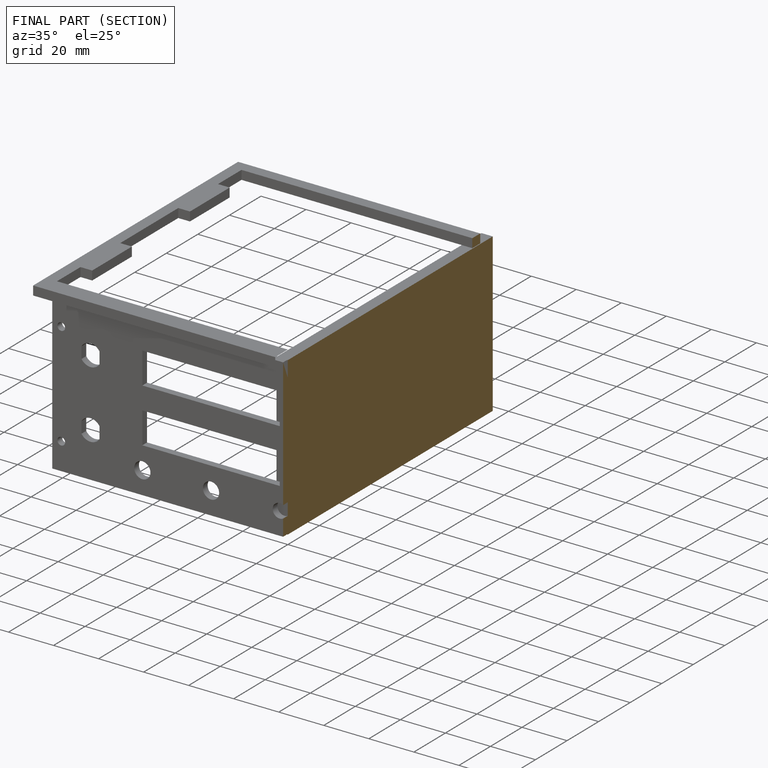
[diagram: finished part — half-section view (interior)]
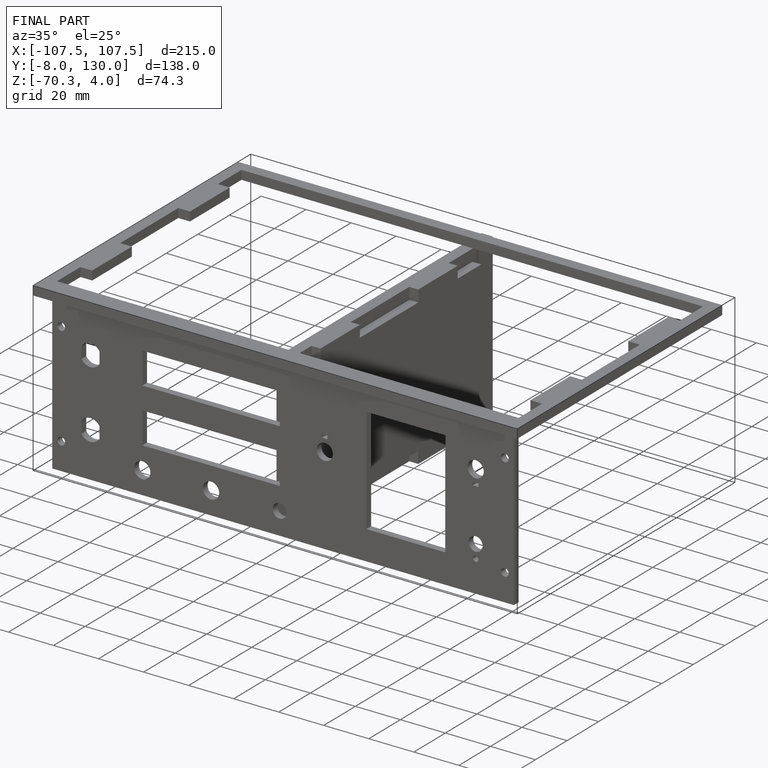
[diagram: finished part — iso view with bounding-box wireframe]
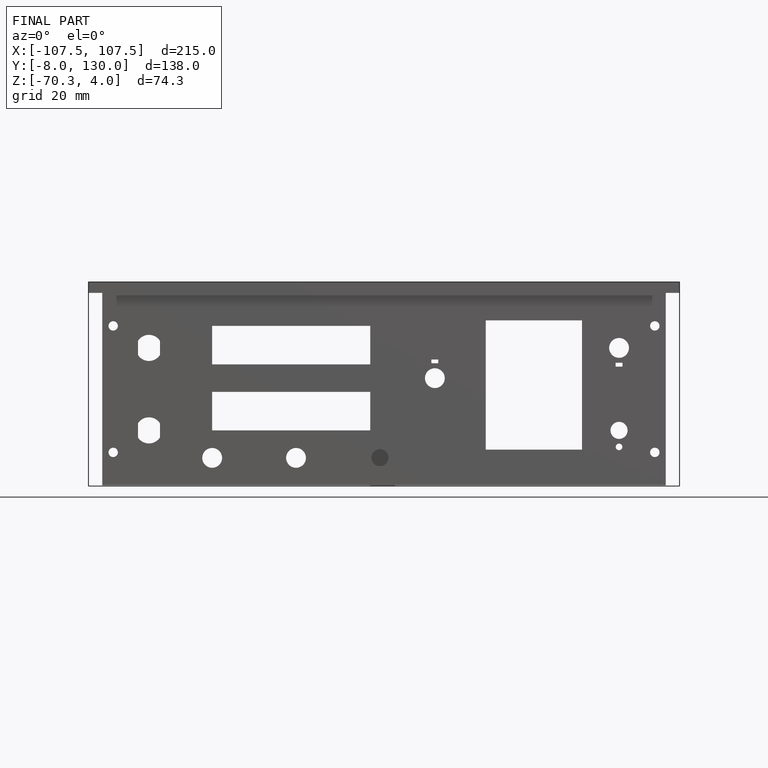
[diagram: finished part — front view with bounding-box wireframe]
